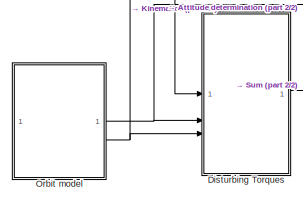
[diagram: root canvas - part 1/2, middle left region]
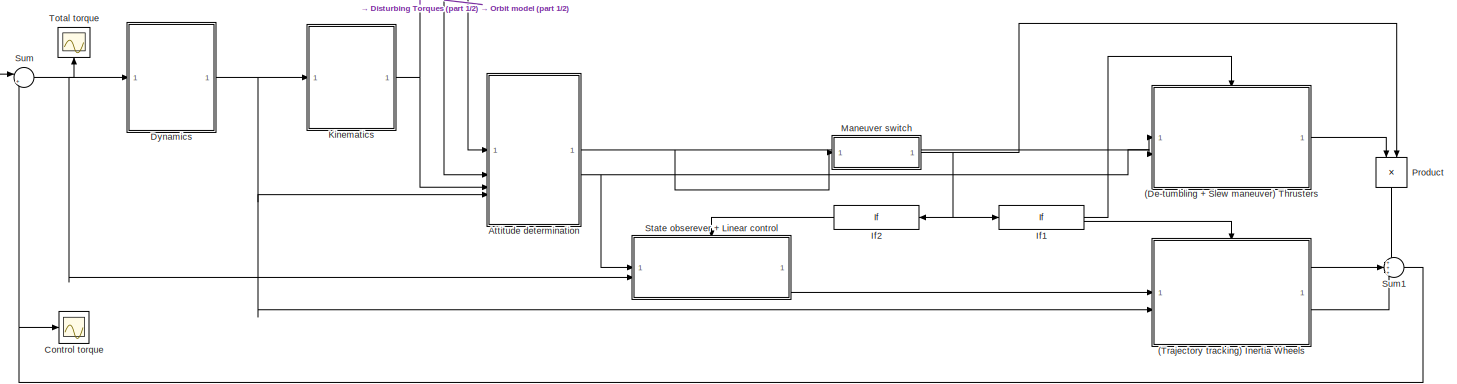
[diagram: root canvas - part 2/2, most of the canvas]
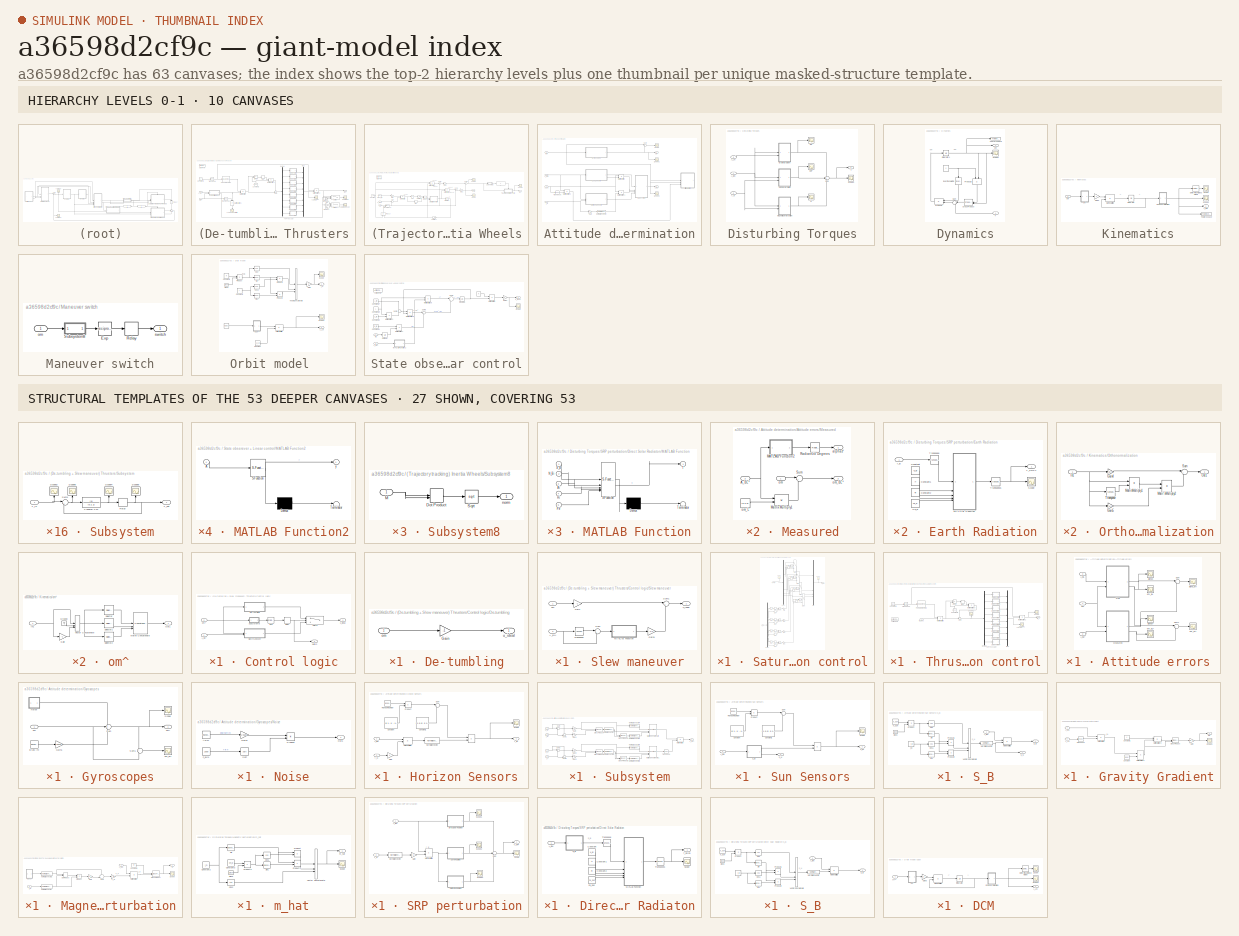
[diagram: thumbnail index - top-2 hierarchy levels (10 canvases) + 27 structural-template representatives of the remaining 53 canvases]
MODEL slx_a36598d2cf9c
KIND model
CONFIG AbsTol = auto
CONFIG EnableMultiTasking = off
CONFIG FixedStep = 0.1
CONFIG MaxStep = 0.1
CONFIG MinStep = auto
CONFIG RelTol = 1e-6
CONFIG SampleTimeConstraint = Unconstrained
CONFIG SolverName = ode5
CONFIG StartTime = 0.0
CONFIG StopTime = Tsc
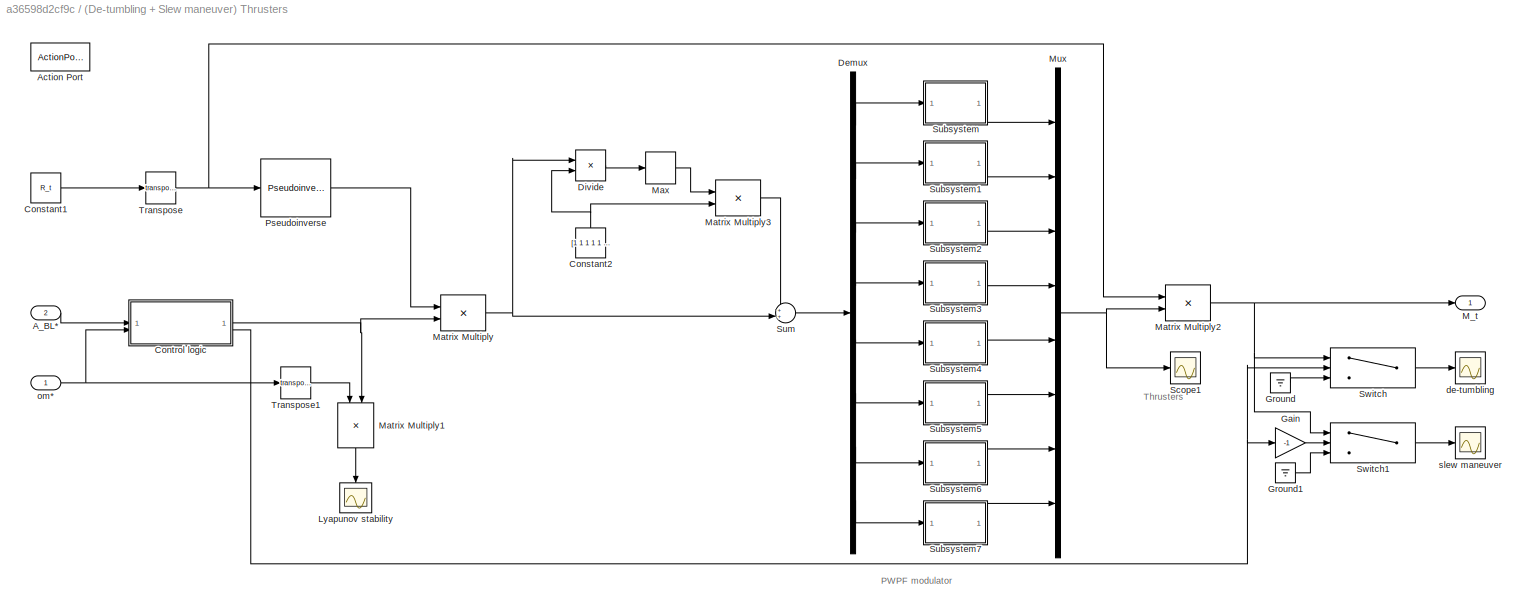
BLOCK [SubSystem] (De-tumbling + Slew maneuver) Thrusters
  TreatAsAtomicUnit = on
BLOCK [Inport] (De-tumbling + Slew maneuver) Thrusters/A_BL*
  Port = 2
BLOCK [ActionPort] (De-tumbling + Slew maneuver) Thrusters/Action Port
  ActionPortLabel = if(u1 > 0)
BLOCK [Constant] (De-tumbling + Slew maneuver) Thrusters/Constant1
  Value = R_t
BLOCK [Constant] (De-tumbling + Slew maneuver) Thrusters/Constant2
  NameLocation = right
  Value = [1 1 1 1 1 1 1 1]'
BLOCK [SubSystem] (De-tumbling + Slew maneuver) Thrusters/Control logic
BLOCK [Inport] (De-tumbling + Slew maneuver) Thrusters/Control logic/A_BL*
BLOCK [SubSystem] (De-tumbling + Slew maneuver) Thrusters/Control logic/De-tumbling
BLOCK [Gain] (De-tumbling + Slew maneuver) Thrusters/Control logic/De-tumbling/Gain
  Gain = -1
BLOCK [Inport] (De-tumbling + Slew maneuver) Thrusters/Control logic/De-tumbling/om
BLOCK [Outport] (De-tumbling + Slew maneuver) Thrusters/Control logic/De-tumbling/u_ideal
BLOCK [Math] (De-tumbling + Slew maneuver) Thrusters/Control logic/Exp
  Operator = reciprocal
BLOCK [Relay] (De-tumbling + Slew maneuver) Thrusters/Control logic/Relay
  OffOutputValue = 1
  OffSwitchValue = 0
  OnOutputValue = -1
  OnSwitchValue = 50
BLOCK [SubSystem] (De-tumbling + Slew maneuver) Thrusters/Control logic/Slew maneuver
BLOCK [Inport] (De-tumbling + Slew maneuver) Thrusters/Control logic/Slew maneuver/A_BL*
  Port = 2
BLOCK [Gain] (De-tumbling + Slew maneuver) Thrusters/Control logic/Slew maneuver/Gain
  Gain = -1
BLOCK [Gain] (De-tumbling + Slew maneuver) Thrusters/Control logic/Slew maneuver/Gain1
  Gain = -2/3
BLOCK [SubSystem] (De-tumbling + Slew maneuver) Thrusters/Control logic/Slew maneuver/MATLAB Function
  ErrorFcn = Stateflow.Translate.translate
  PermitHierarchicalResolution = ExplicitOnly
  SFBlockType = MATLAB Function
  TreatAsAtomicUnit = on
BLOCK [Demux] (De-tumbling + Slew maneuver) Thrusters/Control logic/Slew maneuver/MATLAB Function/ Demux 
  Outputs = 1
BLOCK [S-Function] (De-tumbling + Slew maneuver) Thrusters/Control logic/Slew maneuver/MATLAB Function/ SFunction 
  EnableBusSupport = on
  FunctionName = sf_sfun
  PortCounts = [1 2]
  SFcnIsStateOwnerBlock = off
  SFunctionDeploymentMode = off
  Tag = Stateflow S-Function 4
BLOCK [Terminator] (De-tumbling + Slew maneuver) Thrusters/Control logic/Slew maneuver/MATLAB Function/ Terminator 
BLOCK [Inport] (De-tumbling + Slew maneuver) Thrusters/Control logic/Slew maneuver/MATLAB Function/A
BLOCK [Outport] (De-tumbling + Slew maneuver) Thrusters/Control logic/Slew maneuver/MATLAB Function/offA_vec
BLOCK [Sum] (De-tumbling + Slew maneuver) Thrusters/Control logic/Slew maneuver/Sum
  Inputs = |+-
BLOCK [Sum] (De-tumbling + Slew maneuver) Thrusters/Control logic/Slew maneuver/Sum1
  Inputs = |++
BLOCK [Math] (De-tumbling + Slew maneuver) Thrusters/Control logic/Slew maneuver/Transpose
  Operator = transpose
BLOCK [Inport] (De-tumbling + Slew maneuver) Thrusters/Control logic/Slew maneuver/om
BLOCK [Outport] (De-tumbling + Slew maneuver) Thrusters/Control logic/Slew maneuver/u_ideal
BLOCK [SubSystem] (De-tumbling + Slew maneuver) Thrusters/Control logic/Subsystem8
BLOCK [DotProduct] (De-tumbling + Slew maneuver) Thrusters/Control logic/Subsystem8/Dot Product
  OutDataTypeStr = Inherit: Inherit via internal rule
BLOCK [Sqrt] (De-tumbling + Slew maneuver) Thrusters/Control logic/Subsystem8/Sqrt
BLOCK [Outport] (De-tumbling + Slew maneuver) Thrusters/Control logic/Subsystem8/norm
BLOCK [Inport] (De-tumbling + Slew maneuver) Thrusters/Control logic/Subsystem8/om
BLOCK [Switch] (De-tumbling + Slew maneuver) Thrusters/Control logic/Switch
  Criteria = u2 > Threshold
  InputSameDT = off
  SaturateOnIntegerOverflow = off
BLOCK [Inport] (De-tumbling + Slew maneuver) Thrusters/Control logic/om*
  Port = 2
BLOCK [Outport] (De-tumbling + Slew maneuver) Thrusters/Control logic/switch
  Port = 2
BLOCK [Outport] (De-tumbling + Slew maneuver) Thrusters/Control logic/u_ideal
BLOCK [Demux] (De-tumbling + Slew maneuver) Thrusters/Demux
  Outputs = 8
BLOCK [Product] (De-tumbling + Slew maneuver) Thrusters/Divide
  Inputs = */
BLOCK [Gain] (De-tumbling + Slew maneuver) Thrusters/Gain
  Gain = -1
BLOCK [Ground] (De-tumbling + Slew maneuver) Thrusters/Ground
BLOCK [Ground] (De-tumbling + Slew maneuver) Thrusters/Ground1
BLOCK [Scope] (De-tumbling + Slew maneuver) Thrusters/Lyapunov stability
  Floating = off
  NumInputPorts = 1
  ScopeSpecificationString = Simulink.scopes.TimeScopeBlockCfg('CurrentConfiguration', extmgr.ConfigurationSet(extmgr.Configuration('Core','General UI',true),extmgr.Configuration('Core','Source UI',true),extmgr.Configuration('Sources','WiredSimulink',true,'DataLoggingVariableName','ScopeData6'),extmgr.Configuration('Visuals','Time Domain',true,'SerializedDisplays',{struct('MinYLimReal','-3.47392','MaxYLimReal','0.38592','YLab...<+1401ch>
BLOCK [Outport] (De-tumbling + Slew maneuver) Thrusters/M_t
BLOCK [Product] (De-tumbling + Slew maneuver) Thrusters/Matrix Multiply
  Multiplication = Matrix(*)
BLOCK [Product] (De-tumbling + Slew maneuver) Thrusters/Matrix Multiply1
  Multiplication = Matrix(*)
  NameLocation = left
BLOCK [Product] (De-tumbling + Slew maneuver) Thrusters/Matrix Multiply2
  Multiplication = Matrix(*)
BLOCK [Product] (De-tumbling + Slew maneuver) Thrusters/Matrix Multiply3
BLOCK [MinMax] (De-tumbling + Slew maneuver) Thrusters/Max
  Function = max
BLOCK [Mux] (De-tumbling + Slew maneuver) Thrusters/Mux
  DisplayOption = bar
  Inputs = 8
BLOCK [Reference] (De-tumbling + Slew maneuver) Thrusters/Pseudoinverse  REF=dspinverses/Pseudoinverse
  SourceBlock = dspinverses/Pseudoinverse
  SourceType = Pseudoinverse
BLOCK [Scope] (De-tumbling + Slew maneuver) Thrusters/Scope1
  Floating = off
  NumInputPorts = 1
  ScopeSpecificationString = Simulink.scopes.TimeScopeBlockCfg('CurrentConfiguration', extmgr.ConfigurationSet(extmgr.Configuration('Core','General UI',true),extmgr.Configuration('Core','Source UI',true),extmgr.Configuration('Sources','WiredSimulink',true,'DataLoggingVariableName','ScopeData8'),extmgr.Configuration('Visuals','Time Domain',true,'SerializedDisplays',{struct('MinYLimReal','-0.00625','MaxYLimReal','0.05625','YLab...<+1666ch>
BLOCK [SubSystem] (De-tumbling + Slew maneuver) Thrusters/Subsystem
BLOCK [Relay] (De-tumbling + Slew maneuver) Thrusters/Subsystem/Relay
  OffSwitchValue = 0.8*T
  OnOutputValue = T
  OnSwitchValue = T
BLOCK [Scope] (De-tumbling + Slew maneuver) Thrusters/Subsystem/Scope3
  Floating = off
  NameLocation = right
  NumInputPorts = 1
  ScopeSpecificationString = Simulink.scopes.TimeScopeBlockCfg('CurrentConfiguration', extmgr.ConfigurationSet(extmgr.Configuration('Core','General UI',true),extmgr.Configuration('Core','Source UI',true),extmgr.Configuration('Sources','WiredSimulink',true,'DataLoggingVariableName','ScopeData2'),extmgr.Configuration('Visuals','Time Domain',true,'SerializedDisplays',{struct('MinYLimReal','-0.0075','MaxYLimReal','0.0075','YLabel...<+1385ch>  <repeated x16 — deduplicated; at blocks: Scope3>
BLOCK [Scope] (De-tumbling + Slew maneuver) Thrusters/Subsystem/Scope4
  Floating = off
  NameLocation = right
  NumInputPorts = 1
  ScopeSpecificationString = Simulink.scopes.TimeScopeBlockCfg('CurrentConfiguration', extmgr.ConfigurationSet(extmgr.Configuration('Core','General UI',true),extmgr.Configuration('Core','Source UI',true),extmgr.Configuration('Sources','WiredSimulink',true,'DataLoggingVariableName','ScopeData3'),extmgr.Configuration('Visuals','Time Domain',true),extmgr.Configuration('Tools','Plot Navigation',true),extmgr.Configuration('Tools',...<+40ch>  <repeated x16 — deduplicated; at blocks: Scope4>
BLOCK [Scope] (De-tumbling + Slew maneuver) Thrusters/Subsystem/Scope5
  Floating = off
  NameLocation = right
  NumInputPorts = 1
  ScopeSpecificationString = Simulink.scopes.TimeScopeBlockCfg('CurrentConfiguration', extmgr.ConfigurationSet(extmgr.Configuration('Core','General UI',true),extmgr.Configuration('Core','Source UI',true),extmgr.Configuration('Sources','WiredSimulink',true,'DataLoggingVariableName','ScopeData4'),extmgr.Configuration('Visuals','Time Domain',true,'SerializedDisplays',{struct('MinYLimReal','-0.0075','MaxYLimReal','0.0075','YLabel...<+1384ch>  <repeated x16 — deduplicated; at blocks: Scope5>
BLOCK [Scope] (De-tumbling + Slew maneuver) Thrusters/Subsystem/Scope6
  Floating = off
  NameLocation = right
  NumInputPorts = 1
  ScopeSpecificationString = Simulink.scopes.TimeScopeBlockCfg('CurrentConfiguration', extmgr.ConfigurationSet(extmgr.Configuration('Core','General UI',true),extmgr.Configuration('Core','Source UI',true),extmgr.Configuration('Sources','WiredSimulink',true,'DataLoggingVariableName','ScopeData5'),extmgr.Configuration('Visuals','Time Domain',true),extmgr.Configuration('Tools','Plot Navigation',true),extmgr.Configuration('Tools',...<+40ch>  <repeated x16 — deduplicated; at blocks: Scope6>
BLOCK [Sum] (De-tumbling + Slew maneuver) Thrusters/Subsystem/Sum1
  Inputs = |+-
BLOCK [Inport] (De-tumbling + Slew maneuver) Thrusters/Subsystem/T_in
BLOCK [Outport] (De-tumbling + Slew maneuver) Thrusters/Subsystem/T_out
BLOCK [TransferFcn] (De-tumbling + Slew maneuver) Thrusters/Subsystem/Transfer Fcn
  Denominator = [0.1 1]
BLOCK [SubSystem] (De-tumbling + Slew maneuver) Thrusters/Subsystem1
BLOCK [Relay] (De-tumbling + Slew maneuver) Thrusters/Subsystem1/Relay
  OffSwitchValue = 0.8*T
  OnOutputValue = T
  OnSwitchValue = T
BLOCK [Scope] (De-tumbling + Slew maneuver) Thrusters/Subsystem1/Scope3
  Floating = off
  NameLocation = right
  NumInputPorts = 1
BLOCK [Scope] (De-tumbling + Slew maneuver) Thrusters/Subsystem1/Scope4
  Floating = off
  NameLocation = right
  NumInputPorts = 1
BLOCK [Scope] (De-tumbling + Slew maneuver) Thrusters/Subsystem1/Scope5
  Floating = off
  NameLocation = right
  NumInputPorts = 1
BLOCK [Scope] (De-tumbling + Slew maneuver) Thrusters/Subsystem1/Scope6
  Floating = off
  NameLocation = right
  NumInputPorts = 1
BLOCK [Sum] (De-tumbling + Slew maneuver) Thrusters/Subsystem1/Sum1
  Inputs = |+-
BLOCK [Inport] (De-tumbling + Slew maneuver) Thrusters/Subsystem1/T_in
BLOCK [Outport] (De-tumbling + Slew maneuver) Thrusters/Subsystem1/T_out
BLOCK [TransferFcn] (De-tumbling + Slew maneuver) Thrusters/Subsystem1/Transfer Fcn
  Denominator = [0.1 1]
BLOCK [SubSystem] (De-tumbling + Slew maneuver) Thrusters/Subsystem2
BLOCK [Relay] (De-tumbling + Slew maneuver) Thrusters/Subsystem2/Relay
  OffSwitchValue = 0.8*T
  OnOutputValue = T
  OnSwitchValue = T
BLOCK [Scope] (De-tumbling + Slew maneuver) Thrusters/Subsystem2/Scope3
  Floating = off
  NameLocation = right
  NumInputPorts = 1
BLOCK [Scope] (De-tumbling + Slew maneuver) Thrusters/Subsystem2/Scope4
  Floating = off
  NameLocation = right
  NumInputPorts = 1
BLOCK [Scope] (De-tumbling + Slew maneuver) Thrusters/Subsystem2/Scope5
  Floating = off
  NameLocation = right
  NumInputPorts = 1
BLOCK [Scope] (De-tumbling + Slew maneuver) Thrusters/Subsystem2/Scope6
  Floating = off
  NameLocation = right
  NumInputPorts = 1
BLOCK [Sum] (De-tumbling + Slew maneuver) Thrusters/Subsystem2/Sum1
  Inputs = |+-
BLOCK [Inport] (De-tumbling + Slew maneuver) Thrusters/Subsystem2/T_in
BLOCK [Outport] (De-tumbling + Slew maneuver) Thrusters/Subsystem2/T_out
BLOCK [TransferFcn] (De-tumbling + Slew maneuver) Thrusters/Subsystem2/Transfer Fcn
  Denominator = [0.1 1]
BLOCK [SubSystem] (De-tumbling + Slew maneuver) Thrusters/Subsystem3
BLOCK [Relay] (De-tumbling + Slew maneuver) Thrusters/Subsystem3/Relay
  OffSwitchValue = 0.8*T
  OnOutputValue = T
  OnSwitchValue = T
BLOCK [Scope] (De-tumbling + Slew maneuver) Thrusters/Subsystem3/Scope3
  Floating = off
  NameLocation = right
  NumInputPorts = 1
BLOCK [Scope] (De-tumbling + Slew maneuver) Thrusters/Subsystem3/Scope4
  Floating = off
  NameLocation = right
  NumInputPorts = 1
BLOCK [Scope] (De-tumbling + Slew maneuver) Thrusters/Subsystem3/Scope5
  Floating = off
  NameLocation = right
  NumInputPorts = 1
BLOCK [Scope] (De-tumbling + Slew maneuver) Thrusters/Subsystem3/Scope6
  Floating = off
  NameLocation = right
  NumInputPorts = 1
BLOCK [Sum] (De-tumbling + Slew maneuver) Thrusters/Subsystem3/Sum1
  Inputs = |+-
BLOCK [Inport] (De-tumbling + Slew maneuver) Thrusters/Subsystem3/T_in
BLOCK [Outport] (De-tumbling + Slew maneuver) Thrusters/Subsystem3/T_out
BLOCK [TransferFcn] (De-tumbling + Slew maneuver) Thrusters/Subsystem3/Transfer Fcn
  Denominator = [0.1 1]
BLOCK [SubSystem] (De-tumbling + Slew maneuver) Thrusters/Subsystem4
BLOCK [Relay] (De-tumbling + Slew maneuver) Thrusters/Subsystem4/Relay
  OffSwitchValue = 0.8*T
  OnOutputValue = T
  OnSwitchValue = T
BLOCK [Scope] (De-tumbling + Slew maneuver) Thrusters/Subsystem4/Scope3
  Floating = off
  NameLocation = right
  NumInputPorts = 1
BLOCK [Scope] (De-tumbling + Slew maneuver) Thrusters/Subsystem4/Scope4
  Floating = off
  NameLocation = right
  NumInputPorts = 1
BLOCK [Scope] (De-tumbling + Slew maneuver) Thrusters/Subsystem4/Scope5
  Floating = off
  NameLocation = right
  NumInputPorts = 1
BLOCK [Scope] (De-tumbling + Slew maneuver) Thrusters/Subsystem4/Scope6
  Floating = off
  NameLocation = right
  NumInputPorts = 1
BLOCK [Sum] (De-tumbling + Slew maneuver) Thrusters/Subsystem4/Sum1
  Inputs = |+-
BLOCK [Inport] (De-tumbling + Slew maneuver) Thrusters/Subsystem4/T_in
BLOCK [Outport] (De-tumbling + Slew maneuver) Thrusters/Subsystem4/T_out
BLOCK [TransferFcn] (De-tumbling + Slew maneuver) Thrusters/Subsystem4/Transfer Fcn
  Denominator = [0.1 1]
BLOCK [SubSystem] (De-tumbling + Slew maneuver) Thrusters/Subsystem5
BLOCK [Relay] (De-tumbling + Slew maneuver) Thrusters/Subsystem5/Relay
  OffSwitchValue = 0.8*T
  OnOutputValue = T
  OnSwitchValue = T
BLOCK [Scope] (De-tumbling + Slew maneuver) Thrusters/Subsystem5/Scope3
  Floating = off
  NameLocation = right
  NumInputPorts = 1
BLOCK [Scope] (De-tumbling + Slew maneuver) Thrusters/Subsystem5/Scope4
  Floating = off
  NameLocation = right
  NumInputPorts = 1
BLOCK [Scope] (De-tumbling + Slew maneuver) Thrusters/Subsystem5/Scope5
  Floating = off
  NameLocation = right
  NumInputPorts = 1
BLOCK [Scope] (De-tumbling + Slew maneuver) Thrusters/Subsystem5/Scope6
  Floating = off
  NameLocation = right
  NumInputPorts = 1
BLOCK [Sum] (De-tumbling + Slew maneuver) Thrusters/Subsystem5/Sum1
  Inputs = |+-
BLOCK [Inport] (De-tumbling + Slew maneuver) Thrusters/Subsystem5/T_in
BLOCK [Outport] (De-tumbling + Slew maneuver) Thrusters/Subsystem5/T_out
BLOCK [TransferFcn] (De-tumbling + Slew maneuver) Thrusters/Subsystem5/Transfer Fcn
  Denominator = [0.1 1]
BLOCK [SubSystem] (De-tumbling + Slew maneuver) Thrusters/Subsystem6
BLOCK [Relay] (De-tumbling + Slew maneuver) Thrusters/Subsystem6/Relay
  OffSwitchValue = 0.8*T
  OnOutputValue = T
  OnSwitchValue = T
BLOCK [Scope] (De-tumbling + Slew maneuver) Thrusters/Subsystem6/Scope3
  Floating = off
  NameLocation = right
  NumInputPorts = 1
BLOCK [Scope] (De-tumbling + Slew maneuver) Thrusters/Subsystem6/Scope4
  Floating = off
  NameLocation = right
  NumInputPorts = 1
BLOCK [Scope] (De-tumbling + Slew maneuver) Thrusters/Subsystem6/Scope5
  Floating = off
  NameLocation = right
  NumInputPorts = 1
BLOCK [Scope] (De-tumbling + Slew maneuver) Thrusters/Subsystem6/Scope6
  Floating = off
  NameLocation = right
  NumInputPorts = 1
BLOCK [Sum] (De-tumbling + Slew maneuver) Thrusters/Subsystem6/Sum1
  Inputs = |+-
BLOCK [Inport] (De-tumbling + Slew maneuver) Thrusters/Subsystem6/T_in
BLOCK [Outport] (De-tumbling + Slew maneuver) Thrusters/Subsystem6/T_out
BLOCK [TransferFcn] (De-tumbling + Slew maneuver) Thrusters/Subsystem6/Transfer Fcn
  Denominator = [0.1 1]
BLOCK [SubSystem] (De-tumbling + Slew maneuver) Thrusters/Subsystem7
BLOCK [Relay] (De-tumbling + Slew maneuver) Thrusters/Subsystem7/Relay
  OffSwitchValue = 0.8*T
  OnOutputValue = T
  OnSwitchValue = T
BLOCK [Scope] (De-tumbling + Slew maneuver) Thrusters/Subsystem7/Scope3
  Floating = off
  NameLocation = right
  NumInputPorts = 1
BLOCK [Scope] (De-tumbling + Slew maneuver) Thrusters/Subsystem7/Scope4
  Floating = off
  NameLocation = right
  NumInputPorts = 1
BLOCK [Scope] (De-tumbling + Slew maneuver) Thrusters/Subsystem7/Scope5
  Floating = off
  NameLocation = right
  NumInputPorts = 1
BLOCK [Scope] (De-tumbling + Slew maneuver) Thrusters/Subsystem7/Scope6
  Floating = off
  NameLocation = right
  NumInputPorts = 1
BLOCK [Sum] (De-tumbling + Slew maneuver) Thrusters/Subsystem7/Sum1
  Inputs = |+-
BLOCK [Inport] (De-tumbling + Slew maneuver) Thrusters/Subsystem7/T_in
BLOCK [Outport] (De-tumbling + Slew maneuver) Thrusters/Subsystem7/T_out
BLOCK [TransferFcn] (De-tumbling + Slew maneuver) Thrusters/Subsystem7/Transfer Fcn
  Denominator = [0.1 1]
BLOCK [Sum] (De-tumbling + Slew maneuver) Thrusters/Sum
  Inputs = ++|
BLOCK [Switch] (De-tumbling + Slew maneuver) Thrusters/Switch
  Criteria = u2 > Threshold
  InputSameDT = off
  SaturateOnIntegerOverflow = off
BLOCK [Switch] (De-tumbling + Slew maneuver) Thrusters/Switch1
  Criteria = u2 > Threshold
  InputSameDT = off
  SaturateOnIntegerOverflow = off
BLOCK [Math] (De-tumbling + Slew maneuver) Thrusters/Transpose
  Operator = transpose
BLOCK [Math] (De-tumbling + Slew maneuver) Thrusters/Transpose1
  Operator = transpose
BLOCK [Scope] (De-tumbling + Slew maneuver) Thrusters/de-tumbling
  Floating = off
  NumInputPorts = 1
  ScopeSpecificationString = Simulink.scopes.TimeScopeBlockCfg('CurrentConfiguration', extmgr.ConfigurationSet(extmgr.Configuration('Core','General UI',true),extmgr.Configuration('Core','Source UI',true),extmgr.Configuration('Sources','WiredSimulink',true,'DataLoggingVariableName','ScopeData7'),extmgr.Configuration('Visuals','Time Domain',true,'SerializedDisplays',{struct('MinYLimReal','-0.00375','MaxYLimReal','0.00375','YLab...<+1529ch>
BLOCK [Inport] (De-tumbling + Slew maneuver) Thrusters/om*
BLOCK [Scope] (De-tumbling + Slew maneuver) Thrusters/slew maneuver
  Floating = off
  NumInputPorts = 1
  ScopeSpecificationString = Simulink.scopes.TimeScopeBlockCfg('CurrentConfiguration', extmgr.ConfigurationSet(extmgr.Configuration('Core','General UI',true),extmgr.Configuration('Core','Source UI',true),extmgr.Configuration('Sources','WiredSimulink',true,'DataLoggingVariableName','ScopeData1'),extmgr.Configuration('Visuals','Time Domain',true,'SerializedDisplays',{struct('MinYLimReal','-0.00375','MaxYLimReal','0.00375','YLab...<+1532ch>
BLOCK [SubSystem] (Trajectory tracking) Inertia Wheels
  TreatAsAtomicUnit = on
BLOCK [Abs] (Trajectory tracking) Inertia Wheels/Abs
  SaturateOnIntegerOverflow = off
BLOCK [ActionPort] (Trajectory tracking) Inertia Wheels/Action Port
  ActionPortLabel = else
BLOCK [Constant] (Trajectory tracking) Inertia Wheels/Constant
  Value = A_iw
BLOCK [Reference] (Trajectory tracking) Inertia Wheels/Cross Product  REF=matrix_library/Cross Product
  LibrarySourceBlock = simulink/Matrix\nOperations/Cross Product
  SourceBlock = matrix_library/Cross Product
  SourceType = CrossProduct
BLOCK [Gain] (Trajectory tracking) Inertia Wheels/Gain
  Gain = -1
BLOCK [Gain] (Trajectory tracking) Inertia Wheels/Gain1
  Gain = -1
BLOCK [Gain] (Trajectory tracking) Inertia Wheels/Gain2
  Gain = -1
BLOCK [If] (Trajectory tracking) Inertia Wheels/If
  ShowElse = off
BLOCK [Integrator] (Trajectory tracking) Inertia Wheels/Integrator
  InitialCondition = [0 0 0 0]
BLOCK [Outport] (Trajectory tracking) Inertia Wheels/M_iw
BLOCK [Outport] (Trajectory tracking) Inertia Wheels/M_t
  Port = 2
BLOCK [Product] (Trajectory tracking) Inertia Wheels/Matrix Multiply
  Multiplication = Matrix(*)
BLOCK [Product] (Trajectory tracking) Inertia Wheels/Matrix Multiply1
  Multiplication = Matrix(*)
BLOCK [Product] (Trajectory tracking) Inertia Wheels/Matrix Multiply2
  Multiplication = Matrix(*)
BLOCK [Product] (Trajectory tracking) Inertia Wheels/Product
  Multiplication = Matrix(*)
  NameLocation = right
BLOCK [Product] (Trajectory tracking) Inertia Wheels/Product1
BLOCK [Saturate] (Trajectory tracking) Inertia Wheels/Saturation
  LowerLimit = 0
  UpperLimit = maxT_iw
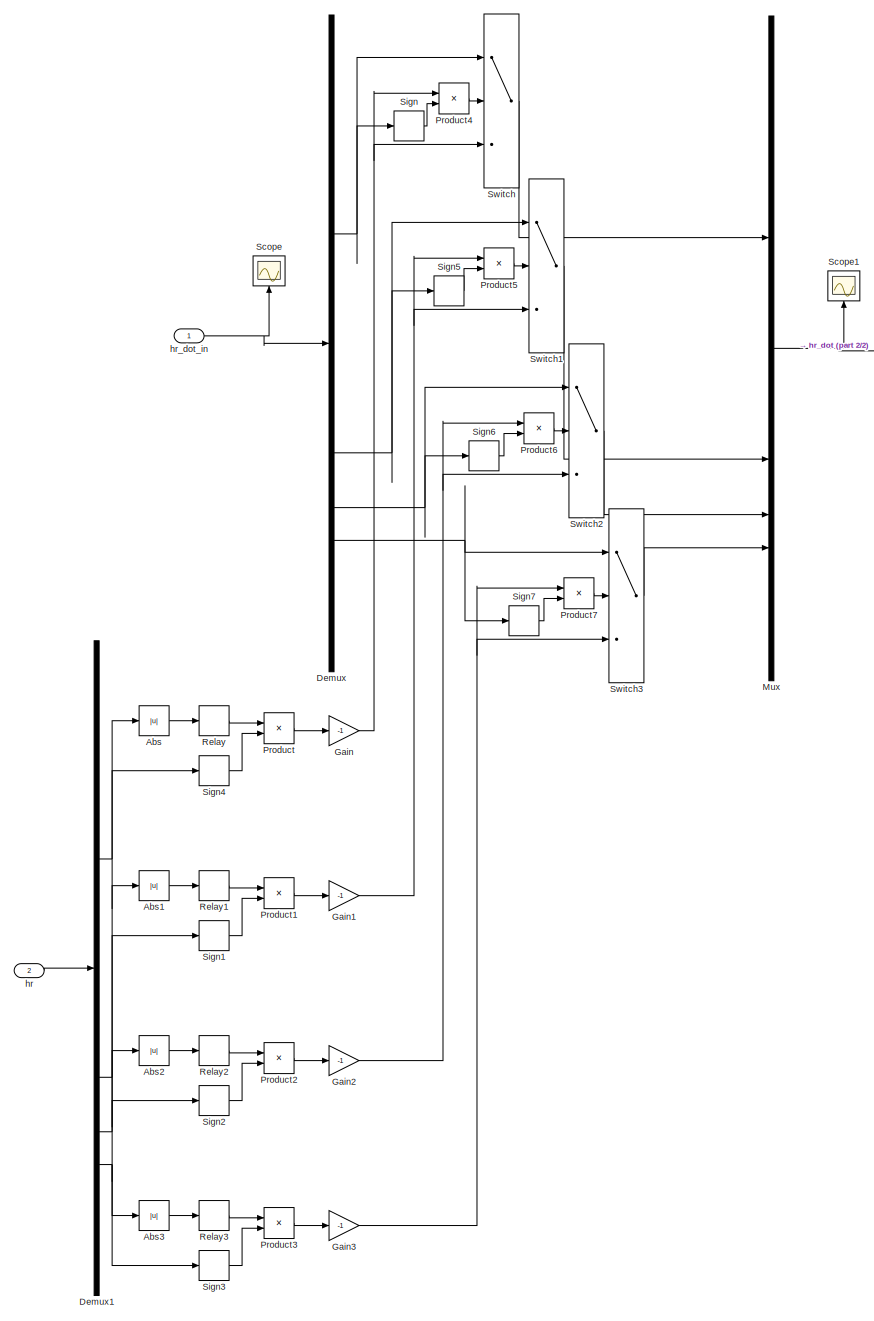
[diagram: (Trajectory tracking) Inertia Wheels/Saturation control - part 1/2, most of the canvas]
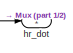
[diagram: (Trajectory tracking) Inertia Wheels/Saturation control - part 2/2, top right region]
BLOCK [SubSystem] (Trajectory tracking) Inertia Wheels/Saturation control
BLOCK [Abs] (Trajectory tracking) Inertia Wheels/Saturation control/Abs
  SaturateOnIntegerOverflow = off
BLOCK [Abs] (Trajectory tracking) Inertia Wheels/Saturation control/Abs1
  SaturateOnIntegerOverflow = off
BLOCK [Abs] (Trajectory tracking) Inertia Wheels/Saturation control/Abs2
  SaturateOnIntegerOverflow = off
BLOCK [Abs] (Trajectory tracking) Inertia Wheels/Saturation control/Abs3
  SaturateOnIntegerOverflow = off
BLOCK [Demux] (Trajectory tracking) Inertia Wheels/Saturation control/Demux
BLOCK [Demux] (Trajectory tracking) Inertia Wheels/Saturation control/Demux1
BLOCK [Gain] (Trajectory tracking) Inertia Wheels/Saturation control/Gain
  Gain = -1
BLOCK [Gain] (Trajectory tracking) Inertia Wheels/Saturation control/Gain1
  Gain = -1
BLOCK [Gain] (Trajectory tracking) Inertia Wheels/Saturation control/Gain2
  Gain = -1
BLOCK [Gain] (Trajectory tracking) Inertia Wheels/Saturation control/Gain3
  Gain = -1
BLOCK [Mux] (Trajectory tracking) Inertia Wheels/Saturation control/Mux
  DisplayOption = bar
BLOCK [Product] (Trajectory tracking) Inertia Wheels/Saturation control/Product
BLOCK [Product] (Trajectory tracking) Inertia Wheels/Saturation control/Product1
BLOCK [Product] (Trajectory tracking) Inertia Wheels/Saturation control/Product2
BLOCK [Product] (Trajectory tracking) Inertia Wheels/Saturation control/Product3
BLOCK [Product] (Trajectory tracking) Inertia Wheels/Saturation control/Product4
BLOCK [Product] (Trajectory tracking) Inertia Wheels/Saturation control/Product5
BLOCK [Product] (Trajectory tracking) Inertia Wheels/Saturation control/Product6
BLOCK [Product] (Trajectory tracking) Inertia Wheels/Saturation control/Product7
BLOCK [Relay] (Trajectory tracking) Inertia Wheels/Saturation control/Relay
  OffSwitchValue = maxL_iw/1000
  OnOutputValue = maxT_iw
  OnSwitchValue = maxL_iw
BLOCK [Relay] (Trajectory tracking) Inertia Wheels/Saturation control/Relay1
  OffSwitchValue = maxL_iw/1000
  OnOutputValue = maxT_iw
  OnSwitchValue = maxL_iw
BLOCK [Relay] (Trajectory tracking) Inertia Wheels/Saturation control/Relay2
  OffSwitchValue = maxL_iw/1000
  OnOutputValue = maxT_iw
  OnSwitchValue = maxL_iw
BLOCK [Relay] (Trajectory tracking) Inertia Wheels/Saturation control/Relay3
  OffSwitchValue = maxL_iw/1000
  OnOutputValue = maxT_iw
  OnSwitchValue = maxL_iw
BLOCK [Scope] (Trajectory tracking) Inertia Wheels/Saturation control/Scope
  Floating = off
  NameLocation = right
  NumInputPorts = 1
  ScopeSpecificationString = Simulink.scopes.TimeScopeBlockCfg
BLOCK [Scope] (Trajectory tracking) Inertia Wheels/Saturation control/Scope1
  Floating = off
  NameLocation = right
  NumInputPorts = 1
  ScopeSpecificationString = Simulink.scopes.TimeScopeBlockCfg('CurrentConfiguration', extmgr.ConfigurationSet(extmgr.Configuration('Core','General UI',true),extmgr.Configuration('Core','Source UI',true),extmgr.Configuration('Sources','WiredSimulink',true),extmgr.Configuration('Visuals','Time Domain',true),extmgr.Configuration('Tools','Plot Navigation',true),extmgr.Configuration('Tools','Measurements',true)),'Version','2022b'...<+26ch>
BLOCK [Signum] (Trajectory tracking) Inertia Wheels/Saturation control/Sign
BLOCK [Signum] (Trajectory tracking) Inertia Wheels/Saturation control/Sign1
BLOCK [Signum] (Trajectory tracking) Inertia Wheels/Saturation control/Sign2
BLOCK [Signum] (Trajectory tracking) Inertia Wheels/Saturation control/Sign3
BLOCK [Signum] (Trajectory tracking) Inertia Wheels/Saturation control/Sign4
BLOCK [Signum] (Trajectory tracking) Inertia Wheels/Saturation control/Sign5
BLOCK [Signum] (Trajectory tracking) Inertia Wheels/Saturation control/Sign6
BLOCK [Signum] (Trajectory tracking) Inertia Wheels/Saturation control/Sign7
BLOCK [Switch] (Trajectory tracking) Inertia Wheels/Saturation control/Switch
  InputSameDT = off
  SaturateOnIntegerOverflow = off
BLOCK [Switch] (Trajectory tracking) Inertia Wheels/Saturation control/Switch1
  InputSameDT = off
  SaturateOnIntegerOverflow = off
BLOCK [Switch] (Trajectory tracking) Inertia Wheels/Saturation control/Switch2
  InputSameDT = off
  SaturateOnIntegerOverflow = off
BLOCK [Switch] (Trajectory tracking) Inertia Wheels/Saturation control/Switch3
  InputSameDT = off
  SaturateOnIntegerOverflow = off
BLOCK [Inport] (Trajectory tracking) Inertia Wheels/Saturation control/hr
  Port = 2
BLOCK [Outport] (Trajectory tracking) Inertia Wheels/Saturation control/hr_dot
BLOCK [Inport] (Trajectory tracking) Inertia Wheels/Saturation control/hr_dot_in
BLOCK [Saturate] (Trajectory tracking) Inertia Wheels/Saturation1
  LowerLimit = -maxL_iw
  NameLocation = top
  UpperLimit = maxL_iw
BLOCK [Scope] (Trajectory tracking) Inertia Wheels/Scope
  Floating = off
  NumInputPorts = 1
  ScopeSpecificationString = Simulink.scopes.TimeScopeBlockCfg('CurrentConfiguration', extmgr.ConfigurationSet(extmgr.Configuration('Core','General UI',true),extmgr.Configuration('Core','Source UI',true),extmgr.Configuration('Sources','WiredSimulink',true,'DataLoggingVariableName','ScopeData5'),extmgr.Configuration('Visuals','Time Domain',true,'SerializedDisplays',{struct('MinYLimReal','-0.00029','MaxYLimReal','0.0003','YLabe...<+1456ch>
BLOCK [Scope] (Trajectory tracking) Inertia Wheels/Scope1
  Floating = off
  NumInputPorts = 1
  ScopeSpecificationString = Simulink.scopes.TimeScopeBlockCfg('CurrentConfiguration', extmgr.ConfigurationSet(extmgr.Configuration('Core','General UI',true),extmgr.Configuration('Core','Source UI',true),extmgr.Configuration('Sources','WiredSimulink',true,'DataLoggingVariableName','ScopeData6'),extmgr.Configuration('Visuals','Time Domain',true,'SerializedDisplays',{struct('MinYLimReal','-0.00001','MaxYLimReal','0.00013','YLab...<+1485ch>
BLOCK [Scope] (Trajectory tracking) Inertia Wheels/Scope2
  Floating = off
  NumInputPorts = 1
  ScopeSpecificationString = Simulink.scopes.TimeScopeBlockCfg('CurrentConfiguration', extmgr.ConfigurationSet(extmgr.Configuration('Core','General UI',true),extmgr.Configuration('Core','Source UI',true),extmgr.Configuration('Sources','WiredSimulink',true,'DataLoggingVariableName','ScopeData7'),extmgr.Configuration('Visuals','Time Domain',true,'SerializedDisplays',{struct('MinYLimReal','-1.00000','MaxYLimReal','1.00000','YLab...<+1538ch>
BLOCK [Signum] (Trajectory tracking) Inertia Wheels/Sign
BLOCK [SubSystem] (Trajectory tracking) Inertia Wheels/Subsystem8
BLOCK [DotProduct] (Trajectory tracking) Inertia Wheels/Subsystem8/Dot Product
  OutDataTypeStr = Inherit: Inherit via internal rule
BLOCK [Inport] (Trajectory tracking) Inertia Wheels/Subsystem8/M
BLOCK [Sqrt] (Trajectory tracking) Inertia Wheels/Subsystem8/Sqrt
BLOCK [Outport] (Trajectory tracking) Inertia Wheels/Subsystem8/norm
BLOCK [Sum] (Trajectory tracking) Inertia Wheels/Sum
  Inputs = |++
BLOCK [Sum] (Trajectory tracking) Inertia Wheels/Sum1
  Inputs = |++
BLOCK [Sum] (Trajectory tracking) Inertia Wheels/Sum2
  Inputs = |++
BLOCK [Sum] (Trajectory tracking) Inertia Wheels/Sum3
  Inputs = |+-
BLOCK [SubSystem] (Trajectory tracking) Inertia Wheels/Thruster desaturation control
BLOCK [ActionPort] (Trajectory tracking) Inertia Wheels/Thruster desaturation control/Action Port
  ActionPortLabel = if(u1 > 0)
BLOCK [Constant] (Trajectory tracking) Inertia Wheels/Thruster desaturation control/Constant1
  Value = R_t
BLOCK [Constant] (Trajectory tracking) Inertia Wheels/Thruster desaturation control/Constant2
  NameLocation = right
  Value = [1 1 1 1 1 1 1 1]'
BLOCK [Demux] (Trajectory tracking) Inertia Wheels/Thruster desaturation control/Demux
  Outputs = 8
BLOCK [Product] (Trajectory tracking) Inertia Wheels/Thruster desaturation control/Divide
  Inputs = */
BLOCK [Inport] (Trajectory tracking) Inertia Wheels/Thruster desaturation control/M_des
BLOCK [Outport] (Trajectory tracking) Inertia Wheels/Thruster desaturation control/M_t
BLOCK [Product] (Trajectory tracking) Inertia Wheels/Thruster desaturation control/Matrix Multiply
  Multiplication = Matrix(*)
BLOCK [Product] (Trajectory tracking) Inertia Wheels/Thruster desaturation control/Matrix Multiply2
  Multiplication = Matrix(*)
BLOCK [Product] (Trajectory tracking) Inertia Wheels/Thruster desaturation control/Matrix Multiply3
BLOCK [MinMax] (Trajectory tracking) Inertia Wheels/Thruster desaturation control/Max
  Function = max
BLOCK [Mux] (Trajectory tracking) Inertia Wheels/Thruster desaturation control/Mux
  DisplayOption = bar
  Inputs = 8
BLOCK [Reference] (Trajectory tracking) Inertia Wheels/Thruster desaturation control/Pseudoinverse  REF=dspinverses/Pseudoinverse
  SourceBlock = dspinverses/Pseudoinverse
  SourceType = Pseudoinverse
BLOCK [Scope] (Trajectory tracking) Inertia Wheels/Thruster desaturation control/Scope
  Floating = off
  NumInputPorts = 1
  ScopeSpecificationString = Simulink.scopes.TimeScopeBlockCfg('CurrentConfiguration', extmgr.ConfigurationSet(extmgr.Configuration('Core','General UI',true),extmgr.Configuration('Core','Source UI',true),extmgr.Configuration('Sources','WiredSimulink',true,'DataLoggingVariableName','ScopeData11'),extmgr.Configuration('Visuals','Time Domain',true,'SerializedDisplays',{struct('MinYLimReal','-0.01875','MaxYLimReal','0.01875','YLa...<+1512ch>
BLOCK [Scope] (Trajectory tracking) Inertia Wheels/Thruster desaturation control/Scope1
  Floating = off
  NumInputPorts = 1
  ScopeSpecificationString = Simulink.scopes.TimeScopeBlockCfg('CurrentConfiguration', extmgr.ConfigurationSet(extmgr.Configuration('Core','General UI',true),extmgr.Configuration('Core','Source UI',true),extmgr.Configuration('Sources','WiredSimulink',true,'DataLoggingVariableName','ScopeData12'),extmgr.Configuration('Visuals','Time Domain',true,'SerializedDisplays',{struct('MinYLimReal','-0.00625','MaxYLimReal','0.05625','YLa...<+1667ch>
BLOCK [Scope] (Trajectory tracking) Inertia Wheels/Thruster desaturation control/Scope2
  Floating = off
  NameLocation = right
  NumInputPorts = 1
  ScopeSpecificationString = Simulink.scopes.TimeScopeBlockCfg('CurrentConfiguration', extmgr.ConfigurationSet(extmgr.Configuration('Core','General UI',true),extmgr.Configuration('Core','Source UI',true),extmgr.Configuration('Sources','WiredSimulink',true,'DataLoggingVariableName','ScopeData13'),extmgr.Configuration('Visuals','Time Domain',true,'SerializedDisplays',{struct('MinYLimReal','-1.00882','MaxYLimReal','9.07938','YLa...<+1447ch>
BLOCK [SubSystem] (Trajectory tracking) Inertia Wheels/Thruster desaturation control/Subsystem
BLOCK [Relay] (Trajectory tracking) Inertia Wheels/Thruster desaturation control/Subsystem/Relay
  OffSwitchValue = 0.8*T
  OnOutputValue = T
  OnSwitchValue = T
BLOCK [Scope] (Trajectory tracking) Inertia Wheels/Thruster desaturation control/Subsystem/Scope3
  Floating = off
  NameLocation = right
  NumInputPorts = 1
BLOCK [Scope] (Trajectory tracking) Inertia Wheels/Thruster desaturation control/Subsystem/Scope4
  Floating = off
  NameLocation = right
  NumInputPorts = 1
BLOCK [Scope] (Trajectory tracking) Inertia Wheels/Thruster desaturation control/Subsystem/Scope5
  Floating = off
  NameLocation = right
  NumInputPorts = 1
BLOCK [Scope] (Trajectory tracking) Inertia Wheels/Thruster desaturation control/Subsystem/Scope6
  Floating = off
  NameLocation = right
  NumInputPorts = 1
BLOCK [Sum] (Trajectory tracking) Inertia Wheels/Thruster desaturation control/Subsystem/Sum1
  Inputs = |+-
BLOCK [Inport] (Trajectory tracking) Inertia Wheels/Thruster desaturation control/Subsystem/T_in
BLOCK [Outport] (Trajectory tracking) Inertia Wheels/Thruster desaturation control/Subsystem/T_out
BLOCK [TransferFcn] (Trajectory tracking) Inertia Wheels/Thruster desaturation control/Subsystem/Transfer Fcn
  Denominator = [0.1 1]
BLOCK [SubSystem] (Trajectory tracking) Inertia Wheels/Thruster desaturation control/Subsystem1
BLOCK [Relay] (Trajectory tracking) Inertia Wheels/Thruster desaturation control/Subsystem1/Relay
  OffSwitchValue = 0.8*T
  OnOutputValue = T
  OnSwitchValue = T
BLOCK [Scope] (Trajectory tracking) Inertia Wheels/Thruster desaturation control/Subsystem1/Scope3
  Floating = off
  NameLocation = right
  NumInputPorts = 1
BLOCK [Scope] (Trajectory tracking) Inertia Wheels/Thruster desaturation control/Subsystem1/Scope4
  Floating = off
  NameLocation = right
  NumInputPorts = 1
BLOCK [Scope] (Trajectory tracking) Inertia Wheels/Thruster desaturation control/Subsystem1/Scope5
  Floating = off
  NameLocation = right
  NumInputPorts = 1
BLOCK [Scope] (Trajectory tracking) Inertia Wheels/Thruster desaturation control/Subsystem1/Scope6
  Floating = off
  NameLocation = right
  NumInputPorts = 1
BLOCK [Sum] (Trajectory tracking) Inertia Wheels/Thruster desaturation control/Subsystem1/Sum1
  Inputs = |+-
BLOCK [Inport] (Trajectory tracking) Inertia Wheels/Thruster desaturation control/Subsystem1/T_in
BLOCK [Outport] (Trajectory tracking) Inertia Wheels/Thruster desaturation control/Subsystem1/T_out
BLOCK [TransferFcn] (Trajectory tracking) Inertia Wheels/Thruster desaturation control/Subsystem1/Transfer Fcn
  Denominator = [0.1 1]
BLOCK [SubSystem] (Trajectory tracking) Inertia Wheels/Thruster desaturation control/Subsystem2
BLOCK [Relay] (Trajectory tracking) Inertia Wheels/Thruster desaturation control/Subsystem2/Relay
  OffSwitchValue = 0.8*T
  OnOutputValue = T
  OnSwitchValue = T
BLOCK [Scope] (Trajectory tracking) Inertia Wheels/Thruster desaturation control/Subsystem2/Scope3
  Floating = off
  NameLocation = right
  NumInputPorts = 1
BLOCK [Scope] (Trajectory tracking) Inertia Wheels/Thruster desaturation control/Subsystem2/Scope4
  Floating = off
  NameLocation = right
  NumInputPorts = 1
BLOCK [Scope] (Trajectory tracking) Inertia Wheels/Thruster desaturation control/Subsystem2/Scope5
  Floating = off
  NameLocation = right
  NumInputPorts = 1
BLOCK [Scope] (Trajectory tracking) Inertia Wheels/Thruster desaturation control/Subsystem2/Scope6
  Floating = off
  NameLocation = right
  NumInputPorts = 1
BLOCK [Sum] (Trajectory tracking) Inertia Wheels/Thruster desaturation control/Subsystem2/Sum1
  Inputs = |+-
BLOCK [Inport] (Trajectory tracking) Inertia Wheels/Thruster desaturation control/Subsystem2/T_in
BLOCK [Outport] (Trajectory tracking) Inertia Wheels/Thruster desaturation control/Subsystem2/T_out
BLOCK [TransferFcn] (Trajectory tracking) Inertia Wheels/Thruster desaturation control/Subsystem2/Transfer Fcn
  Denominator = [0.1 1]
BLOCK [SubSystem] (Trajectory tracking) Inertia Wheels/Thruster desaturation control/Subsystem3
BLOCK [Relay] (Trajectory tracking) Inertia Wheels/Thruster desaturation control/Subsystem3/Relay
  OffSwitchValue = 0.8*T
  OnOutputValue = T
  OnSwitchValue = T
BLOCK [Scope] (Trajectory tracking) Inertia Wheels/Thruster desaturation control/Subsystem3/Scope3
  Floating = off
  NameLocation = right
  NumInputPorts = 1
BLOCK [Scope] (Trajectory tracking) Inertia Wheels/Thruster desaturation control/Subsystem3/Scope4
  Floating = off
  NameLocation = right
  NumInputPorts = 1
BLOCK [Scope] (Trajectory tracking) Inertia Wheels/Thruster desaturation control/Subsystem3/Scope5
  Floating = off
  NameLocation = right
  NumInputPorts = 1
BLOCK [Scope] (Trajectory tracking) Inertia Wheels/Thruster desaturation control/Subsystem3/Scope6
  Floating = off
  NameLocation = right
  NumInputPorts = 1
BLOCK [Sum] (Trajectory tracking) Inertia Wheels/Thruster desaturation control/Subsystem3/Sum1
  Inputs = |+-
BLOCK [Inport] (Trajectory tracking) Inertia Wheels/Thruster desaturation control/Subsystem3/T_in
BLOCK [Outport] (Trajectory tracking) Inertia Wheels/Thruster desaturation control/Subsystem3/T_out
BLOCK [TransferFcn] (Trajectory tracking) Inertia Wheels/Thruster desaturation control/Subsystem3/Transfer Fcn
  Denominator = [0.1 1]
BLOCK [SubSystem] (Trajectory tracking) Inertia Wheels/Thruster desaturation control/Subsystem4
BLOCK [Relay] (Trajectory tracking) Inertia Wheels/Thruster desaturation control/Subsystem4/Relay
  OffSwitchValue = 0.8*T
  OnOutputValue = T
  OnSwitchValue = T
BLOCK [Scope] (Trajectory tracking) Inertia Wheels/Thruster desaturation control/Subsystem4/Scope3
  Floating = off
  NameLocation = right
  NumInputPorts = 1
BLOCK [Scope] (Trajectory tracking) Inertia Wheels/Thruster desaturation control/Subsystem4/Scope4
  Floating = off
  NameLocation = right
  NumInputPorts = 1
BLOCK [Scope] (Trajectory tracking) Inertia Wheels/Thruster desaturation control/Subsystem4/Scope5
  Floating = off
  NameLocation = right
  NumInputPorts = 1
BLOCK [Scope] (Trajectory tracking) Inertia Wheels/Thruster desaturation control/Subsystem4/Scope6
  Floating = off
  NameLocation = right
  NumInputPorts = 1
BLOCK [Sum] (Trajectory tracking) Inertia Wheels/Thruster desaturation control/Subsystem4/Sum1
  Inputs = |+-
BLOCK [Inport] (Trajectory tracking) Inertia Wheels/Thruster desaturation control/Subsystem4/T_in
BLOCK [Outport] (Trajectory tracking) Inertia Wheels/Thruster desaturation control/Subsystem4/T_out
BLOCK [TransferFcn] (Trajectory tracking) Inertia Wheels/Thruster desaturation control/Subsystem4/Transfer Fcn
  Denominator = [0.1 1]
BLOCK [SubSystem] (Trajectory tracking) Inertia Wheels/Thruster desaturation control/Subsystem5
BLOCK [Relay] (Trajectory tracking) Inertia Wheels/Thruster desaturation control/Subsystem5/Relay
  OffSwitchValue = 0.8*T
  OnOutputValue = T
  OnSwitchValue = T
BLOCK [Scope] (Trajectory tracking) Inertia Wheels/Thruster desaturation control/Subsystem5/Scope3
  Floating = off
  NameLocation = right
  NumInputPorts = 1
BLOCK [Scope] (Trajectory tracking) Inertia Wheels/Thruster desaturation control/Subsystem5/Scope4
  Floating = off
  NameLocation = right
  NumInputPorts = 1
BLOCK [Scope] (Trajectory tracking) Inertia Wheels/Thruster desaturation control/Subsystem5/Scope5
  Floating = off
  NameLocation = right
  NumInputPorts = 1
BLOCK [Scope] (Trajectory tracking) Inertia Wheels/Thruster desaturation control/Subsystem5/Scope6
  Floating = off
  NameLocation = right
  NumInputPorts = 1
BLOCK [Sum] (Trajectory tracking) Inertia Wheels/Thruster desaturation control/Subsystem5/Sum1
  Inputs = |+-
BLOCK [Inport] (Trajectory tracking) Inertia Wheels/Thruster desaturation control/Subsystem5/T_in
BLOCK [Outport] (Trajectory tracking) Inertia Wheels/Thruster desaturation control/Subsystem5/T_out
BLOCK [TransferFcn] (Trajectory tracking) Inertia Wheels/Thruster desaturation control/Subsystem5/Transfer Fcn
  Denominator = [0.1 1]
BLOCK [SubSystem] (Trajectory tracking) Inertia Wheels/Thruster desaturation control/Subsystem6
BLOCK [Relay] (Trajectory tracking) Inertia Wheels/Thruster desaturation control/Subsystem6/Relay
  OffSwitchValue = 0.8*T
  OnOutputValue = T
  OnSwitchValue = T
BLOCK [Scope] (Trajectory tracking) Inertia Wheels/Thruster desaturation control/Subsystem6/Scope3
  Floating = off
  NameLocation = right
  NumInputPorts = 1
BLOCK [Scope] (Trajectory tracking) Inertia Wheels/Thruster desaturation control/Subsystem6/Scope4
  Floating = off
  NameLocation = right
  NumInputPorts = 1
BLOCK [Scope] (Trajectory tracking) Inertia Wheels/Thruster desaturation control/Subsystem6/Scope5
  Floating = off
  NameLocation = right
  NumInputPorts = 1
BLOCK [Scope] (Trajectory tracking) Inertia Wheels/Thruster desaturation control/Subsystem6/Scope6
  Floating = off
  NameLocation = right
  NumInputPorts = 1
BLOCK [Sum] (Trajectory tracking) Inertia Wheels/Thruster desaturation control/Subsystem6/Sum1
  Inputs = |+-
BLOCK [Inport] (Trajectory tracking) Inertia Wheels/Thruster desaturation control/Subsystem6/T_in
BLOCK [Outport] (Trajectory tracking) Inertia Wheels/Thruster desaturation control/Subsystem6/T_out
BLOCK [TransferFcn] (Trajectory tracking) Inertia Wheels/Thruster desaturation control/Subsystem6/Transfer Fcn
  Denominator = [0.1 1]
BLOCK [SubSystem] (Trajectory tracking) Inertia Wheels/Thruster desaturation control/Subsystem7
BLOCK [Relay] (Trajectory tracking) Inertia Wheels/Thruster desaturation control/Subsystem7/Relay
  OffSwitchValue = 0.8*T
  OnOutputValue = T
  OnSwitchValue = T
BLOCK [Scope] (Trajectory tracking) Inertia Wheels/Thruster desaturation control/Subsystem7/Scope3
  Floating = off
  NameLocation = right
  NumInputPorts = 1
BLOCK [Scope] (Trajectory tracking) Inertia Wheels/Thruster desaturation control/Subsystem7/Scope4
  Floating = off
  NameLocation = right
  NumInputPorts = 1
BLOCK [Scope] (Trajectory tracking) Inertia Wheels/Thruster desaturation control/Subsystem7/Scope5
  Floating = off
  NameLocation = right
  NumInputPorts = 1
BLOCK [Scope] (Trajectory tracking) Inertia Wheels/Thruster desaturation control/Subsystem7/Scope6
  Floating = off
  NameLocation = right
  NumInputPorts = 1
BLOCK [Sum] (Trajectory tracking) Inertia Wheels/Thruster desaturation control/Subsystem7/Sum1
  Inputs = |+-
BLOCK [Inport] (Trajectory tracking) Inertia Wheels/Thruster desaturation control/Subsystem7/T_in
BLOCK [Outport] (Trajectory tracking) Inertia Wheels/Thruster desaturation control/Subsystem7/T_out
BLOCK [TransferFcn] (Trajectory tracking) Inertia Wheels/Thruster desaturation control/Subsystem7/Transfer Fcn
  Denominator = [0.1 1]
BLOCK [Sum] (Trajectory tracking) Inertia Wheels/Thruster desaturation control/Sum
  Inputs = ++|
BLOCK [Math] (Trajectory tracking) Inertia Wheels/Thruster desaturation control/Transpose
  Operator = transpose
BLOCK [Inport] (Trajectory tracking) Inertia Wheels/om
  Port = 2
BLOCK [Constant] (Trajectory tracking) Inertia Wheels/pinvA_iw
  Value = pinvA_iw
BLOCK [Inport] (Trajectory tracking) Inertia Wheels/u_ideal
BLOCK [SubSystem] Attitude determination
BLOCK [Outport] Attitude determination/A_BL*
  Port = 2
BLOCK [Inport] Attitude determination/A_BN
  Port = 3
BLOCK [Inport] Attitude determination/A_LN
BLOCK [SubSystem] Attitude determination/Attitude errors
BLOCK [Inport] Attitude determination/Attitude errors/A_BL
  Port = 3
BLOCK [Inport] Attitude determination/Attitude errors/A_BL*
  Port = 2
BLOCK [SubSystem] Attitude determination/Attitude errors/Measured
BLOCK [Inport] Attitude determination/Attitude errors/Measured/A_BL*
  Port = 2
BLOCK [SubSystem] Attitude determination/Attitude errors/Measured/MATLAB Function2
  ErrorFcn = Stateflow.Translate.translate
  PermitHierarchicalResolution = ExplicitOnly
  SFBlockType = MATLAB Function
  TreatAsAtomicUnit = on
BLOCK [Demux] Attitude determination/Attitude errors/Measured/MATLAB Function2/ Demux 
  Outputs = 1
BLOCK [S-Function] Attitude determination/Attitude errors/Measured/MATLAB Function2/ SFunction 
  EnableBusSupport = on
  FunctionName = sf_sfun
  PortCounts = [1 2]
  SFcnIsStateOwnerBlock = off
  SFunctionDeploymentMode = off
  Tag = Stateflow S-Function 6
BLOCK [Terminator] Attitude determination/Attitude errors/Measured/MATLAB Function2/ Terminator 
BLOCK [Inport] Attitude determination/Attitude errors/Measured/MATLAB Function2/A
BLOCK [Outport] Attitude determination/Attitude errors/Measured/MATLAB Function2/y
BLOCK [Product] Attitude determination/Attitude errors/Measured/Matrix Multiply1
  Multiplication = Matrix(*)
BLOCK [Reference] Attitude determination/Attitude errors/Measured/Radians to Degrees  REF=simulink_extras/Transformations/Radians
to Degrees
  SourceBlock = simulink_extras/Transformations/Radians\nto Degrees
  SourceType = RadiansToDegrees
BLOCK [Sum] Attitude determination/Attitude errors/Measured/Sum
  Inputs = |+-
BLOCK [Outport] Attitude determination/Attitude errors/Measured/alphas*
BLOCK [Inport] Attitude determination/Attitude errors/Measured/om
BLOCK [Outport] Attitude determination/Attitude errors/Measured/om_BL*
  Port = 2
BLOCK [Constant] Attitude determination/Attitude errors/Measured/om_L
  Value = [0 0 n]'
BLOCK [Sum] Attitude determination/Attitude errors/Sum
  Inputs = |+-
BLOCK [Sum] Attitude determination/Attitude errors/Sum1
  Inputs = |+-
BLOCK [SubSystem] Attitude determination/Attitude errors/True
BLOCK [Inport] Attitude determination/Attitude errors/True/A_BL
BLOCK [SubSystem] Attitude determination/Attitude errors/True/MATLAB Function2
  ErrorFcn = Stateflow.Translate.translate
  PermitHierarchicalResolution = ExplicitOnly
  SFBlockType = MATLAB Function
  TreatAsAtomicUnit = on
BLOCK [Demux] Attitude determination/Attitude errors/True/MATLAB Function2/ Demux 
  Outputs = 1
BLOCK [S-Function] Attitude determination/Attitude errors/True/MATLAB Function2/ SFunction 
  EnableBusSupport = on
  FunctionName = sf_sfun
  PortCounts = [1 2]
  SFcnIsStateOwnerBlock = off
  SFunctionDeploymentMode = off
  Tag = Stateflow S-Function 5
BLOCK [Terminator] Attitude determination/Attitude errors/True/MATLAB Function2/ Terminator 
BLOCK [Inport] Attitude determination/Attitude errors/True/MATLAB Function2/A
BLOCK [Outport] Attitude determination/Attitude errors/True/MATLAB Function2/y
BLOCK [Product] Attitude determination/Attitude errors/True/Matrix Multiply1
  Multiplication = Matrix(*)
BLOCK [Reference] Attitude determination/Attitude errors/True/Radians to Degrees  REF=simulink_extras/Transformations/Radians
to Degrees
  SourceBlock = simulink_extras/Transformations/Radians\nto Degrees
  SourceType = RadiansToDegrees
BLOCK [Sum] Attitude determination/Attitude errors/True/Sum
  Inputs = |+-
BLOCK [Outport] Attitude determination/Attitude errors/True/alphas
BLOCK [Inport] Attitude determination/Attitude errors/True/om
  Port = 2
BLOCK [Outport] Attitude determination/Attitude errors/True/om_BL
  Port = 2
BLOCK [Constant] Attitude determination/Attitude errors/True/om_L
  Value = [0 0 n]'
BLOCK [Scope] Attitude determination/Attitude errors/alpha_err
  Floating = off
  NumInputPorts = 1
  ScopeSpecificationString = Simulink.scopes.TimeScopeBlockCfg('CurrentConfiguration', extmgr.ConfigurationSet(extmgr.Configuration('Core','General UI',true),extmgr.Configuration('Core','Source UI',true),extmgr.Configuration('Sources','WiredSimulink',true,'DataLoggingVariableName','ScopeData5'),extmgr.Configuration('Visuals','Time Domain',true,'SerializedDisplays',{struct('MinYLimReal','-0.10273','MaxYLimReal','0.06499','YLab...<+1482ch>
BLOCK [Scope] Attitude determination/Attitude errors/alphas
  Floating = off
  NumInputPorts = 1
  ScopeSpecificationString = Simulink.scopes.TimeScopeBlockCfg('CurrentConfiguration', extmgr.ConfigurationSet(extmgr.Configuration('Core','General UI',true),extmgr.Configuration('Core','Source UI',true),extmgr.Configuration('Sources','WiredSimulink',true,'DataLoggingVariableName','ScopeData1'),extmgr.Configuration('Visuals','Time Domain',true,'SerializedDisplays',{struct('MinYLimReal','-0.04649','MaxYLimReal','0.06029','YLab...<+1491ch>
BLOCK [Scope] Attitude determination/Attitude errors/alphas*
  Floating = off
  NumInputPorts = 1
  ScopeSpecificationString = Simulink.scopes.TimeScopeBlockCfg('CurrentConfiguration', extmgr.ConfigurationSet(extmgr.Configuration('Core','General UI',true),extmgr.Configuration('Core','Source UI',true),extmgr.Configuration('Sources','WiredSimulink',true,'DataLoggingVariableName','ScopeData3'),extmgr.Configuration('Visuals','Time Domain',true,'SerializedDisplays',{struct('MinYLimReal','-0.04767','MaxYLimReal','0.04616','YLab...<+1503ch>
BLOCK [Inport] Attitude determination/Attitude errors/om
BLOCK [Scope] Attitude determination/Attitude errors/om_BL
  Floating = off
  NumInputPorts = 1
  ScopeSpecificationString = Simulink.scopes.TimeScopeBlockCfg('CurrentConfiguration', extmgr.ConfigurationSet(extmgr.Configuration('Core','General UI',true),extmgr.Configuration('Core','Source UI',true),extmgr.Configuration('Sources','WiredSimulink',true,'DataLoggingVariableName','ScopeData2'),extmgr.Configuration('Visuals','Time Domain',true,'SerializedDisplays',{struct('MinYLimReal','-0.00024','MaxYLimReal','0.00022','YLab...<+1491ch>
BLOCK [Scope] Attitude determination/Attitude errors/om_BL*
  Floating = off
  NumInputPorts = 1
  ScopeSpecificationString = Simulink.scopes.TimeScopeBlockCfg('CurrentConfiguration', extmgr.ConfigurationSet(extmgr.Configuration('Core','General UI',true),extmgr.Configuration('Core','Source UI',true),extmgr.Configuration('Sources','WiredSimulink',true,'DataLoggingVariableName','ScopeData4'),extmgr.Configuration('Visuals','Time Domain',true,'SerializedDisplays',{struct('MinYLimReal','-0.00081','MaxYLimReal','0.0009','YLabe...<+1499ch>
BLOCK [Scope] Attitude determination/Attitude errors/om_err
  Floating = off
  NumInputPorts = 1
  ScopeSpecificationString = Simulink.scopes.TimeScopeBlockCfg('CurrentConfiguration', extmgr.ConfigurationSet(extmgr.Configuration('Core','General UI',true),extmgr.Configuration('Core','Source UI',true),extmgr.Configuration('Sources','WiredSimulink',true,'DataLoggingVariableName','ScopeData6'),extmgr.Configuration('Visuals','Time Domain',true,'SerializedDisplays',{struct('MinYLimReal','-0.00075','MaxYLimReal','0.00085','YLab...<+1485ch>
BLOCK [Gain] Attitude determination/Gain
  Gain = -1
BLOCK [SubSystem] Attitude determination/Gyroscopes
BLOCK [RandomNumber] Attitude determination/Gyroscopes/Bias(°//h)
  Mean = [0; 0; 0]
  SampleTime = 0.5
  Seed = randi(1000, [3, 1])
  Variance = ((deg2rad(bias_gyro))^2)*[1; 1; 1]
BLOCK [Gain] Attitude determination/Gyroscopes/Gain1
  Gain = 1/3600
BLOCK [SubSystem] Attitude determination/Gyroscopes/Noise
BLOCK [RandomNumber] Attitude determination/Gyroscopes/Noise/ARW
  Mean = [0; 0; 0]
  SampleTime = 0.5
  Seed = randi(1000, [3, 1])
  Variance = ((deg2rad(ARW_gyro))^2)*[1; 1; 1]
BLOCK [Constant] Attitude determination/Gyroscopes/Noise/F_gyro
  Value = 2000
BLOCK [Gain] Attitude determination/Gyroscopes/Noise/Gain2
  Gain = 1/3600
BLOCK [Outport] Attitude determination/Gyroscopes/Noise/Out1
BLOCK [Product] Attitude determination/Gyroscopes/Noise/Product
BLOCK [Sqrt] Attitude determination/Gyroscopes/Noise/Sqrt
BLOCK [Scope] Attitude determination/Gyroscopes/Scope
  Floating = off
  NumInputPorts = 1
  ScopeSpecificationString = Simulink.scopes.TimeScopeBlockCfg('CurrentConfiguration', extmgr.ConfigurationSet(extmgr.Configuration('Core','General UI',true),extmgr.Configuration('Core','Source UI',true),extmgr.Configuration('Sources','WiredSimulink',true,'DataLoggingVariableName','ScopeData2'),extmgr.Configuration('Visuals','Time Domain',true),extmgr.Configuration('Tools','Plot Navigation',true),extmgr.Configuration('Tools',...<+65ch>
BLOCK [Sum] Attitude determination/Gyroscopes/Sum
  Inputs = +++
BLOCK [Sum] Attitude determination/Gyroscopes/Sum1
  Inputs = +-
BLOCK [Inport] Attitude determination/Gyroscopes/om
BLOCK [Outport] Attitude determination/Gyroscopes/om* 
BLOCK [Scope] Attitude determination/Gyroscopes/om_err
  Floating = off
  NumInputPorts = 1
  ScopeSpecificationString = Simulink.scopes.TimeScopeBlockCfg('CurrentConfiguration', extmgr.ConfigurationSet(extmgr.Configuration('Core','General UI',true),extmgr.Configuration('Core','Source UI',true),extmgr.Configuration('Sources','WiredSimulink',true,'DataLoggingVariableName','ScopeData6'),extmgr.Configuration('Visuals','Time Domain',true,'SerializedDisplays',{struct('MinYLimReal','-0.00041','MaxYLimReal','0.00044','YLab...<+1441ch>
BLOCK [SubSystem] Attitude determination/Horizon Sensors
BLOCK [Product] Attitude determination/Horizon Sensors/ 
  Multiplication = Matrix(*)
BLOCK [Inport] Attitude determination/Horizon Sensors/A_BN
BLOCK [Constant] Attitude determination/Horizon Sensors/Constant
  Value = [0 1 -1; -1 0 1; 1 -1 0]
BLOCK [Constant] Attitude determination/Horizon Sensors/Constant1
  Value = [1 0 0; 0 1 0; 0 0 1]
BLOCK [Gain] Attitude determination/Horizon Sensors/Gain
  Gain = -1
BLOCK [Product] Attitude determination/Horizon Sensors/Matrix Multiply
  Multiplication = Matrix(*)
BLOCK [Reference] Attitude determination/Horizon Sensors/Normalize Vector  REF=vrlib/Utilities/Normalize Vector
  SourceBlock = vrlib/Utilities/Normalize Vector
  SourceType = Normalize Vector
BLOCK [Product] Attitude determination/Horizon Sensors/Product
BLOCK [RandomNumber] Attitude determination/Horizon Sensors/Random Number
  SampleTime = 0.5
  Variance = (deg2rad(err_HS/3))^2
BLOCK [Scope] Attitude determination/Horizon Sensors/Scope
  Floating = off
  NumInputPorts = 1
  ScopeSpecificationString = Simulink.scopes.TimeScopeBlockCfg('CurrentConfiguration', extmgr.ConfigurationSet(extmgr.Configuration('Core','General UI',true),extmgr.Configuration('Core','Source UI',true),extmgr.Configuration('Sources','WiredSimulink',true,'DataLoggingVariableName','ScopeData1'),extmgr.Configuration('Visuals','Time Domain',true,'SerializedDisplays',{struct('MinYLimReal','-1.25006','MaxYLimReal','1.24945','YLab...<+1426ch>
BLOCK [Sum] Attitude determination/Horizon Sensors/Sum
  Inputs = |++
BLOCK [Outport] Attitude determination/Horizon Sensors/r_B*
BLOCK [Inport] Attitude determination/Horizon Sensors/r_N
  Port = 2
BLOCK [Product] Attitude determination/Matrix Multiply
  Multiplication = Matrix(*)
BLOCK [Product] Attitude determination/Matrix Multiply1
  Multiplication = Matrix(*)
BLOCK [Product] Attitude determination/Matrix Multiply2
  Multiplication = Matrix(*)
BLOCK [Reference] Attitude determination/Normalize Vector  REF=vrlib/Utilities/Normalize Vector
  SourceBlock = vrlib/Utilities/Normalize Vector
  SourceType = Normalize Vector
BLOCK [Scope] Attitude determination/Scope
  Floating = off
  NumInputPorts = 1
  ScopeSpecificationString = Simulink.scopes.TimeScopeBlockCfg('CurrentConfiguration', extmgr.ConfigurationSet(extmgr.Configuration('Core','General UI',true),extmgr.Configuration('Core','Source UI',true),extmgr.Configuration('Sources','WiredSimulink',true,'DataLoggingVariableName','ScopeData7'),extmgr.Configuration('Visuals','Time Domain',true,'SerializedDisplays',{struct('MinYLimReal','-0.00351','MaxYLimReal','0.00371','YLab...<+1408ch>
BLOCK [Scope] Attitude determination/Scope1
  Floating = off
  NumInputPorts = 1
  ScopeSpecificationString = Simulink.scopes.TimeScopeBlockCfg('CurrentConfiguration', extmgr.ConfigurationSet(extmgr.Configuration('Core','General UI',true),extmgr.Configuration('Core','Source UI',true),extmgr.Configuration('Sources','WiredSimulink',true,'DataLoggingVariableName','ScopeData8'),extmgr.Configuration('Visuals','Time Domain',true,'SerializedDisplays',{struct('MinYLimReal','-0.12797','MaxYLimReal','0.17769','YLab...<+1481ch>
BLOCK [Scope] Attitude determination/Scope3
  Floating = off
  NumInputPorts = 1
  ScopeSpecificationString = Simulink.scopes.TimeScopeBlockCfg('CurrentConfiguration', extmgr.ConfigurationSet(extmgr.Configuration('Core','General UI',true),extmgr.Configuration('Core','Source UI',true),extmgr.Configuration('Sources','WiredSimulink',true,'DataLoggingVariableName','ScopeData2'),extmgr.Configuration('Visuals','Time Domain',true,'SerializedDisplays',{struct('MinYLimReal','-0.10769','MaxYLimReal','0.12896','YLab...<+1556ch>
BLOCK [SubSystem] Attitude determination/Subsystem
BLOCK [Outport] Attitude determination/Subsystem/A_BL*
BLOCK [Reference] Attitude determination/Subsystem/Cross Product  REF=matrix_library/Cross Product
  LibrarySourceBlock = simulink/Matrix\nOperations/Cross Product
  SourceBlock = matrix_library/Cross Product
  SourceType = CrossProduct
BLOCK [Reference] Attitude determination/Subsystem/Cross Product1  REF=matrix_library/Cross Product
  LibrarySourceBlock = simulink/Matrix\nOperations/Cross Product
  SourceBlock = matrix_library/Cross Product
  SourceType = CrossProduct
BLOCK [Reference] Attitude determination/Subsystem/Cross Product2  REF=matrix_library/Cross Product
  LibrarySourceBlock = simulink/Matrix\nOperations/Cross Product
  SourceBlock = matrix_library/Cross Product
  SourceType = CrossProduct
BLOCK [Reference] Attitude determination/Subsystem/Cross Product3  REF=matrix_library/Cross Product
  LibrarySourceBlock = simulink/Matrix\nOperations/Cross Product
  SourceBlock = matrix_library/Cross Product
  SourceType = CrossProduct
BLOCK [Gain] Attitude determination/Subsystem/Gain
  Gain = 1/2
BLOCK [Gain] Attitude determination/Subsystem/Gain1
  Gain = 1/2
BLOCK [Gain] Attitude determination/Subsystem/Gain2
  Gain = 1/2
BLOCK [Gain] Attitude determination/Subsystem/Gain3
  Gain = 1/2
BLOCK [Concatenate] Attitude determination/Subsystem/Matrix Concatenate
  ConcatenateDimension = 2
  Mode = Multidimensional array
  NumInputs = 3
BLOCK [Concatenate] Attitude determination/Subsystem/Matrix Concatenate1
  ConcatenateDimension = 2
  Mode = Multidimensional array
  NumInputs = 3
BLOCK [Product] Attitude determination/Subsystem/Matrix Multiply
  Multiplication = Matrix(*)
BLOCK [Reference] Attitude determination/Subsystem/Normalize Vector  REF=vrlib/Utilities/Normalize Vector
  SourceBlock = vrlib/Utilities/Normalize Vector
  SourceType = Normalize Vector
BLOCK [Reference] Attitude determination/Subsystem/Normalize Vector1  REF=vrlib/Utilities/Normalize Vector
  SourceBlock = vrlib/Utilities/Normalize Vector
  SourceType = Normalize Vector
BLOCK [Reference] Attitude determination/Subsystem/Normalize Vector2  REF=vrlib/Utilities/Normalize Vector
  SourceBlock = vrlib/Utilities/Normalize Vector
  SourceType = Normalize Vector
BLOCK [Reference] Attitude determination/Subsystem/Normalize Vector3  REF=vrlib/Utilities/Normalize Vector
  SourceBlock = vrlib/Utilities/Normalize Vector
  SourceType = Normalize Vector
BLOCK [Reference] Attitude determination/Subsystem/Normalize Vector4  REF=vrlib/Utilities/Normalize Vector
  SourceBlock = vrlib/Utilities/Normalize Vector
  SourceType = Normalize Vector
BLOCK [Reference] Attitude determination/Subsystem/Normalize Vector5  REF=vrlib/Utilities/Normalize Vector
  SourceBlock = vrlib/Utilities/Normalize Vector
  SourceType = Normalize Vector
BLOCK [Inport] Attitude determination/Subsystem/S_B*
BLOCK [Inport] Attitude determination/Subsystem/S_L
  Port = 2
BLOCK [Sum] Attitude determination/Subsystem/Sum
  Inputs = |++
BLOCK [Sum] Attitude determination/Subsystem/Sum1
  Inputs = +-|
BLOCK [Sum] Attitude determination/Subsystem/Sum2
  Inputs = |++
BLOCK [Sum] Attitude determination/Subsystem/Sum3
  Inputs = +-|
BLOCK [Math] Attitude determination/Subsystem/Transpose
  Operator = transpose
BLOCK [Inport] Attitude determination/Subsystem/r_B*
  Port = 4
BLOCK [Inport] Attitude determination/Subsystem/r_L
  Port = 3
BLOCK [Sum] Attitude determination/Sum
  Inputs = |+-
BLOCK [SubSystem] Attitude determination/Sun Sensors
BLOCK [Product] Attitude determination/Sun Sensors/ 
  Multiplication = Matrix(*)
BLOCK [Inport] Attitude determination/Sun Sensors/A_BN
BLOCK [Constant] Attitude determination/Sun Sensors/Constant
  Value = [0 1 -1; -1 0 1; 1 -1 0]
BLOCK [Constant] Attitude determination/Sun Sensors/Constant1
  Value = [1 0 0; 0 1 0; 0 0 1]
BLOCK [Product] Attitude determination/Sun Sensors/Product
BLOCK [RandomNumber] Attitude determination/Sun Sensors/Random Number
  SampleTime = 0.5
  Variance = (deg2rad(err_SS/3))^2
BLOCK [SubSystem] Attitude determination/Sun Sensors/S_B
BLOCK [Outport] Attitude determination/Sun Sensors/S_B*
BLOCK [Inport] Attitude determination/Sun Sensors/S_B/A_BN
BLOCK [Clock] Attitude determination/Sun Sensors/S_B/Clock
BLOCK [Trigonometry] Attitude determination/Sun Sensors/S_B/Cos
  Operator = cos
BLOCK [Trigonometry] Attitude determination/Sun Sensors/S_B/Cos1
  Operator = cos
BLOCK [Product] Attitude determination/Sun Sensors/S_B/Matrix Multiply
  Multiplication = Matrix(*)
BLOCK [Reference] Attitude determination/Sun Sensors/S_B/Normalize Vector  REF=vrlib/Utilities/Normalize Vector
  SourceBlock = vrlib/Utilities/Normalize Vector
  SourceType = Normalize Vector
BLOCK [Product] Attitude determination/Sun Sensors/S_B/Product
BLOCK [Product] Attitude determination/Sun Sensors/S_B/Product1
BLOCK [Product] Attitude determination/Sun Sensors/S_B/Product2
BLOCK [Outport] Attitude determination/Sun Sensors/S_B/S_B
BLOCK [Outport] Attitude determination/Sun Sensors/S_B/S_N
  Port = 2
BLOCK [Trigonometry] Attitude determination/Sun Sensors/S_B/Sin
BLOCK [Trigonometry] Attitude determination/Sun Sensors/S_B/Sin1
BLOCK [Concatenate] Attitude determination/Sun Sensors/S_B/Vector Concatenate
  NumInputs = 3
BLOCK [Constant] Attitude determination/Sun Sensors/S_B/i_E
  Value = i_E
BLOCK [Constant] Attitude determination/Sun Sensors/S_B/n_Sun
  NameLocation = top
  Value = n_Sun
BLOCK [Outport] Attitude determination/Sun Sensors/S_N
  Port = 2
BLOCK [Scope] Attitude determination/Sun Sensors/Scope
  Floating = off
  NumInputPorts = 1
  ScopeSpecificationString = Simulink.scopes.TimeScopeBlockCfg('CurrentConfiguration', extmgr.ConfigurationSet(extmgr.Configuration('Core','General UI',true),extmgr.Configuration('Core','Source UI',true),extmgr.Configuration('Sources','WiredSimulink',true,'DataLoggingVariableName','ScopeData1'),extmgr.Configuration('Visuals','Time Domain',true,'SerializedDisplays',{struct('MinYLimReal','-0.26829','MaxYLimReal','0.23971','YLab...<+1476ch>
BLOCK [Sum] Attitude determination/Sun Sensors/Sum
  Inputs = |++
BLOCK [Math] Attitude determination/Transpose
  Operator = transpose
BLOCK [Inport] Attitude determination/om
  Port = 4
BLOCK [Outport] Attitude determination/om*
BLOCK [Inport] Attitude determination/r_N
  Port = 2
BLOCK [Scope] Control torque
  Floating = off
  NumInputPorts = 1
  ScopeSpecificationString = Simulink.scopes.TimeScopeBlockCfg('CurrentConfiguration', extmgr.ConfigurationSet(extmgr.Configuration('Core','General UI',true),extmgr.Configuration('Core','Source UI',true),extmgr.Configuration('Sources','WiredSimulink',true,'DataLoggingVariableName','ScopeData2'),extmgr.Configuration('Visuals','Time Domain',true,'SerializedDisplays',{struct('MinYLimReal','-0.000024','MaxYLimReal','0.000021','YL...<+1471ch>
BLOCK [SubSystem] Disturbing Torques
BLOCK [Inport] Disturbing Torques/A_BN
BLOCK [Inport] Disturbing Torques/A_LN
  Port = 3
BLOCK [Scope] Disturbing Torques/GG
  Floating = off
  NumInputPorts = 1
  ScopeSpecificationString = Simulink.scopes.TimeScopeBlockCfg('CurrentConfiguration', extmgr.ConfigurationSet(extmgr.Configuration('Core','General UI',true),extmgr.Configuration('Core','Source UI',true),extmgr.Configuration('Sources','WiredSimulink',true,'DataLoggingVariableName','ScopeData4'),extmgr.Configuration('Visuals','Time Domain',true,'SerializedDisplays',{struct('MinYLimReal','-0.00000042','MaxYLimReal','0.00000042'...<+1479ch>
BLOCK [SubSystem] Disturbing Torques/Gravity Gradient
BLOCK [Inport] Disturbing Torques/Gravity Gradient/A_BN
BLOCK [Inport] Disturbing Torques/Gravity Gradient/A_LN
  Port = 2
BLOCK [Constant] Disturbing Torques/Gravity Gradient/Constant
  Value = [1; 0; 0]
BLOCK [Constant] Disturbing Torques/Gravity Gradient/Constant1
  Value = J
BLOCK [Reference] Disturbing Torques/Gravity Gradient/Cross Product  REF=matrix_library/Cross Product
  LibrarySourceBlock = simulink/Matrix\nOperations/Cross Product
  SourceBlock = matrix_library/Cross Product
  SourceType = CrossProduct
BLOCK [Outport] Disturbing Torques/Gravity Gradient/GG
BLOCK [Gain] Disturbing Torques/Gravity Gradient/Gain
  Gain = -3*n^2
BLOCK [Product] Disturbing Torques/Gravity Gradient/Matrix Multiply
  Multiplication = Matrix(*)
BLOCK [Product] Disturbing Torques/Gravity Gradient/Matrix Multiply2
  Multiplication = Matrix(*)
BLOCK [Product] Disturbing Torques/Gravity Gradient/Matrix Multiply3
  Multiplication = Matrix(*)
BLOCK [Scope] Disturbing Torques/Gravity Gradient/Scope2
  Floating = off
  NumInputPorts = 1
  ScopeSpecificationString = Simulink.scopes.TimeScopeBlockCfg('CurrentConfiguration', extmgr.ConfigurationSet(extmgr.Configuration('Core','General UI',true),extmgr.Configuration('Core','Source UI',true),extmgr.Configuration('Sources','WiredSimulink',true,'DataLoggingVariableName','ScopeData2'),extmgr.Configuration('Visuals','Time Domain',true,'SerializedDisplays',{struct('MinYLimReal','-0.00000042','MaxYLimReal','0.00000042'...<+1438ch>
BLOCK [Math] Disturbing Torques/Gravity Gradient/Transpose
  Operator = transpose
BLOCK [Scope] Disturbing Torques/M
  Floating = off
  NumInputPorts = 1
  ScopeSpecificationString = Simulink.scopes.TimeScopeBlockCfg('CurrentConfiguration', extmgr.ConfigurationSet(extmgr.Configuration('Core','General UI',true),extmgr.Configuration('Core','Source UI',true),extmgr.Configuration('Sources','WiredSimulink',true,'DataLoggingVariableName','ScopeData6'),extmgr.Configuration('Visuals','Time Domain',true,'SerializedDisplays',{struct('MinYLimReal','-0.0000023','MaxYLimReal','0.0000023','...<+1478ch>
BLOCK [SubSystem] Disturbing Torques/Magnetic perturbation
BLOCK [Inport] Disturbing Torques/Magnetic perturbation/A_BN
BLOCK [Constant] Disturbing Torques/Magnetic perturbation/Constant1
  Value = m
BLOCK [Reference] Disturbing Torques/Magnetic perturbation/Cross Product  REF=matrix_library/Cross Product
  LibrarySourceBlock = simulink/Matrix\nOperations/Cross Product
  SourceBlock = matrix_library/Cross Product
  SourceType = CrossProduct
BLOCK [DotProduct] Disturbing Torques/Magnetic perturbation/Dot Product
  OutDataTypeStr = Inherit: Inherit via internal rule
BLOCK [Gain] Disturbing Torques/Magnetic perturbation/Gain
  Gain = 3
BLOCK [Outport] Disturbing Torques/Magnetic perturbation/M
BLOCK [Product] Disturbing Torques/Magnetic perturbation/Matrix Multiply
  Multiplication = Matrix(*)
BLOCK [Reference] Disturbing Torques/Magnetic perturbation/Normalize Vector  REF=vrlib/Utilities/Normalize Vector
  SourceBlock = vrlib/Utilities/Normalize Vector
  SourceType = Normalize Vector
BLOCK [Reference] Disturbing Torques/Magnetic perturbation/Normalize Vector1  REF=vrlib/Utilities/Normalize Vector
  SourceBlock = vrlib/Utilities/Normalize Vector
  SourceType = Normalize Vector
BLOCK [Product] Disturbing Torques/Magnetic perturbation/Product
BLOCK [Scope] Disturbing Torques/Magnetic perturbation/Scope
  Floating = off
  NumInputPorts = 1
  ScopeSpecificationString = Simulink.scopes.TimeScopeBlockCfg('CurrentConfiguration', extmgr.ConfigurationSet(extmgr.Configuration('Core','General UI',true),extmgr.Configuration('Core','Source UI',true),extmgr.Configuration('Sources','WiredSimulink',true,'DataLoggingVariableName','ScopeData1'),extmgr.Configuration('Visuals','Time Domain',true,'SerializedDisplays',{struct('MinYLimReal','-0.0000021','MaxYLimReal','0.0000022','...<+1454ch>
BLOCK [Sum] Disturbing Torques/Magnetic perturbation/Sum
  Inputs = -+|
BLOCK [Gain] Disturbing Torques/Magnetic perturbation/c_m
  Gain = c_m
BLOCK [SubSystem] Disturbing Torques/Magnetic perturbation/m_hat
BLOCK [Clock] Disturbing Torques/Magnetic perturbation/m_hat/Clock
BLOCK [Constant] Disturbing Torques/Magnetic perturbation/m_hat/Constant2
  Value = i_m
BLOCK [Constant] Disturbing Torques/Magnetic perturbation/m_hat/Constant3
  Value = om_E
BLOCK [Trigonometry] Disturbing Torques/Magnetic perturbation/m_hat/Cos1
  Operator = cos
BLOCK [Trigonometry] Disturbing Torques/Magnetic perturbation/m_hat/Cos2
  Operator = cos
BLOCK [Product] Disturbing Torques/Magnetic perturbation/m_hat/Product
BLOCK [Product] Disturbing Torques/Magnetic perturbation/m_hat/Product1
BLOCK [Product] Disturbing Torques/Magnetic perturbation/m_hat/Product2
BLOCK [Scope] Disturbing Torques/Magnetic perturbation/m_hat/Scope
  Floating = off
  NumInputPorts = 1
  ScopeSpecificationString = Simulink.scopes.TimeScopeBlockCfg('CurrentConfiguration', extmgr.ConfigurationSet(extmgr.Configuration('Core','General UI',true),extmgr.Configuration('Core','Source UI',true),extmgr.Configuration('Sources','WiredSimulink',true,'DataLoggingVariableName','ScopeData3'),extmgr.Configuration('Visuals','Time Domain',true,'SerializedDisplays',{struct('MinYLimReal','-0.34678','MaxYLimReal','1.12734','YLab...<+1429ch>
BLOCK [Trigonometry] Disturbing Torques/Magnetic perturbation/m_hat/Sin
BLOCK [Trigonometry] Disturbing Torques/Magnetic perturbation/m_hat/Sin1
BLOCK [Concatenate] Disturbing Torques/Magnetic perturbation/m_hat/Vector Concatenate
  NumInputs = 3
BLOCK [Outport] Disturbing Torques/Magnetic perturbation/m_hat/m_hat
BLOCK [Inport] Disturbing Torques/Magnetic perturbation/r_N
  Port = 2
BLOCK [Scope] Disturbing Torques/SRP
  Floating = off
  NumInputPorts = 1
  ScopeSpecificationString = Simulink.scopes.TimeScopeBlockCfg('CurrentConfiguration', extmgr.ConfigurationSet(extmgr.Configuration('Core','General UI',true),extmgr.Configuration('Core','Source UI',true),extmgr.Configuration('Sources','WiredSimulink',true,'DataLoggingVariableName','ScopeData5'),extmgr.Configuration('Visuals','Time Domain',true,'SerializedDisplays',{struct('MinYLimReal','-0.00000017','MaxYLimReal','0.0000001',...<+1473ch>
BLOCK [SubSystem] Disturbing Torques/SRP perturbation
BLOCK [Inport] Disturbing Torques/SRP perturbation/A_BN
BLOCK [SubSystem] Disturbing Torques/SRP perturbation/Direct Solar Radiaton
BLOCK [Inport] Disturbing Torques/SRP perturbation/Direct Solar Radiaton/A_BN
BLOCK [Constant] Disturbing Torques/SRP perturbation/Direct Solar Radiaton/Constant
  Value = N_Bi
BLOCK [Constant] Disturbing Torques/SRP perturbation/Direct Solar Radiaton/Constant1
  Value = Ai
BLOCK [Constant] Disturbing Torques/SRP perturbation/Direct Solar Radiaton/Constant2
  Value = Ri
BLOCK [Constant] Disturbing Torques/SRP perturbation/Direct Solar Radiaton/Fe_Sun
  Value = Fe_Sun
BLOCK [SubSystem] Disturbing Torques/SRP perturbation/Direct Solar Radiaton/MATLAB Function
  ErrorFcn = Stateflow.Translate.translate
  LibrarySourceBlock = simulink/User-Defined\nFunctions/MATLAB Function
  PermitHierarchicalResolution = ExplicitOnly
  SFBlockType = MATLAB Function
  TreatAsAtomicUnit = on
BLOCK [Demux] Disturbing Torques/SRP perturbation/Direct Solar Radiaton/MATLAB Function/ Demux 
  Outputs = 1
BLOCK [S-Function] Disturbing Torques/SRP perturbation/Direct Solar Radiaton/MATLAB Function/ SFunction 
  EnableBusSupport = on
  FunctionName = sf_sfun
  PortCounts = [5 2]
  SFcnIsStateOwnerBlock = off
  SFunctionDeploymentMode = off
  Tag = Stateflow S-Function 2
BLOCK [Terminator] Disturbing Torques/SRP perturbation/Direct Solar Radiaton/MATLAB Function/ Terminator 
BLOCK [Inport] Disturbing Torques/SRP perturbation/Direct Solar Radiaton/MATLAB Function/Ai
  Port = 3
BLOCK [Inport] Disturbing Torques/SRP perturbation/Direct Solar Radiaton/MATLAB Function/Fe
  Port = 5
BLOCK [Inport] Disturbing Torques/SRP perturbation/Direct Solar Radiaton/MATLAB Function/N_Bi
  Port = 2
BLOCK [Inport] Disturbing Torques/SRP perturbation/Direct Solar Radiaton/MATLAB Function/Ri
  Port = 4
BLOCK [Inport] Disturbing Torques/SRP perturbation/Direct Solar Radiaton/MATLAB Function/S_B
BLOCK [Outport] Disturbing Torques/SRP perturbation/Direct Solar Radiaton/MATLAB Function/T
BLOCK [SubSystem] Disturbing Torques/SRP perturbation/Direct Solar Radiaton/S_B
BLOCK [Inport] Disturbing Torques/SRP perturbation/Direct Solar Radiaton/S_B/A_BN
BLOCK [Clock] Disturbing Torques/SRP perturbation/Direct Solar Radiaton/S_B/Clock
BLOCK [Trigonometry] Disturbing Torques/SRP perturbation/Direct Solar Radiaton/S_B/Cos
  Operator = cos
BLOCK [Trigonometry] Disturbing Torques/SRP perturbation/Direct Solar Radiaton/S_B/Cos1
  Operator = cos
BLOCK [Product] Disturbing Torques/SRP perturbation/Direct Solar Radiaton/S_B/Matrix Multiply
  Multiplication = Matrix(*)
BLOCK [Reference] Disturbing Torques/SRP perturbation/Direct Solar Radiaton/S_B/Normalize Vector  REF=vrlib/Utilities/Normalize Vector
  SourceBlock = vrlib/Utilities/Normalize Vector
  SourceType = Normalize Vector
BLOCK [Product] Disturbing Torques/SRP perturbation/Direct Solar Radiaton/S_B/Product
BLOCK [Product] Disturbing Torques/SRP perturbation/Direct Solar Radiaton/S_B/Product1
BLOCK [Product] Disturbing Torques/SRP perturbation/Direct Solar Radiaton/S_B/Product2
BLOCK [Outport] Disturbing Torques/SRP perturbation/Direct Solar Radiaton/S_B/S_B
BLOCK [Trigonometry] Disturbing Torques/SRP perturbation/Direct Solar Radiaton/S_B/Sin
BLOCK [Trigonometry] Disturbing Torques/SRP perturbation/Direct Solar Radiaton/S_B/Sin1
BLOCK [Concatenate] Disturbing Torques/SRP perturbation/Direct Solar Radiaton/S_B/Vector Concatenate
  NumInputs = 3
BLOCK [Constant] Disturbing Torques/SRP perturbation/Direct Solar Radiaton/S_B/i_E
  Value = i_E
BLOCK [Constant] Disturbing Torques/SRP perturbation/Direct Solar Radiaton/S_B/n_Sun
  NameLocation = top
  Value = n_Sun
BLOCK [Scope] Disturbing Torques/SRP perturbation/Direct Solar Radiaton/Scope
  Floating = off
  NumInputPorts = 1
  ScopeSpecificationString = Simulink.scopes.TimeScopeBlockCfg('CurrentConfiguration', extmgr.ConfigurationSet(extmgr.Configuration('Core','General UI',true),extmgr.Configuration('Core','Source UI',true),extmgr.Configuration('Sources','WiredSimulink',true,'DataLoggingVariableName','ScopeData1'),extmgr.Configuration('Visuals','Time Domain',true,'SerializedDisplays',{struct('MinYLimReal','-0.00000016','MaxYLimReal','0.000000175...<+1503ch>
BLOCK [Outport] Disturbing Torques/SRP perturbation/Direct Solar Radiaton/T_SRP0
BLOCK [Math] Disturbing Torques/SRP perturbation/Direct Solar Radiaton/Transpose
  Operator = transpose
BLOCK [Math] Disturbing Torques/SRP perturbation/Direct Solar Radiaton/Transpose1
  Operator = transpose
BLOCK [SubSystem] Disturbing Torques/SRP perturbation/Earth Radiation
BLOCK [Constant] Disturbing Torques/SRP perturbation/Earth Radiation/Constant
  Value = N_Bi
BLOCK [Constant] Disturbing Torques/SRP perturbation/Earth Radiation/Constant1
  Value = Ai
BLOCK [Constant] Disturbing Torques/SRP perturbation/Earth Radiation/Constant2
  Value = Ri
BLOCK [Constant] Disturbing Torques/SRP perturbation/Earth Radiation/Fe_E
  Value = Fe_E
BLOCK [SubSystem] Disturbing Torques/SRP perturbation/Earth Radiation/MATLAB Function
  ErrorFcn = Stateflow.Translate.translate
  LibrarySourceBlock = simulink/User-Defined\nFunctions/MATLAB Function
  PermitHierarchicalResolution = ExplicitOnly
  SFBlockType = MATLAB Function
  TreatAsAtomicUnit = on
BLOCK [Demux] Disturbing Torques/SRP perturbation/Earth Radiation/MATLAB Function/ Demux 
  Outputs = 1
BLOCK [S-Function] Disturbing Torques/SRP perturbation/Earth Radiation/MATLAB Function/ SFunction 
  EnableBusSupport = on
  FunctionName = sf_sfun
  PortCounts = [5 2]
  SFcnIsStateOwnerBlock = off
  SFunctionDeploymentMode = off
  Tag = Stateflow S-Function 1
BLOCK [Terminator] Disturbing Torques/SRP perturbation/Earth Radiation/MATLAB Function/ Terminator 
BLOCK [Inport] Disturbing Torques/SRP perturbation/Earth Radiation/MATLAB Function/Ai
  Port = 3
BLOCK [Inport] Disturbing Torques/SRP perturbation/Earth Radiation/MATLAB Function/Fe
  Port = 5
BLOCK [Inport] Disturbing Torques/SRP perturbation/Earth Radiation/MATLAB Function/N_Bi
  Port = 2
BLOCK [Inport] Disturbing Torques/SRP perturbation/Earth Radiation/MATLAB Function/Ri
  Port = 4
BLOCK [Inport] Disturbing Torques/SRP perturbation/Earth Radiation/MATLAB Function/S_B
BLOCK [Outport] Disturbing Torques/SRP perturbation/Earth Radiation/MATLAB Function/T
BLOCK [Scope] Disturbing Torques/SRP perturbation/Earth Radiation/Scope
  Floating = off
  NumInputPorts = 1
  ScopeSpecificationString = Simulink.scopes.TimeScopeBlockCfg('CurrentConfiguration', extmgr.ConfigurationSet(extmgr.Configuration('Core','General UI',true),extmgr.Configuration('Core','Source UI',true),extmgr.Configuration('Sources','WiredSimulink',true,'DataLoggingVariableName','ScopeData1'),extmgr.Configuration('Visuals','Time Domain',true,'SerializedDisplays',{struct('MinYLimReal','-0.000000011','MaxYLimReal','0.00000001...<+1459ch>
BLOCK [Outport] Disturbing Torques/SRP perturbation/Earth Radiation/T_SRP1
BLOCK [Math] Disturbing Torques/SRP perturbation/Earth Radiation/Transpose
  Operator = transpose
BLOCK [Math] Disturbing Torques/SRP perturbation/Earth Radiation/Transpose1
  Operator = transpose
BLOCK [Inport] Disturbing Torques/SRP perturbation/Earth Radiation/r_B
BLOCK [Gain] Disturbing Torques/SRP perturbation/Gain
  Gain = -1
BLOCK [Product] Disturbing Torques/SRP perturbation/Matrix Multiply
  Multiplication = Matrix(*)
BLOCK [Reference] Disturbing Torques/SRP perturbation/Normalize Vector  REF=vrlib/Utilities/Normalize Vector
  SourceBlock = vrlib/Utilities/Normalize Vector
  SourceType = Normalize Vector
BLOCK [SubSystem] Disturbing Torques/SRP perturbation/Reflected Radiation
BLOCK [Constant] Disturbing Torques/SRP perturbation/Reflected Radiation/Constant
  Value = N_Bi
BLOCK [Constant] Disturbing Torques/SRP perturbation/Reflected Radiation/Constant1
  Value = Ai
BLOCK [Constant] Disturbing Torques/SRP perturbation/Reflected Radiation/Constant2
  Value = Ri
BLOCK [Constant] Disturbing Torques/SRP perturbation/Reflected Radiation/Fe_reflected
  Value = Fe_reflected
BLOCK [SubSystem] Disturbing Torques/SRP perturbation/Reflected Radiation/MATLAB Function
  ErrorFcn = Stateflow.Translate.translate
  LibrarySourceBlock = simulink/User-Defined\nFunctions/MATLAB Function
  PermitHierarchicalResolution = ExplicitOnly
  SFBlockType = MATLAB Function
  TreatAsAtomicUnit = on
BLOCK [Demux] Disturbing Torques/SRP perturbation/Reflected Radiation/MATLAB Function/ Demux 
  Outputs = 1
BLOCK [S-Function] Disturbing Torques/SRP perturbation/Reflected Radiation/MATLAB Function/ SFunction 
  EnableBusSupport = on
  FunctionName = sf_sfun
  PortCounts = [5 2]
  SFcnIsStateOwnerBlock = off
  SFunctionDeploymentMode = off
  Tag = Stateflow S-Function 3
BLOCK [Terminator] Disturbing Torques/SRP perturbation/Reflected Radiation/MATLAB Function/ Terminator 
BLOCK [Inport] Disturbing Torques/SRP perturbation/Reflected Radiation/MATLAB Function/Ai
  Port = 3
BLOCK [Inport] Disturbing Torques/SRP perturbation/Reflected Radiation/MATLAB Function/Fe
  Port = 5
BLOCK [Inport] Disturbing Torques/SRP perturbation/Reflected Radiation/MATLAB Function/N_Bi
  Port = 2
BLOCK [Inport] Disturbing Torques/SRP perturbation/Reflected Radiation/MATLAB Function/Ri
  Port = 4
BLOCK [Inport] Disturbing Torques/SRP perturbation/Reflected Radiation/MATLAB Function/S_B
BLOCK [Outport] Disturbing Torques/SRP perturbation/Reflected Radiation/MATLAB Function/T
BLOCK [Scope] Disturbing Torques/SRP perturbation/Reflected Radiation/Scope
  Floating = off
  NumInputPorts = 1
  ScopeSpecificationString = Simulink.scopes.TimeScopeBlockCfg('CurrentConfiguration', extmgr.ConfigurationSet(extmgr.Configuration('Core','General UI',true),extmgr.Configuration('Core','Source UI',true),extmgr.Configuration('Sources','WiredSimulink',true,'DataLoggingVariableName','ScopeData2'),extmgr.Configuration('Visuals','Time Domain',true,'SerializedDisplays',{struct('MinYLimReal','-0.000000045','MaxYLimReal','0.00000003...<+1510ch>
BLOCK [Outport] Disturbing Torques/SRP perturbation/Reflected Radiation/T_SRP2
BLOCK [Math] Disturbing Torques/SRP perturbation/Reflected Radiation/Transpose
  Operator = transpose
BLOCK [Math] Disturbing Torques/SRP perturbation/Reflected Radiation/Transpose1
  Operator = transpose
BLOCK [Inport] Disturbing Torques/SRP perturbation/Reflected Radiation/r_B
  NameLocation = top
BLOCK [Scope] Disturbing Torques/SRP perturbation/Scope
  Floating = off
  NumInputPorts = 1
  ScopeSpecificationString = Simulink.scopes.TimeScopeBlockCfg('CurrentConfiguration', extmgr.ConfigurationSet(extmgr.Configuration('Core','General UI',true),extmgr.Configuration('Core','Source UI',true),extmgr.Configuration('Sources','WiredSimulink',true,'DataLoggingVariableName','ScopeData3'),extmgr.Configuration('Visuals','Time Domain',true,'SerializedDisplays',{struct('MinYLimReal','-0.00000016','MaxYLimReal','0.00000018'...<+1432ch>
BLOCK [Scope] Disturbing Torques/SRP perturbation/Scope1
  Floating = off
  NumInputPorts = 1
  ScopeSpecificationString = Simulink.scopes.TimeScopeBlockCfg('CurrentConfiguration', extmgr.ConfigurationSet(extmgr.Configuration('Core','General UI',true),extmgr.Configuration('Core','Source UI',true),extmgr.Configuration('Sources','WiredSimulink',true,'DataLoggingVariableName','ScopeData2'),extmgr.Configuration('Visuals','Time Domain',true,'SerializedDisplays',{struct('MinYLimReal','-0.00000011','MaxYLimReal','0.00000007'...<+1483ch>
BLOCK [Scope] Disturbing Torques/SRP perturbation/Scope2
  Floating = off
  NumInputPorts = 1
  ScopeSpecificationString = Simulink.scopes.TimeScopeBlockCfg('CurrentConfiguration', extmgr.ConfigurationSet(extmgr.Configuration('Core','General UI',true),extmgr.Configuration('Core','Source UI',true),extmgr.Configuration('Sources','WiredSimulink',true,'DataLoggingVariableName','ScopeData3'),extmgr.Configuration('Visuals','Time Domain',true,'SerializedDisplays',{struct('MinYLimReal','-0.000000011','MaxYLimReal','0.00000001...<+1473ch>
BLOCK [Scope] Disturbing Torques/SRP perturbation/Scope3
  Floating = off
  NumInputPorts = 1
  ScopeSpecificationString = Simulink.scopes.TimeScopeBlockCfg('CurrentConfiguration', extmgr.ConfigurationSet(extmgr.Configuration('Core','General UI',true),extmgr.Configuration('Core','Source UI',true),extmgr.Configuration('Sources','WiredSimulink',true,'DataLoggingVariableName','ScopeData4'),extmgr.Configuration('Visuals','Time Domain',true,'SerializedDisplays',{struct('MinYLimReal','-0.000000046','MaxYLimReal','0.00000004...<+1485ch>
BLOCK [Sum] Disturbing Torques/SRP perturbation/Sum
  Inputs = +++
BLOCK [Outport] Disturbing Torques/SRP perturbation/T_SRP
BLOCK [Inport] Disturbing Torques/SRP perturbation/r_N
  Port = 2
BLOCK [Scope] Disturbing Torques/Scope3
  Floating = off
  NumInputPorts = 1
  ScopeSpecificationString = Simulink.scopes.TimeScopeBlockCfg('CurrentConfiguration', extmgr.ConfigurationSet(extmgr.Configuration('Core','General UI',true),extmgr.Configuration('Core','Source UI',true),extmgr.Configuration('Sources','WiredSimulink',true,'DataLoggingVariableName','ScopeData7'),extmgr.Configuration('Visuals','Time Domain',true,'SerializedDisplays',{struct('MinYLimReal','-0.0000022','MaxYLimReal','0.0000023','...<+1432ch>
BLOCK [Sum] Disturbing Torques/Sum
  Inputs = +++
BLOCK [Outport] Disturbing Torques/T
  NameLocation = top
BLOCK [Inport] Disturbing Torques/r_N
  Port = 2
BLOCK [SubSystem] Dynamics
BLOCK [Constant] Dynamics/ 
  Value = J
BLOCK [Reference] Dynamics/Cross Product  REF=matrix_library/Cross Product
  LibrarySourceBlock = simulink/Matrix\nOperations/Cross Product
  NameLocation = top
  SourceBlock = matrix_library/Cross Product
  SourceType = CrossProduct
BLOCK [Integrator] Dynamics/Integrator1
  InitialCondition = om0
BLOCK [Reference] Dynamics/Invert 3x3 Matrix  REF=aerolibutil/Invert 
3x3 Matrix
  NameLocation = left
  SourceBlock = aerolibutil/Invert \n3x3 Matrix
  SourceType = Invert 3x3 Matrix
BLOCK [Product] Dynamics/Product1
  Multiplication = Matrix(*)
  NameLocation = top
BLOCK [Product] Dynamics/Product3
  Multiplication = Matrix(*)
  NameLocation = left
BLOCK [Scope] Dynamics/Scope1
  Floating = off
  NumInputPorts = 1
  ScopeSpecificationString = Simulink.scopes.TimeScopeBlockCfg('CurrentConfiguration', extmgr.ConfigurationSet(extmgr.Configuration('Core','General UI',true),extmgr.Configuration('Core','Source UI',true),extmgr.Configuration('Sources','WiredSimulink',true,'DataLoggingVariableName','ScopeData1'),extmgr.Configuration('Visuals','Time Domain',true,'SerializedDisplays',{struct('MinYLimReal','-0.00128','MaxYLimReal','0.00268','YLab...<+1476ch>
BLOCK [Sum] Dynamics/Sum
  Inputs = |++
  NameLocation = top
BLOCK [Inport] Dynamics/T
  NameLocation = top
BLOCK [ToWorkspace] Dynamics/To Workspace
  FixptAsFi = on
  MaxDataPoints = inf
  SampleTime = -1
  SaveFormat = Timeseries
  VariableName = om
BLOCK [Outport] Dynamics/om
BLOCK [If] If1
BLOCK [If] If2
  IfExpression = u1 == 0
  NameLocation = top
  ShowElse = off
BLOCK [SubSystem] Kinematics
BLOCK [Outport] Kinematics/A_BN
BLOCK [Reference] Kinematics/Determinant of 3x3 Matrix  REF=sharedutil/Determinant of
3x3 Matrix
  SourceBlock = sharedutil/Determinant of\n3x3 Matrix
  SourceType = Determinant of 3x3 Matrix
BLOCK [Gain] Kinematics/Gain3
  Gain = -1
BLOCK [Integrator] Kinematics/Integrator
  InitialCondition = eye(3)
BLOCK [Product] Kinematics/MatrixMultiply
  Multiplication = Matrix(*)
BLOCK [SubSystem] Kinematics/Orthonormalization
BLOCK [Gain] Kinematics/Orthonormalization/Gain4
  Gain = 3/2
BLOCK [Gain] Kinematics/Orthonormalization/Gain5
  Gain = 1/2
BLOCK [Inport] Kinematics/Orthonormalization/In1
BLOCK [Product] Kinematics/Orthonormalization/Matri xMultiply2
  Multiplication = Matrix(*)
BLOCK [Product] Kinematics/Orthonormalization/MatrixMultiply1
  Multiplication = Matrix(*)
BLOCK [Outport] Kinematics/Orthonormalization/Out1
BLOCK [Sum] Kinematics/Orthonormalization/Sum
  Inputs = |+-
BLOCK [Math] Kinematics/Orthonormalization/Transpose
  Operator = transpose
BLOCK [Scope] Kinematics/Scope
  Floating = off
  NumInputPorts = 1
  ScopeSpecificationString = Simulink.scopes.TimeScopeBlockCfg('CurrentConfiguration', extmgr.ConfigurationSet(extmgr.Configuration('Core','General UI',true),extmgr.Configuration('Core','Source UI',true),extmgr.Configuration('Sources','WiredSimulink',true,'DataLoggingVariableName','ScopeData1'),extmgr.Configuration('Visuals','Time Domain',true,'SerializedDisplays',{struct('MinYLimReal','0.99999936','MaxYLimReal','1.00000007',...<+1434ch>
BLOCK [Scope] Kinematics/Scope1
  Floating = off
  NumInputPorts = 1
  ScopeSpecificationString = Simulink.scopes.TimeScopeBlockCfg('CurrentConfiguration', extmgr.ConfigurationSet(extmgr.Configuration('Core','General UI',true),extmgr.Configuration('Core','Source UI',true),extmgr.Configuration('Sources','WiredSimulink',true,'DataLoggingVariableName','ScopeData1'),extmgr.Configuration('Visuals','Time Domain',true,'SerializedDisplays',{struct('MinYLimReal','-1.25','MaxYLimReal','1.25','YLabelReal...<+1573ch>
BLOCK [ToWorkspace] Kinematics/To Workspace
  FixptAsFi = on
  MaxDataPoints = inf
  SampleTime = -1
  SaveFormat = Timeseries
  VariableName = A_BN
BLOCK [Inport] Kinematics/om
BLOCK [SubSystem] Kinematics/om^
BLOCK [Gain] Kinematics/om^/Gain
  Gain = -1
BLOCK [Ground] Kinematics/om^/Ground
BLOCK [Inport] Kinematics/om^/In1
BLOCK [Concatenate] Kinematics/om^/Matrix Concatenate
  ConcatenateDimension = 2
  Mode = Multidimensional array
  NumInputs = 3
BLOCK [Outport] Kinematics/om^/Out1
BLOCK [Selector] Kinematics/om^/Selector
  IndexOptions = Index vector (dialog)
  Indices = [4 3 6]
  InputPortWidth = 7
  OutputSizes = 1
BLOCK [Selector] Kinematics/om^/Selector1
  IndexOptions = Index vector (dialog)
  Indices = [7 4 1]
  InputPortWidth = 7
  OutputSizes = 1
BLOCK [Selector] Kinematics/om^/Selector2
  IndexOptions = Index vector (dialog)
  Indices = [2 5 4 ]
  InputPortWidth = 7
  OutputSizes = 1
BLOCK [Concatenate] Kinematics/om^/Vector Concatenate
  NumInputs = 3
BLOCK [SubSystem] Maneuver switch
BLOCK [Math] Maneuver switch/Exp
  Operator = reciprocal
BLOCK [Relay] Maneuver switch/Relay
  OffOutputValue = 1
  OffSwitchValue = 0
  OnOutputValue = 0
  OnSwitchValue = 100
BLOCK [SubSystem] Maneuver switch/Subsystem8
BLOCK [DotProduct] Maneuver switch/Subsystem8/Dot Product
  OutDataTypeStr = Inherit: Inherit via internal rule
BLOCK [Sqrt] Maneuver switch/Subsystem8/Sqrt
BLOCK [Outport] Maneuver switch/Subsystem8/norm
BLOCK [Inport] Maneuver switch/Subsystem8/om
BLOCK [Inport] Maneuver switch/om
BLOCK [Outport] Maneuver switch/switch
BLOCK [SubSystem] Orbit model 
BLOCK [Constant] Orbit model / 
  Value = [0; 0; n]
BLOCK [Outport] Orbit model /A_LN
  Port = 2
BLOCK [Clock] Orbit model /Clock
BLOCK [Constant] Orbit model /Constant
  Value = Ai_LN
BLOCK [Constant] Orbit model /Constant3
  Value = i
BLOCK [Constant] Orbit model /Constant4
  Value = n
BLOCK [Trigonometry] Orbit model /Cos
  Operator = cos
BLOCK [Trigonometry] Orbit model /Cos1
  Operator = cos
BLOCK [SubSystem] Orbit model /DCM
BLOCK [Outport] Orbit model /DCM/A_LN
BLOCK [Reference] Orbit model /DCM/Determinant of 3x3 Matrix  REF=sharedutil/Determinant of
3x3 Matrix
  SourceBlock = sharedutil/Determinant of\n3x3 Matrix
  SourceType = Determinant of 3x3 Matrix
BLOCK [Gain] Orbit model /DCM/Gain3
  Gain = -1
BLOCK [Inport] Orbit model /DCM/In1
BLOCK [Integrator] Orbit model /DCM/Integrator
  InitialCondition = eye(3)
BLOCK [Product] Orbit model /DCM/MatrixMultiply
  Multiplication = Matrix(*)
BLOCK [SubSystem] Orbit model /DCM/Orthonormalization
BLOCK [Gain] Orbit model /DCM/Orthonormalization/Gain4
  Gain = 3/2
BLOCK [Gain] Orbit model /DCM/Orthonormalization/Gain5
  Gain = 1/2
BLOCK [Inport] Orbit model /DCM/Orthonormalization/In1
BLOCK [Product] Orbit model /DCM/Orthonormalization/Matri xMultiply2
  Multiplication = Matrix(*)
BLOCK [Product] Orbit model /DCM/Orthonormalization/MatrixMultiply1
  Multiplication = Matrix(*)
BLOCK [Outport] Orbit model /DCM/Orthonormalization/Out1
BLOCK [Sum] Orbit model /DCM/Orthonormalization/Sum
  Inputs = |+-
BLOCK [Math] Orbit model /DCM/Orthonormalization/Transpose
  Operator = transpose
BLOCK [Scope] Orbit model /DCM/Scope
  Floating = off
  NumInputPorts = 1
  ScopeSpecificationString = Simulink.scopes.TimeScopeBlockCfg('CurrentConfiguration', extmgr.ConfigurationSet(extmgr.Configuration('Core','General UI',true),extmgr.Configuration('Core','Source UI',true),extmgr.Configuration('Sources','WiredSimulink',true,'DataLoggingVariableName','ScopeData1'),extmgr.Configuration('Visuals','Time Domain',true),extmgr.Configuration('Tools','Plot Navigation',true),extmgr.Configuration('Tools',...<+40ch>
BLOCK [Scope] Orbit model /DCM/Scope1
  Floating = off
  NumInputPorts = 1
  ScopeSpecificationString = Simulink.scopes.TimeScopeBlockCfg('CurrentConfiguration', extmgr.ConfigurationSet(extmgr.Configuration('Core','General UI',true),extmgr.Configuration('Core','Source UI',true),extmgr.Configuration('Sources','WiredSimulink',true,'DataLoggingVariableName','ScopeData1'),extmgr.Configuration('Visuals','Time Domain',true,'SerializedDisplays',{struct('MinYLimReal','-1.25','MaxYLimReal','1.25','YLabelReal...<+1410ch>
BLOCK [SubSystem] Orbit model /DCM/om^
BLOCK [Gain] Orbit model /DCM/om^/Gain
  Gain = -1
BLOCK [Ground] Orbit model /DCM/om^/Ground
BLOCK [Inport] Orbit model /DCM/om^/In1
BLOCK [Concatenate] Orbit model /DCM/om^/Matrix Concatenate
  ConcatenateDimension = 2
  Mode = Multidimensional array
  NumInputs = 3
BLOCK [Outport] Orbit model /DCM/om^/Out1
BLOCK [Selector] Orbit model /DCM/om^/Selector
  IndexOptions = Index vector (dialog)
  Indices = [4 3 6]
  InputPortWidth = 7
  OutputSizes = 1
BLOCK [Selector] Orbit model /DCM/om^/Selector1
  IndexOptions = Index vector (dialog)
  Indices = [7 4 1]
  InputPortWidth = 7
  OutputSizes = 1
BLOCK [Selector] Orbit model /DCM/om^/Selector2
  IndexOptions = Index vector (dialog)
  Indices = [2 5 4 ]
  InputPortWidth = 7
  OutputSizes = 1
BLOCK [Concatenate] Orbit model /DCM/om^/Vector Concatenate
  NumInputs = 3
BLOCK [Gain] Orbit model /Gain
  Gain = a
BLOCK [Product] Orbit model /Matrix Multiply
  Multiplication = Matrix(*)
BLOCK [Product] Orbit model /Product
BLOCK [Product] Orbit model /Product1
BLOCK [Product] Orbit model /Product2
BLOCK [Scope] Orbit model /Scope
  Floating = off
  NumInputPorts = 1
  ScopeSpecificationString = Simulink.scopes.TimeScopeBlockCfg('CurrentConfiguration', extmgr.ConfigurationSet(extmgr.Configuration('Core','General UI',true),extmgr.Configuration('Core','Source UI',true),extmgr.Configuration('Sources','WiredSimulink',true,'DataLoggingVariableName','ScopeData2'),extmgr.Configuration('Visuals','Time Domain',true,'SerializedDisplays',{struct('MinYLimReal','-9463.7625','MaxYLimReal','9463.7625','...<+1425ch>
BLOCK [Scope] Orbit model /Scope1
  Floating = off
  NumInputPorts = 1
  ScopeSpecificationString = Simulink.scopes.TimeScopeBlockCfg('CurrentConfiguration', extmgr.ConfigurationSet(extmgr.Configuration('Core','General UI',true),extmgr.Configuration('Core','Source UI',true),extmgr.Configuration('Sources','WiredSimulink',true,'DataLoggingVariableName','ScopeData1'),extmgr.Configuration('Visuals','Time Domain',true,'SerializedDisplays',{struct('MinYLimReal','-0.12505','MaxYLimReal','1.12501','YLab...<+1470ch>
BLOCK [Trigonometry] Orbit model /Sin
BLOCK [Trigonometry] Orbit model /Sin1
BLOCK [Concatenate] Orbit model /Vector Concatenate
  NumInputs = 3
BLOCK [Outport] Orbit model /r_N
BLOCK [Product] Product
  NameLocation = left
BLOCK [SubSystem] State obserever + Linear control
BLOCK [Constant] State obserever + Linear control/ 
  Value = K
BLOCK [Inport] State obserever + Linear control/A_BL*
BLOCK [ActionPort] State obserever + Linear control/Action Port
  ActionPortLabel = if(u1 == 0)
BLOCK [Constant] State obserever + Linear control/Constant17
  Value = A_lin
BLOCK [Constant] State obserever + Linear control/Constant19
  Value = L
BLOCK [Constant] State obserever + Linear control/Constant20
  Value = C_lin
BLOCK [Constant] State obserever + Linear control/Constant21
  Value = B_lin
BLOCK [Gain] State obserever + Linear control/Gain3
  Gain = -1
BLOCK [Integrator] State obserever + Linear control/Integrator1
  InitialCondition = [0;0;0;0;0;0]
BLOCK [SubSystem] State obserever + Linear control/MATLAB Function2
  ErrorFcn = Stateflow.Translate.translate
  PermitHierarchicalResolution = ExplicitOnly
  SFBlockType = MATLAB Function
  TreatAsAtomicUnit = on
BLOCK [Demux] State obserever + Linear control/MATLAB Function2/ Demux 
  Outputs = 1
BLOCK [S-Function] State obserever + Linear control/MATLAB Function2/ SFunction 
  EnableBusSupport = on
  FunctionName = sf_sfun
  PortCounts = [1 2]
  SFcnIsStateOwnerBlock = off
  SFunctionDeploymentMode = off
  Tag = Stateflow S-Function 20
BLOCK [Terminator] State obserever + Linear control/MATLAB Function2/ Terminator 
BLOCK [Inport] State obserever + Linear control/MATLAB Function2/A
BLOCK [Outport] State obserever + Linear control/MATLAB Function2/y
BLOCK [Product] State obserever + Linear control/MatrixMultiply
  Multiplication = Matrix(*)
BLOCK [Product] State obserever + Linear control/MatrixMultiply3
  Multiplication = Matrix(*)
BLOCK [Product] State obserever + Linear control/MatrixMultiply5
  Multiplication = Matrix(*)
BLOCK [Product] State obserever + Linear control/MatrixMultiply7
  Multiplication = Matrix(*)
BLOCK [Product] State obserever + Linear control/MatrixMultiply8
  Multiplication = Matrix(*)
BLOCK [Inport] State obserever + Linear control/Mc
  Port = 2
BLOCK [Scope] State obserever + Linear control/Scope
  Floating = off
  NumInputPorts = 1
  ScopeSpecificationString = Simulink.scopes.TimeScopeBlockCfg('CurrentConfiguration', extmgr.ConfigurationSet(extmgr.Configuration('Core','General UI',true),extmgr.Configuration('Core','Source UI',true),extmgr.Configuration('Sources','WiredSimulink',true,'DataLoggingVariableName','ScopeData5'),extmgr.Configuration('Visuals','Time Domain',true,'SerializedDisplays',{struct('MinYLimReal','-0.03011','MaxYLimReal','0.02696','YLab...<+1420ch>
BLOCK [Sum] State obserever + Linear control/Sum5
  Inputs = +-
BLOCK [Sum] State obserever + Linear control/Sum6
  Inputs = |++
BLOCK [Sum] State obserever + Linear control/Sum7
  Inputs = |++
BLOCK [UnitDelay] State obserever + Linear control/Unit Delay
  HasFrameUpgradeWarning = on
  SampleTime = -1
BLOCK [Outport] State obserever + Linear control/u_ideal
BLOCK [Sum] Sum
  Inputs = |++
BLOCK [Sum] Sum1
  Inputs = +++
BLOCK [Scope] Total torque
  Floating = off
  NameLocation = top
  NumInputPorts = 1
  ScopeSpecificationString = Simulink.scopes.TimeScopeBlockCfg('CurrentConfiguration', extmgr.ConfigurationSet(extmgr.Configuration('Core','General UI',true),extmgr.Configuration('Core','Source UI',true),extmgr.Configuration('Sources','WiredSimulink',true,'DataLoggingVariableName','ScopeData1'),extmgr.Configuration('Visuals','Time Domain',true),extmgr.Configuration('Tools','Plot Navigation',true),extmgr.Configuration('Tools',...<+65ch>
ANNOTATION (De-tumbling + Slew maneuver) Thrusters: PWPF modulator
ANNOTATION (De-tumbling + Slew maneuver) Thrusters: Thrusters
ANNOTATION (Trajectory tracking) Inertia Wheels: A hr_dot
ANNOTATION (Trajectory tracking) Inertia Wheels: hr
ANNOTATION (Trajectory tracking) Inertia Wheels: hr_dot
ANNOTATION (Trajectory tracking) Inertia Wheels: om x A hr
ANNOTATION (Trajectory tracking) Inertia Wheels/Thruster desaturation control: PWPF modulator
ANNOTATION (Trajectory tracking) Inertia Wheels/Thruster desaturation control: Thrusters
ANNOTATION Attitude determination/Sun Sensors/S_B: S_N
ANNOTATION Disturbing Torques/Gravity Gradient: A_BL
ANNOTATION Disturbing Torques/Magnetic perturbation: b_B
ANNOTATION Disturbing Torques/Magnetic perturbation: b_N
ANNOTATION Disturbing Torques/SRP perturbation: r_B
ANNOTATION Disturbing Torques/SRP perturbation/Direct Solar Radiaton: S_B
ANNOTATION Disturbing Torques/SRP perturbation/Direct Solar Radiaton/S_B: S_N
ANNOTATION Dynamics: om
ANNOTATION Dynamics: om'
ANNOTATION Kinematics: A
ANNOTATION Kinematics: A'
ANNOTATION Orbit model : theta
ANNOTATION Orbit model /DCM: A
ANNOTATION Orbit model /DCM: A'
ANNOTATION Orbit model /DCM: om
ANNOTATION State obserever + Linear control: (A-LC) x^
LINE (De-tumbling + Slew maneuver) Thrusters/A_BL*:1 -> (De-tumbling + Slew maneuver) Thrusters/Control logic:1
LINE (De-tumbling + Slew maneuver) Thrusters/Constant1:1 -> (De-tumbling + Slew maneuver) Thrusters/Transpose:1
NET (De-tumbling + Slew maneuver) Thrusters/Constant2:1 -> (De-tumbling + Slew maneuver) Thrusters/Divide:2, (De-tumbling + Slew maneuver) Thrusters/Matrix Multiply3:2
LINE (De-tumbling + Slew maneuver) Thrusters/Control logic/A_BL*:1 -> (De-tumbling + Slew maneuver) Thrusters/Control logic/Slew maneuver:2
LINE (De-tumbling + Slew maneuver) Thrusters/Control logic/De-tumbling/Gain:1 -> (De-tumbling + Slew maneuver) Thrusters/Control logic/De-tumbling/u_ideal:1
LINE (De-tumbling + Slew maneuver) Thrusters/Control logic/De-tumbling/om:1 -> (De-tumbling + Slew maneuver) Thrusters/Control logic/De-tumbling/Gain:1
LINE (De-tumbling + Slew maneuver) Thrusters/Control logic/De-tumbling:1 -> (De-tumbling + Slew maneuver) Thrusters/Control logic/Switch:1
LINE (De-tumbling + Slew maneuver) Thrusters/Control logic/Exp:1 -> (De-tumbling + Slew maneuver) Thrusters/Control logic/Relay:1
NET (De-tumbling + Slew maneuver) Thrusters/Control logic/Relay:1 -> (De-tumbling + Slew maneuver) Thrusters/Control logic/Switch:2, (De-tumbling + Slew maneuver) Thrusters/Control logic/switch:1
NET (De-tumbling + Slew maneuver) Thrusters/Control logic/Slew maneuver/A_BL*:1 -> (De-tumbling + Slew maneuver) Thrusters/Control logic/Slew maneuver/Sum:2, (De-tumbling + Slew maneuver) Thrusters/Control logic/Slew maneuver/Transpose:1
LINE (De-tumbling + Slew maneuver) Thrusters/Control logic/Slew maneuver/Gain1:1 -> (De-tumbling + Slew maneuver) Thrusters/Control logic/Slew maneuver/Sum1:2
LINE (De-tumbling + Slew maneuver) Thrusters/Control logic/Slew maneuver/Gain:1 -> (De-tumbling + Slew maneuver) Thrusters/Control logic/Slew maneuver/Sum1:1
LINE (De-tumbling + Slew maneuver) Thrusters/Control logic/Slew maneuver/MATLAB Function:1 -> (De-tumbling + Slew maneuver) Thrusters/Control logic/Slew maneuver/Gain1:1
LINE (De-tumbling + Slew maneuver) Thrusters/Control logic/Slew maneuver/Sum1:1 -> (De-tumbling + Slew maneuver) Thrusters/Control logic/Slew maneuver/u_ideal:1
LINE (De-tumbling + Slew maneuver) Thrusters/Control logic/Slew maneuver/Sum:1 -> (De-tumbling + Slew maneuver) Thrusters/Control logic/Slew maneuver/MATLAB Function:1
LINE (De-tumbling + Slew maneuver) Thrusters/Control logic/Slew maneuver/Transpose:1 -> (De-tumbling + Slew maneuver) Thrusters/Control logic/Slew maneuver/Sum:1
LINE (De-tumbling + Slew maneuver) Thrusters/Control logic/Slew maneuver/om:1 -> (De-tumbling + Slew maneuver) Thrusters/Control logic/Slew maneuver/Gain:1
LINE (De-tumbling + Slew maneuver) Thrusters/Control logic/Slew maneuver:1 -> (De-tumbling + Slew maneuver) Thrusters/Control logic/Switch:3
LINE (De-tumbling + Slew maneuver) Thrusters/Control logic/Subsystem8/Dot Product:1 -> (De-tumbling + Slew maneuver) Thrusters/Control logic/Subsystem8/Sqrt:1
LINE (De-tumbling + Slew maneuver) Thrusters/Control logic/Subsystem8/Sqrt:1 -> (De-tumbling + Slew maneuver) Thrusters/Control logic/Subsystem8/norm:1
NET (De-tumbling + Slew maneuver) Thrusters/Control logic/Subsystem8/om:1 -> (De-tumbling + Slew maneuver) Thrusters/Control logic/Subsystem8/Dot Product:1, (De-tumbling + Slew maneuver) Thrusters/Control logic/Subsystem8/Dot Product:2
LINE (De-tumbling + Slew maneuver) Thrusters/Control logic/Subsystem8:1 -> (De-tumbling + Slew maneuver) Thrusters/Control logic/Exp:1
LINE (De-tumbling + Slew maneuver) Thrusters/Control logic/Switch:1 -> (De-tumbling + Slew maneuver) Thrusters/Control logic/u_ideal:1
NET (De-tumbling + Slew maneuver) Thrusters/Control logic/om*:1 -> (De-tumbling + Slew maneuver) Thrusters/Control logic/De-tumbling:1, (De-tumbling + Slew maneuver) Thrusters/Control logic/Slew maneuver:1, (De-tumbling + Slew maneuver) Thrusters/Control logic/Subsystem8:1
NET (De-tumbling + Slew maneuver) Thrusters/Control logic:1 -> (De-tumbling + Slew maneuver) Thrusters/Matrix Multiply1:2, (De-tumbling + Slew maneuver) Thrusters/Matrix Multiply:2
NET (De-tumbling + Slew maneuver) Thrusters/Control logic:2 -> (De-tumbling + Slew maneuver) Thrusters/Gain:1, (De-tumbling + Slew maneuver) Thrusters/Switch:2
LINE (De-tumbling + Slew maneuver) Thrusters/Demux:1 -> (De-tumbling + Slew maneuver) Thrusters/Subsystem:1
LINE (De-tumbling + Slew maneuver) Thrusters/Demux:2 -> (De-tumbling + Slew maneuver) Thrusters/Subsystem1:1
LINE (De-tumbling + Slew maneuver) Thrusters/Demux:3 -> (De-tumbling + Slew maneuver) Thrusters/Subsystem2:1
LINE (De-tumbling + Slew maneuver) Thrusters/Demux:4 -> (De-tumbling + Slew maneuver) Thrusters/Subsystem3:1
LINE (De-tumbling + Slew maneuver) Thrusters/Demux:5 -> (De-tumbling + Slew maneuver) Thrusters/Subsystem4:1
LINE (De-tumbling + Slew maneuver) Thrusters/Demux:6 -> (De-tumbling + Slew maneuver) Thrusters/Subsystem5:1
LINE (De-tumbling + Slew maneuver) Thrusters/Demux:7 -> (De-tumbling + Slew maneuver) Thrusters/Subsystem6:1
LINE (De-tumbling + Slew maneuver) Thrusters/Demux:8 -> (De-tumbling + Slew maneuver) Thrusters/Subsystem7:1
LINE (De-tumbling + Slew maneuver) Thrusters/Divide:1 -> (De-tumbling + Slew maneuver) Thrusters/Max:1
LINE (De-tumbling + Slew maneuver) Thrusters/Gain:1 -> (De-tumbling + Slew maneuver) Thrusters/Switch1:2
LINE (De-tumbling + Slew maneuver) Thrusters/Ground1:1 -> (De-tumbling + Slew maneuver) Thrusters/Switch1:3
LINE (De-tumbling + Slew maneuver) Thrusters/Ground:1 -> (De-tumbling + Slew maneuver) Thrusters/Switch:3
LINE (De-tumbling + Slew maneuver) Thrusters/Matrix Multiply1:1 -> (De-tumbling + Slew maneuver) Thrusters/Lyapunov stability:1
NET (De-tumbling + Slew maneuver) Thrusters/Matrix Multiply2:1 -> (De-tumbling + Slew maneuver) Thrusters/M_t:1, (De-tumbling + Slew maneuver) Thrusters/Switch1:1, (De-tumbling + Slew maneuver) Thrusters/Switch:1
LINE (De-tumbling + Slew maneuver) Thrusters/Matrix Multiply3:1 -> (De-tumbling + Slew maneuver) Thrusters/Sum:1
NET (De-tumbling + Slew maneuver) Thrusters/Matrix Multiply:1 -> (De-tumbling + Slew maneuver) Thrusters/Divide:1, (De-tumbling + Slew maneuver) Thrusters/Sum:2
LINE (De-tumbling + Slew maneuver) Thrusters/Max:1 -> (De-tumbling + Slew maneuver) Thrusters/Matrix Multiply3:1
NET (De-tumbling + Slew maneuver) Thrusters/Mux:1 -> (De-tumbling + Slew maneuver) Thrusters/Matrix Multiply2:2, (De-tumbling + Slew maneuver) Thrusters/Scope1:1
LINE (De-tumbling + Slew maneuver) Thrusters/Pseudoinverse:1 -> (De-tumbling + Slew maneuver) Thrusters/Matrix Multiply:1
NET (De-tumbling + Slew maneuver) Thrusters/Subsystem/Relay:1 -> (De-tumbling + Slew maneuver) Thrusters/Subsystem/Scope6:1, (De-tumbling + Slew maneuver) Thrusters/Subsystem/Sum1:2, (De-tumbling + Slew maneuver) Thrusters/Subsystem/T_out:1
NET (De-tumbling + Slew maneuver) Thrusters/Subsystem/Sum1:1 -> (De-tumbling + Slew maneuver) Thrusters/Subsystem/Scope5:1, (De-tumbling + Slew maneuver) Thrusters/Subsystem/Transfer Fcn:1
NET (De-tumbling + Slew maneuver) Thrusters/Subsystem/T_in:1 -> (De-tumbling + Slew maneuver) Thrusters/Subsystem/Scope3:1, (De-tumbling + Slew maneuver) Thrusters/Subsystem/Sum1:1
NET (De-tumbling + Slew maneuver) Thrusters/Subsystem/Transfer Fcn:1 -> (De-tumbling + Slew maneuver) Thrusters/Subsystem/Relay:1, (De-tumbling + Slew maneuver) Thrusters/Subsystem/Scope4:1
NET (De-tumbling + Slew maneuver) Thrusters/Subsystem1/Relay:1 -> (De-tumbling + Slew maneuver) Thrusters/Subsystem1/Scope6:1, (De-tumbling + Slew maneuver) Thrusters/Subsystem1/Sum1:2, (De-tumbling + Slew maneuver) Thrusters/Subsystem1/T_out:1
NET (De-tumbling + Slew maneuver) Thrusters/Subsystem1/Sum1:1 -> (De-tumbling + Slew maneuver) Thrusters/Subsystem1/Scope5:1, (De-tumbling + Slew maneuver) Thrusters/Subsystem1/Transfer Fcn:1
NET (De-tumbling + Slew maneuver) Thrusters/Subsystem1/T_in:1 -> (De-tumbling + Slew maneuver) Thrusters/Subsystem1/Scope3:1, (De-tumbling + Slew maneuver) Thrusters/Subsystem1/Sum1:1
NET (De-tumbling + Slew maneuver) Thrusters/Subsystem1/Transfer Fcn:1 -> (De-tumbling + Slew maneuver) Thrusters/Subsystem1/Relay:1, (De-tumbling + Slew maneuver) Thrusters/Subsystem1/Scope4:1
LINE (De-tumbling + Slew maneuver) Thrusters/Subsystem1:1 -> (De-tumbling + Slew maneuver) Thrusters/Mux:2
NET (De-tumbling + Slew maneuver) Thrusters/Subsystem2/Relay:1 -> (De-tumbling + Slew maneuver) Thrusters/Subsystem2/Scope6:1, (De-tumbling + Slew maneuver) Thrusters/Subsystem2/Sum1:2, (De-tumbling + Slew maneuver) Thrusters/Subsystem2/T_out:1
NET (De-tumbling + Slew maneuver) Thrusters/Subsystem2/Sum1:1 -> (De-tumbling + Slew maneuver) Thrusters/Subsystem2/Scope5:1, (De-tumbling + Slew maneuver) Thrusters/Subsystem2/Transfer Fcn:1
NET (De-tumbling + Slew maneuver) Thrusters/Subsystem2/T_in:1 -> (De-tumbling + Slew maneuver) Thrusters/Subsystem2/Scope3:1, (De-tumbling + Slew maneuver) Thrusters/Subsystem2/Sum1:1
NET (De-tumbling + Slew maneuver) Thrusters/Subsystem2/Transfer Fcn:1 -> (De-tumbling + Slew maneuver) Thrusters/Subsystem2/Relay:1, (De-tumbling + Slew maneuver) Thrusters/Subsystem2/Scope4:1
LINE (De-tumbling + Slew maneuver) Thrusters/Subsystem2:1 -> (De-tumbling + Slew maneuver) Thrusters/Mux:3
NET (De-tumbling + Slew maneuver) Thrusters/Subsystem3/Relay:1 -> (De-tumbling + Slew maneuver) Thrusters/Subsystem3/Scope6:1, (De-tumbling + Slew maneuver) Thrusters/Subsystem3/Sum1:2, (De-tumbling + Slew maneuver) Thrusters/Subsystem3/T_out:1
NET (De-tumbling + Slew maneuver) Thrusters/Subsystem3/Sum1:1 -> (De-tumbling + Slew maneuver) Thrusters/Subsystem3/Scope5:1, (De-tumbling + Slew maneuver) Thrusters/Subsystem3/Transfer Fcn:1
NET (De-tumbling + Slew maneuver) Thrusters/Subsystem3/T_in:1 -> (De-tumbling + Slew maneuver) Thrusters/Subsystem3/Scope3:1, (De-tumbling + Slew maneuver) Thrusters/Subsystem3/Sum1:1
NET (De-tumbling + Slew maneuver) Thrusters/Subsystem3/Transfer Fcn:1 -> (De-tumbling + Slew maneuver) Thrusters/Subsystem3/Relay:1, (De-tumbling + Slew maneuver) Thrusters/Subsystem3/Scope4:1
LINE (De-tumbling + Slew maneuver) Thrusters/Subsystem3:1 -> (De-tumbling + Slew maneuver) Thrusters/Mux:4
NET (De-tumbling + Slew maneuver) Thrusters/Subsystem4/Relay:1 -> (De-tumbling + Slew maneuver) Thrusters/Subsystem4/Scope6:1, (De-tumbling + Slew maneuver) Thrusters/Subsystem4/Sum1:2, (De-tumbling + Slew maneuver) Thrusters/Subsystem4/T_out:1
NET (De-tumbling + Slew maneuver) Thrusters/Subsystem4/Sum1:1 -> (De-tumbling + Slew maneuver) Thrusters/Subsystem4/Scope5:1, (De-tumbling + Slew maneuver) Thrusters/Subsystem4/Transfer Fcn:1
NET (De-tumbling + Slew maneuver) Thrusters/Subsystem4/T_in:1 -> (De-tumbling + Slew maneuver) Thrusters/Subsystem4/Scope3:1, (De-tumbling + Slew maneuver) Thrusters/Subsystem4/Sum1:1
NET (De-tumbling + Slew maneuver) Thrusters/Subsystem4/Transfer Fcn:1 -> (De-tumbling + Slew maneuver) Thrusters/Subsystem4/Relay:1, (De-tumbling + Slew maneuver) Thrusters/Subsystem4/Scope4:1
LINE (De-tumbling + Slew maneuver) Thrusters/Subsystem4:1 -> (De-tumbling + Slew maneuver) Thrusters/Mux:5
NET (De-tumbling + Slew maneuver) Thrusters/Subsystem5/Relay:1 -> (De-tumbling + Slew maneuver) Thrusters/Subsystem5/Scope6:1, (De-tumbling + Slew maneuver) Thrusters/Subsystem5/Sum1:2, (De-tumbling + Slew maneuver) Thrusters/Subsystem5/T_out:1
NET (De-tumbling + Slew maneuver) Thrusters/Subsystem5/Sum1:1 -> (De-tumbling + Slew maneuver) Thrusters/Subsystem5/Scope5:1, (De-tumbling + Slew maneuver) Thrusters/Subsystem5/Transfer Fcn:1
NET (De-tumbling + Slew maneuver) Thrusters/Subsystem5/T_in:1 -> (De-tumbling + Slew maneuver) Thrusters/Subsystem5/Scope3:1, (De-tumbling + Slew maneuver) Thrusters/Subsystem5/Sum1:1
NET (De-tumbling + Slew maneuver) Thrusters/Subsystem5/Transfer Fcn:1 -> (De-tumbling + Slew maneuver) Thrusters/Subsystem5/Relay:1, (De-tumbling + Slew maneuver) Thrusters/Subsystem5/Scope4:1
LINE (De-tumbling + Slew maneuver) Thrusters/Subsystem5:1 -> (De-tumbling + Slew maneuver) Thrusters/Mux:6
NET (De-tumbling + Slew maneuver) Thrusters/Subsystem6/Relay:1 -> (De-tumbling + Slew maneuver) Thrusters/Subsystem6/Scope6:1, (De-tumbling + Slew maneuver) Thrusters/Subsystem6/Sum1:2, (De-tumbling + Slew maneuver) Thrusters/Subsystem6/T_out:1
NET (De-tumbling + Slew maneuver) Thrusters/Subsystem6/Sum1:1 -> (De-tumbling + Slew maneuver) Thrusters/Subsystem6/Scope5:1, (De-tumbling + Slew maneuver) Thrusters/Subsystem6/Transfer Fcn:1
NET (De-tumbling + Slew maneuver) Thrusters/Subsystem6/T_in:1 -> (De-tumbling + Slew maneuver) Thrusters/Subsystem6/Scope3:1, (De-tumbling + Slew maneuver) Thrusters/Subsystem6/Sum1:1
NET (De-tumbling + Slew maneuver) Thrusters/Subsystem6/Transfer Fcn:1 -> (De-tumbling + Slew maneuver) Thrusters/Subsystem6/Relay:1, (De-tumbling + Slew maneuver) Thrusters/Subsystem6/Scope4:1
LINE (De-tumbling + Slew maneuver) Thrusters/Subsystem6:1 -> (De-tumbling + Slew maneuver) Thrusters/Mux:7
NET (De-tumbling + Slew maneuver) Thrusters/Subsystem7/Relay:1 -> (De-tumbling + Slew maneuver) Thrusters/Subsystem7/Scope6:1, (De-tumbling + Slew maneuver) Thrusters/Subsystem7/Sum1:2, (De-tumbling + Slew maneuver) Thrusters/Subsystem7/T_out:1
NET (De-tumbling + Slew maneuver) Thrusters/Subsystem7/Sum1:1 -> (De-tumbling + Slew maneuver) Thrusters/Subsystem7/Scope5:1, (De-tumbling + Slew maneuver) Thrusters/Subsystem7/Transfer Fcn:1
NET (De-tumbling + Slew maneuver) Thrusters/Subsystem7/T_in:1 -> (De-tumbling + Slew maneuver) Thrusters/Subsystem7/Scope3:1, (De-tumbling + Slew maneuver) Thrusters/Subsystem7/Sum1:1
NET (De-tumbling + Slew maneuver) Thrusters/Subsystem7/Transfer Fcn:1 -> (De-tumbling + Slew maneuver) Thrusters/Subsystem7/Relay:1, (De-tumbling + Slew maneuver) Thrusters/Subsystem7/Scope4:1
LINE (De-tumbling + Slew maneuver) Thrusters/Subsystem7:1 -> (De-tumbling + Slew maneuver) Thrusters/Mux:8
LINE (De-tumbling + Slew maneuver) Thrusters/Subsystem:1 -> (De-tumbling + Slew maneuver) Thrusters/Mux:1
LINE (De-tumbling + Slew maneuver) Thrusters/Sum:1 -> (De-tumbling + Slew maneuver) Thrusters/Demux:1
LINE (De-tumbling + Slew maneuver) Thrusters/Switch1:1 -> (De-tumbling + Slew maneuver) Thrusters/slew maneuver:1
LINE (De-tumbling + Slew maneuver) Thrusters/Switch:1 -> (De-tumbling + Slew maneuver) Thrusters/de-tumbling:1
LINE (De-tumbling + Slew maneuver) Thrusters/Transpose1:1 -> (De-tumbling + Slew maneuver) Thrusters/Matrix Multiply1:1
NET (De-tumbling + Slew maneuver) Thrusters/Transpose:1 -> (De-tumbling + Slew maneuver) Thrusters/Matrix Multiply2:1, (De-tumbling + Slew maneuver) Thrusters/Pseudoinverse:1
NET (De-tumbling + Slew maneuver) Thrusters/om*:1 -> (De-tumbling + Slew maneuver) Thrusters/Control logic:2, (De-tumbling + Slew maneuver) Thrusters/Transpose1:1
LINE (De-tumbling + Slew maneuver) Thrusters:1 -> Product:1
LINE (Trajectory tracking) Inertia Wheels/Abs:1 -> (Trajectory tracking) Inertia Wheels/Saturation:1
NET (Trajectory tracking) Inertia Wheels/Constant:1 -> (Trajectory tracking) Inertia Wheels/Matrix Multiply1:1, (Trajectory tracking) Inertia Wheels/Matrix Multiply2:1, (Trajectory tracking) Inertia Wheels/Product:1
NET (Trajectory tracking) Inertia Wheels/Cross Product:1 -> (Trajectory tracking) Inertia Wheels/Sum1:2, (Trajectory tracking) Inertia Wheels/Sum2:2, (Trajectory tracking) Inertia Wheels/Sum:2
NET (Trajectory tracking) Inertia Wheels/Gain1:1 -> (Trajectory tracking) Inertia Wheels/M_iw:1, (Trajectory tracking) Inertia Wheels/Scope:1, (Trajectory tracking) Inertia Wheels/Sum3:2
LINE (Trajectory tracking) Inertia Wheels/Gain2:1 -> (Trajectory tracking) Inertia Wheels/Sum3:1
LINE (Trajectory tracking) Inertia Wheels/Gain:1 -> (Trajectory tracking) Inertia Wheels/Matrix Multiply:1
LINE (Trajectory tracking) Inertia Wheels/If:1 -> (Trajectory tracking) Inertia Wheels/Thruster desaturation control:ifaction
LINE (Trajectory tracking) Inertia Wheels/Integrator:1 -> (Trajectory tracking) Inertia Wheels/Saturation1:1
LINE (Trajectory tracking) Inertia Wheels/Matrix Multiply1:1 -> (Trajectory tracking) Inertia Wheels/Sum1:1
LINE (Trajectory tracking) Inertia Wheels/Matrix Multiply2:1 -> (Trajectory tracking) Inertia Wheels/Sum2:1
NET (Trajectory tracking) Inertia Wheels/Matrix Multiply:1 -> (Trajectory tracking) Inertia Wheels/Abs:1, (Trajectory tracking) Inertia Wheels/Sign:1
NET (Trajectory tracking) Inertia Wheels/Product1:1 -> (Trajectory tracking) Inertia Wheels/Matrix Multiply2:2, (Trajectory tracking) Inertia Wheels/Saturation control:1
LINE (Trajectory tracking) Inertia Wheels/Product:1 -> (Trajectory tracking) Inertia Wheels/Cross Product:2
LINE (Trajectory tracking) Inertia Wheels/Saturation control/Abs1:1 -> (Trajectory tracking) Inertia Wheels/Saturation control/Relay1:1
LINE (Trajectory tracking) Inertia Wheels/Saturation control/Abs2:1 -> (Trajectory tracking) Inertia Wheels/Saturation control/Relay2:1
LINE (Trajectory tracking) Inertia Wheels/Saturation control/Abs3:1 -> (Trajectory tracking) Inertia Wheels/Saturation control/Relay3:1
LINE (Trajectory tracking) Inertia Wheels/Saturation control/Abs:1 -> (Trajectory tracking) Inertia Wheels/Saturation control/Relay:1
NET (Trajectory tracking) Inertia Wheels/Saturation control/Demux1:1 -> (Trajectory tracking) Inertia Wheels/Saturation control/Abs:1, (Trajectory tracking) Inertia Wheels/Saturation control/Sign4:1
NET (Trajectory tracking) Inertia Wheels/Saturation control/Demux1:2 -> (Trajectory tracking) Inertia Wheels/Saturation control/Abs1:1, (Trajectory tracking) Inertia Wheels/Saturation control/Sign1:1
NET (Trajectory tracking) Inertia Wheels/Saturation control/Demux1:3 -> (Trajectory tracking) Inertia Wheels/Saturation control/Abs2:1, (Trajectory tracking) Inertia Wheels/Saturation control/Sign2:1
NET (Trajectory tracking) Inertia Wheels/Saturation control/Demux1:4 -> (Trajectory tracking) Inertia Wheels/Saturation control/Abs3:1, (Trajectory tracking) Inertia Wheels/Saturation control/Sign3:1
NET (Trajectory tracking) Inertia Wheels/Saturation control/Demux:1 -> (Trajectory tracking) Inertia Wheels/Saturation control/Sign:1, (Trajectory tracking) Inertia Wheels/Saturation control/Switch:1
NET (Trajectory tracking) Inertia Wheels/Saturation control/Demux:2 -> (Trajectory tracking) Inertia Wheels/Saturation control/Sign5:1, (Trajectory tracking) Inertia Wheels/Saturation control/Switch1:1
NET (Trajectory tracking) Inertia Wheels/Saturation control/Demux:3 -> (Trajectory tracking) Inertia Wheels/Saturation control/Sign6:1, (Trajectory tracking) Inertia Wheels/Saturation control/Switch2:1
NET (Trajectory tracking) Inertia Wheels/Saturation control/Demux:4 -> (Trajectory tracking) Inertia Wheels/Saturation control/Sign7:1, (Trajectory tracking) Inertia Wheels/Saturation control/Switch3:1
NET (Trajectory tracking) Inertia Wheels/Saturation control/Gain1:1 -> (Trajectory tracking) Inertia Wheels/Saturation control/Product5:1, (Trajectory tracking) Inertia Wheels/Saturation control/Switch1:3
NET (Trajectory tracking) Inertia Wheels/Saturation control/Gain2:1 -> (Trajectory tracking) Inertia Wheels/Saturation control/Product6:1, (Trajectory tracking) Inertia Wheels/Saturation control/Switch2:3
NET (Trajectory tracking) Inertia Wheels/Saturation control/Gain3:1 -> (Trajectory tracking) Inertia Wheels/Saturation control/Product7:1, (Trajectory tracking) Inertia Wheels/Saturation control/Switch3:3
NET (Trajectory tracking) Inertia Wheels/Saturation control/Gain:1 -> (Trajectory tracking) Inertia Wheels/Saturation control/Product4:1, (Trajectory tracking) Inertia Wheels/Saturation control/Switch:3
NET (Trajectory tracking) Inertia Wheels/Saturation control/Mux:1 -> (Trajectory tracking) Inertia Wheels/Saturation control/Scope1:1, (Trajectory tracking) Inertia Wheels/Saturation control/hr_dot:1
LINE (Trajectory tracking) Inertia Wheels/Saturation control/Product1:1 -> (Trajectory tracking) Inertia Wheels/Saturation control/Gain1:1
LINE (Trajectory tracking) Inertia Wheels/Saturation control/Product2:1 -> (Trajectory tracking) Inertia Wheels/Saturation control/Gain2:1
LINE (Trajectory tracking) Inertia Wheels/Saturation control/Product3:1 -> (Trajectory tracking) Inertia Wheels/Saturation control/Gain3:1
LINE (Trajectory tracking) Inertia Wheels/Saturation control/Product4:1 -> (Trajectory tracking) Inertia Wheels/Saturation control/Switch:2
LINE (Trajectory tracking) Inertia Wheels/Saturation control/Product5:1 -> (Trajectory tracking) Inertia Wheels/Saturation control/Switch1:2
LINE (Trajectory tracking) Inertia Wheels/Saturation control/Product6:1 -> (Trajectory tracking) Inertia Wheels/Saturation control/Switch2:2
LINE (Trajectory tracking) Inertia Wheels/Saturation control/Product7:1 -> (Trajectory tracking) Inertia Wheels/Saturation control/Switch3:2
LINE (Trajectory tracking) Inertia Wheels/Saturation control/Product:1 -> (Trajectory tracking) Inertia Wheels/Saturation control/Gain:1
LINE (Trajectory tracking) Inertia Wheels/Saturation control/Relay1:1 -> (Trajectory tracking) Inertia Wheels/Saturation control/Product1:1
LINE (Trajectory tracking) Inertia Wheels/Saturation control/Relay2:1 -> (Trajectory tracking) Inertia Wheels/Saturation control/Product2:1
LINE (Trajectory tracking) Inertia Wheels/Saturation control/Relay3:1 -> (Trajectory tracking) Inertia Wheels/Saturation control/Product3:1
LINE (Trajectory tracking) Inertia Wheels/Saturation control/Relay:1 -> (Trajectory tracking) Inertia Wheels/Saturation control/Product:1
LINE (Trajectory tracking) Inertia Wheels/Saturation control/Sign1:1 -> (Trajectory tracking) Inertia Wheels/Saturation control/Product1:2
LINE (Trajectory tracking) Inertia Wheels/Saturation control/Sign2:1 -> (Trajectory tracking) Inertia Wheels/Saturation control/Product2:2
LINE (Trajectory tracking) Inertia Wheels/Saturation control/Sign3:1 -> (Trajectory tracking) Inertia Wheels/Saturation control/Product3:2
LINE (Trajectory tracking) Inertia Wheels/Saturation control/Sign4:1 -> (Trajectory tracking) Inertia Wheels/Saturation control/Product:2
LINE (Trajectory tracking) Inertia Wheels/Saturation control/Sign5:1 -> (Trajectory tracking) Inertia Wheels/Saturation control/Product5:2
LINE (Trajectory tracking) Inertia Wheels/Saturation control/Sign6:1 -> (Trajectory tracking) Inertia Wheels/Saturation control/Product6:2
LINE (Trajectory tracking) Inertia Wheels/Saturation control/Sign7:1 -> (Trajectory tracking) Inertia Wheels/Saturation control/Product7:2
LINE (Trajectory tracking) Inertia Wheels/Saturation control/Sign:1 -> (Trajectory tracking) Inertia Wheels/Saturation control/Product4:2
LINE (Trajectory tracking) Inertia Wheels/Saturation control/Switch1:1 -> (Trajectory tracking) Inertia Wheels/Saturation control/Mux:2
LINE (Trajectory tracking) Inertia Wheels/Saturation control/Switch2:1 -> (Trajectory tracking) Inertia Wheels/Saturation control/Mux:3
LINE (Trajectory tracking) Inertia Wheels/Saturation control/Switch3:1 -> (Trajectory tracking) Inertia Wheels/Saturation control/Mux:4
LINE (Trajectory tracking) Inertia Wheels/Saturation control/Switch:1 -> (Trajectory tracking) Inertia Wheels/Saturation control/Mux:1
LINE (Trajectory tracking) Inertia Wheels/Saturation control/hr:1 -> (Trajectory tracking) Inertia Wheels/Saturation control/Demux1:1
NET (Trajectory tracking) Inertia Wheels/Saturation control/hr_dot_in:1 -> (Trajectory tracking) Inertia Wheels/Saturation control/Demux:1, (Trajectory tracking) Inertia Wheels/Saturation control/Scope:1
NET (Trajectory tracking) Inertia Wheels/Saturation control:1 -> (Trajectory tracking) Inertia Wheels/Integrator:1, (Trajectory tracking) Inertia Wheels/Matrix Multiply1:2
NET (Trajectory tracking) Inertia Wheels/Saturation1:1 -> (Trajectory tracking) Inertia Wheels/Product:2, (Trajectory tracking) Inertia Wheels/Saturation control:2
LINE (Trajectory tracking) Inertia Wheels/Saturation:1 -> (Trajectory tracking) Inertia Wheels/Product1:1
LINE (Trajectory tracking) Inertia Wheels/Sign:1 -> (Trajectory tracking) Inertia Wheels/Product1:2
LINE (Trajectory tracking) Inertia Wheels/Subsystem8/Dot Product:1 -> (Trajectory tracking) Inertia Wheels/Subsystem8/Sqrt:1
NET (Trajectory tracking) Inertia Wheels/Subsystem8/M:1 -> (Trajectory tracking) Inertia Wheels/Subsystem8/Dot Product:1, (Trajectory tracking) Inertia Wheels/Subsystem8/Dot Product:2
LINE (Trajectory tracking) Inertia Wheels/Subsystem8/Sqrt:1 -> (Trajectory tracking) Inertia Wheels/Subsystem8/norm:1
LINE (Trajectory tracking) Inertia Wheels/Subsystem8:1 -> (Trajectory tracking) Inertia Wheels/If:1
LINE (Trajectory tracking) Inertia Wheels/Sum1:1 -> (Trajectory tracking) Inertia Wheels/Gain1:1
LINE (Trajectory tracking) Inertia Wheels/Sum2:1 -> (Trajectory tracking) Inertia Wheels/Gain2:1
NET (Trajectory tracking) Inertia Wheels/Sum3:1 -> (Trajectory tracking) Inertia Wheels/Scope1:1, (Trajectory tracking) Inertia Wheels/Subsystem8:1, (Trajectory tracking) Inertia Wheels/Thruster desaturation control:1
LINE (Trajectory tracking) Inertia Wheels/Sum:1 -> (Trajectory tracking) Inertia Wheels/Matrix Multiply:2
LINE (Trajectory tracking) Inertia Wheels/Thruster desaturation control/Constant1:1 -> (Trajectory tracking) Inertia Wheels/Thruster desaturation control/Transpose:1
NET (Trajectory tracking) Inertia Wheels/Thruster desaturation control/Constant2:1 -> (Trajectory tracking) Inertia Wheels/Thruster desaturation control/Divide:2, (Trajectory tracking) Inertia Wheels/Thruster desaturation control/Matrix Multiply3:2
LINE (Trajectory tracking) Inertia Wheels/Thruster desaturation control/Demux:1 -> (Trajectory tracking) Inertia Wheels/Thruster desaturation control/Subsystem:1
LINE (Trajectory tracking) Inertia Wheels/Thruster desaturation control/Demux:2 -> (Trajectory tracking) Inertia Wheels/Thruster desaturation control/Subsystem1:1
LINE (Trajectory tracking) Inertia Wheels/Thruster desaturation control/Demux:3 -> (Trajectory tracking) Inertia Wheels/Thruster desaturation control/Subsystem2:1
LINE (Trajectory tracking) Inertia Wheels/Thruster desaturation control/Demux:4 -> (Trajectory tracking) Inertia Wheels/Thruster desaturation control/Subsystem3:1
LINE (Trajectory tracking) Inertia Wheels/Thruster desaturation control/Demux:5 -> (Trajectory tracking) Inertia Wheels/Thruster desaturation control/Subsystem4:1
LINE (Trajectory tracking) Inertia Wheels/Thruster desaturation control/Demux:6 -> (Trajectory tracking) Inertia Wheels/Thruster desaturation control/Subsystem5:1
LINE (Trajectory tracking) Inertia Wheels/Thruster desaturation control/Demux:7 -> (Trajectory tracking) Inertia Wheels/Thruster desaturation control/Subsystem6:1
LINE (Trajectory tracking) Inertia Wheels/Thruster desaturation control/Demux:8 -> (Trajectory tracking) Inertia Wheels/Thruster desaturation control/Subsystem7:1
LINE (Trajectory tracking) Inertia Wheels/Thruster desaturation control/Divide:1 -> (Trajectory tracking) Inertia Wheels/Thruster desaturation control/Max:1
LINE (Trajectory tracking) Inertia Wheels/Thruster desaturation control/M_des:1 -> (Trajectory tracking) Inertia Wheels/Thruster desaturation control/Matrix Multiply:2
NET (Trajectory tracking) Inertia Wheels/Thruster desaturation control/Matrix Multiply2:1 -> (Trajectory tracking) Inertia Wheels/Thruster desaturation control/M_t:1, (Trajectory tracking) Inertia Wheels/Thruster desaturation control/Scope:1
LINE (Trajectory tracking) Inertia Wheels/Thruster desaturation control/Matrix Multiply3:1 -> (Trajectory tracking) Inertia Wheels/Thruster desaturation control/Sum:1
NET (Trajectory tracking) Inertia Wheels/Thruster desaturation control/Matrix Multiply:1 -> (Trajectory tracking) Inertia Wheels/Thruster desaturation control/Divide:1, (Trajectory tracking) Inertia Wheels/Thruster desaturation control/Sum:2
LINE (Trajectory tracking) Inertia Wheels/Thruster desaturation control/Max:1 -> (Trajectory tracking) Inertia Wheels/Thruster desaturation control/Matrix Multiply3:1
NET (Trajectory tracking) Inertia Wheels/Thruster desaturation control/Mux:1 -> (Trajectory tracking) Inertia Wheels/Thruster desaturation control/Matrix Multiply2:2, (Trajectory tracking) Inertia Wheels/Thruster desaturation control/Scope1:1
LINE (Trajectory tracking) Inertia Wheels/Thruster desaturation control/Pseudoinverse:1 -> (Trajectory tracking) Inertia Wheels/Thruster desaturation control/Matrix Multiply:1
NET (Trajectory tracking) Inertia Wheels/Thruster desaturation control/Subsystem/Relay:1 -> (Trajectory tracking) Inertia Wheels/Thruster desaturation control/Subsystem/Scope6:1, (Trajectory tracking) Inertia Wheels/Thruster desaturation control/Subsystem/Sum1:2, (Trajectory tracking) Inertia Wheels/Thruster desaturation control/Subsystem/T_out:1
NET (Trajectory tracking) Inertia Wheels/Thruster desaturation control/Subsystem/Sum1:1 -> (Trajectory tracking) Inertia Wheels/Thruster desaturation control/Subsystem/Scope5:1, (Trajectory tracking) Inertia Wheels/Thruster desaturation control/Subsystem/Transfer Fcn:1
NET (Trajectory tracking) Inertia Wheels/Thruster desaturation control/Subsystem/T_in:1 -> (Trajectory tracking) Inertia Wheels/Thruster desaturation control/Subsystem/Scope3:1, (Trajectory tracking) Inertia Wheels/Thruster desaturation control/Subsystem/Sum1:1
NET (Trajectory tracking) Inertia Wheels/Thruster desaturation control/Subsystem/Transfer Fcn:1 -> (Trajectory tracking) Inertia Wheels/Thruster desaturation control/Subsystem/Relay:1, (Trajectory tracking) Inertia Wheels/Thruster desaturation control/Subsystem/Scope4:1
NET (Trajectory tracking) Inertia Wheels/Thruster desaturation control/Subsystem1/Relay:1 -> (Trajectory tracking) Inertia Wheels/Thruster desaturation control/Subsystem1/Scope6:1, (Trajectory tracking) Inertia Wheels/Thruster desaturation control/Subsystem1/Sum1:2, (Trajectory tracking) Inertia Wheels/Thruster desaturation control/Subsystem1/T_out:1
NET (Trajectory tracking) Inertia Wheels/Thruster desaturation control/Subsystem1/Sum1:1 -> (Trajectory tracking) Inertia Wheels/Thruster desaturation control/Subsystem1/Scope5:1, (Trajectory tracking) Inertia Wheels/Thruster desaturation control/Subsystem1/Transfer Fcn:1
NET (Trajectory tracking) Inertia Wheels/Thruster desaturation control/Subsystem1/T_in:1 -> (Trajectory tracking) Inertia Wheels/Thruster desaturation control/Subsystem1/Scope3:1, (Trajectory tracking) Inertia Wheels/Thruster desaturation control/Subsystem1/Sum1:1
NET (Trajectory tracking) Inertia Wheels/Thruster desaturation control/Subsystem1/Transfer Fcn:1 -> (Trajectory tracking) Inertia Wheels/Thruster desaturation control/Subsystem1/Relay:1, (Trajectory tracking) Inertia Wheels/Thruster desaturation control/Subsystem1/Scope4:1
LINE (Trajectory tracking) Inertia Wheels/Thruster desaturation control/Subsystem1:1 -> (Trajectory tracking) Inertia Wheels/Thruster desaturation control/Mux:2
NET (Trajectory tracking) Inertia Wheels/Thruster desaturation control/Subsystem2/Relay:1 -> (Trajectory tracking) Inertia Wheels/Thruster desaturation control/Subsystem2/Scope6:1, (Trajectory tracking) Inertia Wheels/Thruster desaturation control/Subsystem2/Sum1:2, (Trajectory tracking) Inertia Wheels/Thruster desaturation control/Subsystem2/T_out:1
NET (Trajectory tracking) Inertia Wheels/Thruster desaturation control/Subsystem2/Sum1:1 -> (Trajectory tracking) Inertia Wheels/Thruster desaturation control/Subsystem2/Scope5:1, (Trajectory tracking) Inertia Wheels/Thruster desaturation control/Subsystem2/Transfer Fcn:1
NET (Trajectory tracking) Inertia Wheels/Thruster desaturation control/Subsystem2/T_in:1 -> (Trajectory tracking) Inertia Wheels/Thruster desaturation control/Subsystem2/Scope3:1, (Trajectory tracking) Inertia Wheels/Thruster desaturation control/Subsystem2/Sum1:1
NET (Trajectory tracking) Inertia Wheels/Thruster desaturation control/Subsystem2/Transfer Fcn:1 -> (Trajectory tracking) Inertia Wheels/Thruster desaturation control/Subsystem2/Relay:1, (Trajectory tracking) Inertia Wheels/Thruster desaturation control/Subsystem2/Scope4:1
LINE (Trajectory tracking) Inertia Wheels/Thruster desaturation control/Subsystem2:1 -> (Trajectory tracking) Inertia Wheels/Thruster desaturation control/Mux:3
NET (Trajectory tracking) Inertia Wheels/Thruster desaturation control/Subsystem3/Relay:1 -> (Trajectory tracking) Inertia Wheels/Thruster desaturation control/Subsystem3/Scope6:1, (Trajectory tracking) Inertia Wheels/Thruster desaturation control/Subsystem3/Sum1:2, (Trajectory tracking) Inertia Wheels/Thruster desaturation control/Subsystem3/T_out:1
NET (Trajectory tracking) Inertia Wheels/Thruster desaturation control/Subsystem3/Sum1:1 -> (Trajectory tracking) Inertia Wheels/Thruster desaturation control/Subsystem3/Scope5:1, (Trajectory tracking) Inertia Wheels/Thruster desaturation control/Subsystem3/Transfer Fcn:1
NET (Trajectory tracking) Inertia Wheels/Thruster desaturation control/Subsystem3/T_in:1 -> (Trajectory tracking) Inertia Wheels/Thruster desaturation control/Subsystem3/Scope3:1, (Trajectory tracking) Inertia Wheels/Thruster desaturation control/Subsystem3/Sum1:1
NET (Trajectory tracking) Inertia Wheels/Thruster desaturation control/Subsystem3/Transfer Fcn:1 -> (Trajectory tracking) Inertia Wheels/Thruster desaturation control/Subsystem3/Relay:1, (Trajectory tracking) Inertia Wheels/Thruster desaturation control/Subsystem3/Scope4:1
LINE (Trajectory tracking) Inertia Wheels/Thruster desaturation control/Subsystem3:1 -> (Trajectory tracking) Inertia Wheels/Thruster desaturation control/Mux:4
NET (Trajectory tracking) Inertia Wheels/Thruster desaturation control/Subsystem4/Relay:1 -> (Trajectory tracking) Inertia Wheels/Thruster desaturation control/Subsystem4/Scope6:1, (Trajectory tracking) Inertia Wheels/Thruster desaturation control/Subsystem4/Sum1:2, (Trajectory tracking) Inertia Wheels/Thruster desaturation control/Subsystem4/T_out:1
NET (Trajectory tracking) Inertia Wheels/Thruster desaturation control/Subsystem4/Sum1:1 -> (Trajectory tracking) Inertia Wheels/Thruster desaturation control/Subsystem4/Scope5:1, (Trajectory tracking) Inertia Wheels/Thruster desaturation control/Subsystem4/Transfer Fcn:1
NET (Trajectory tracking) Inertia Wheels/Thruster desaturation control/Subsystem4/T_in:1 -> (Trajectory tracking) Inertia Wheels/Thruster desaturation control/Subsystem4/Scope3:1, (Trajectory tracking) Inertia Wheels/Thruster desaturation control/Subsystem4/Sum1:1
NET (Trajectory tracking) Inertia Wheels/Thruster desaturation control/Subsystem4/Transfer Fcn:1 -> (Trajectory tracking) Inertia Wheels/Thruster desaturation control/Subsystem4/Relay:1, (Trajectory tracking) Inertia Wheels/Thruster desaturation control/Subsystem4/Scope4:1
LINE (Trajectory tracking) Inertia Wheels/Thruster desaturation control/Subsystem4:1 -> (Trajectory tracking) Inertia Wheels/Thruster desaturation control/Mux:5
NET (Trajectory tracking) Inertia Wheels/Thruster desaturation control/Subsystem5/Relay:1 -> (Trajectory tracking) Inertia Wheels/Thruster desaturation control/Subsystem5/Scope6:1, (Trajectory tracking) Inertia Wheels/Thruster desaturation control/Subsystem5/Sum1:2, (Trajectory tracking) Inertia Wheels/Thruster desaturation control/Subsystem5/T_out:1
NET (Trajectory tracking) Inertia Wheels/Thruster desaturation control/Subsystem5/Sum1:1 -> (Trajectory tracking) Inertia Wheels/Thruster desaturation control/Subsystem5/Scope5:1, (Trajectory tracking) Inertia Wheels/Thruster desaturation control/Subsystem5/Transfer Fcn:1
NET (Trajectory tracking) Inertia Wheels/Thruster desaturation control/Subsystem5/T_in:1 -> (Trajectory tracking) Inertia Wheels/Thruster desaturation control/Subsystem5/Scope3:1, (Trajectory tracking) Inertia Wheels/Thruster desaturation control/Subsystem5/Sum1:1
NET (Trajectory tracking) Inertia Wheels/Thruster desaturation control/Subsystem5/Transfer Fcn:1 -> (Trajectory tracking) Inertia Wheels/Thruster desaturation control/Subsystem5/Relay:1, (Trajectory tracking) Inertia Wheels/Thruster desaturation control/Subsystem5/Scope4:1
LINE (Trajectory tracking) Inertia Wheels/Thruster desaturation control/Subsystem5:1 -> (Trajectory tracking) Inertia Wheels/Thruster desaturation control/Mux:6
NET (Trajectory tracking) Inertia Wheels/Thruster desaturation control/Subsystem6/Relay:1 -> (Trajectory tracking) Inertia Wheels/Thruster desaturation control/Subsystem6/Scope6:1, (Trajectory tracking) Inertia Wheels/Thruster desaturation control/Subsystem6/Sum1:2, (Trajectory tracking) Inertia Wheels/Thruster desaturation control/Subsystem6/T_out:1
NET (Trajectory tracking) Inertia Wheels/Thruster desaturation control/Subsystem6/Sum1:1 -> (Trajectory tracking) Inertia Wheels/Thruster desaturation control/Subsystem6/Scope5:1, (Trajectory tracking) Inertia Wheels/Thruster desaturation control/Subsystem6/Transfer Fcn:1
NET (Trajectory tracking) Inertia Wheels/Thruster desaturation control/Subsystem6/T_in:1 -> (Trajectory tracking) Inertia Wheels/Thruster desaturation control/Subsystem6/Scope3:1, (Trajectory tracking) Inertia Wheels/Thruster desaturation control/Subsystem6/Sum1:1
NET (Trajectory tracking) Inertia Wheels/Thruster desaturation control/Subsystem6/Transfer Fcn:1 -> (Trajectory tracking) Inertia Wheels/Thruster desaturation control/Subsystem6/Relay:1, (Trajectory tracking) Inertia Wheels/Thruster desaturation control/Subsystem6/Scope4:1
LINE (Trajectory tracking) Inertia Wheels/Thruster desaturation control/Subsystem6:1 -> (Trajectory tracking) Inertia Wheels/Thruster desaturation control/Mux:7
NET (Trajectory tracking) Inertia Wheels/Thruster desaturation control/Subsystem7/Relay:1 -> (Trajectory tracking) Inertia Wheels/Thruster desaturation control/Subsystem7/Scope6:1, (Trajectory tracking) Inertia Wheels/Thruster desaturation control/Subsystem7/Sum1:2, (Trajectory tracking) Inertia Wheels/Thruster desaturation control/Subsystem7/T_out:1
NET (Trajectory tracking) Inertia Wheels/Thruster desaturation control/Subsystem7/Sum1:1 -> (Trajectory tracking) Inertia Wheels/Thruster desaturation control/Subsystem7/Scope5:1, (Trajectory tracking) Inertia Wheels/Thruster desaturation control/Subsystem7/Transfer Fcn:1
NET (Trajectory tracking) Inertia Wheels/Thruster desaturation control/Subsystem7/T_in:1 -> (Trajectory tracking) Inertia Wheels/Thruster desaturation control/Subsystem7/Scope3:1, (Trajectory tracking) Inertia Wheels/Thruster desaturation control/Subsystem7/Sum1:1
NET (Trajectory tracking) Inertia Wheels/Thruster desaturation control/Subsystem7/Transfer Fcn:1 -> (Trajectory tracking) Inertia Wheels/Thruster desaturation control/Subsystem7/Relay:1, (Trajectory tracking) Inertia Wheels/Thruster desaturation control/Subsystem7/Scope4:1
LINE (Trajectory tracking) Inertia Wheels/Thruster desaturation control/Subsystem7:1 -> (Trajectory tracking) Inertia Wheels/Thruster desaturation control/Mux:8
LINE (Trajectory tracking) Inertia Wheels/Thruster desaturation control/Subsystem:1 -> (Trajectory tracking) Inertia Wheels/Thruster desaturation control/Mux:1
NET (Trajectory tracking) Inertia Wheels/Thruster desaturation control/Sum:1 -> (Trajectory tracking) Inertia Wheels/Thruster desaturation control/Demux:1, (Trajectory tracking) Inertia Wheels/Thruster desaturation control/Scope2:1
NET (Trajectory tracking) Inertia Wheels/Thruster desaturation control/Transpose:1 -> (Trajectory tracking) Inertia Wheels/Thruster desaturation control/Matrix Multiply2:1, (Trajectory tracking) Inertia Wheels/Thruster desaturation control/Pseudoinverse:1
NET (Trajectory tracking) Inertia Wheels/Thruster desaturation control:1 -> (Trajectory tracking) Inertia Wheels/M_t:1, (Trajectory tracking) Inertia Wheels/Scope2:1
LINE (Trajectory tracking) Inertia Wheels/om:1 -> (Trajectory tracking) Inertia Wheels/Cross Product:1
LINE (Trajectory tracking) Inertia Wheels/pinvA_iw:1 -> (Trajectory tracking) Inertia Wheels/Gain:1
LINE (Trajectory tracking) Inertia Wheels/u_ideal:1 -> (Trajectory tracking) Inertia Wheels/Sum:1
LINE (Trajectory tracking) Inertia Wheels:1 -> Sum1:2
LINE (Trajectory tracking) Inertia Wheels:2 -> Sum1:3
NET Attitude determination/A_BN:1 -> Attitude determination/Horizon Sensors:1, Attitude determination/Matrix Multiply2:1, Attitude determination/Sun Sensors:1
NET Attitude determination/A_LN:1 -> Attitude determination/Matrix Multiply1:1, Attitude determination/Matrix Multiply:1, Attitude determination/Transpose:1
LINE Attitude determination/Attitude errors/A_BL*:1 -> Attitude determination/Attitude errors/Measured:2
LINE Attitude determination/Attitude errors/A_BL:1 -> Attitude determination/Attitude errors/True:1
NET Attitude determination/Attitude errors/Measured/A_BL*:1 -> Attitude determination/Attitude errors/Measured/MATLAB Function2:1, Attitude determination/Attitude errors/Measured/Matrix Multiply1:1
LINE Attitude determination/Attitude errors/Measured/MATLAB Function2:1 -> Attitude determination/Attitude errors/Measured/Radians to Degrees:1
LINE Attitude determination/Attitude errors/Measured/Matrix Multiply1:1 -> Attitude determination/Attitude errors/Measured/Sum:2
LINE Attitude determination/Attitude errors/Measured/Radians to Degrees:1 -> Attitude determination/Attitude errors/Measured/alphas*:1
LINE Attitude determination/Attitude errors/Measured/Sum:1 -> Attitude determination/Attitude errors/Measured/om_BL*:1
LINE Attitude determination/Attitude errors/Measured/om:1 -> Attitude determination/Attitude errors/Measured/Sum:1
LINE Attitude determination/Attitude errors/Measured/om_L:1 -> Attitude determination/Attitude errors/Measured/Matrix Multiply1:2
NET Attitude determination/Attitude errors/Measured:1 -> Attitude determination/Attitude errors/Sum:2, Attitude determination/Attitude errors/alphas*:1
NET Attitude determination/Attitude errors/Measured:2 -> Attitude determination/Attitude errors/Sum1:2, Attitude determination/Attitude errors/om_BL*:1
LINE Attitude determination/Attitude errors/Sum1:1 -> Attitude determination/Attitude errors/om_err:1
LINE Attitude determination/Attitude errors/Sum:1 -> Attitude determination/Attitude errors/alpha_err:1
NET Attitude determination/Attitude errors/True/A_BL:1 -> Attitude determination/Attitude errors/True/MATLAB Function2:1, Attitude determination/Attitude errors/True/Matrix Multiply1:1
LINE Attitude determination/Attitude errors/True/MATLAB Function2:1 -> Attitude determination/Attitude errors/True/Radians to Degrees:1
LINE Attitude determination/Attitude errors/True/Matrix Multiply1:1 -> Attitude determination/Attitude errors/True/Sum:2
LINE Attitude determination/Attitude errors/True/Radians to Degrees:1 -> Attitude determination/Attitude errors/True/alphas:1
LINE Attitude determination/Attitude errors/True/Sum:1 -> Attitude determination/Attitude errors/True/om_BL:1
LINE Attitude determination/Attitude errors/True/om:1 -> Attitude determination/Attitude errors/True/Sum:1
LINE Attitude determination/Attitude errors/True/om_L:1 -> Attitude determination/Attitude errors/True/Matrix Multiply1:2
NET Attitude determination/Attitude errors/True:1 -> Attitude determination/Attitude errors/Sum:1, Attitude determination/Attitude errors/alphas:1
NET Attitude determination/Attitude errors/True:2 -> Attitude determination/Attitude errors/Sum1:1, Attitude determination/Attitude errors/om_BL:1
NET Attitude determination/Attitude errors/om:1 -> Attitude determination/Attitude errors/Measured:1, Attitude determination/Attitude errors/True:2
LINE Attitude determination/Gain:1 -> Attitude determination/Normalize Vector:1
LINE Attitude determination/Gyroscopes/Bias(°//h):1 -> Attitude determination/Gyroscopes/Gain1:1
LINE Attitude determination/Gyroscopes/Gain1:1 -> Attitude determination/Gyroscopes/Sum:3
LINE Attitude determination/Gyroscopes/Noise/ARW:1 -> Attitude determination/Gyroscopes/Noise/Gain2:1
LINE Attitude determination/Gyroscopes/Noise/F_gyro:1 -> Attitude determination/Gyroscopes/Noise/Sqrt:1
LINE Attitude determination/Gyroscopes/Noise/Gain2:1 -> Attitude determination/Gyroscopes/Noise/Product:1
LINE Attitude determination/Gyroscopes/Noise/Product:1 -> Attitude determination/Gyroscopes/Noise/Out1:1
LINE Attitude determination/Gyroscopes/Noise/Sqrt:1 -> Attitude determination/Gyroscopes/Noise/Product:2
LINE Attitude determination/Gyroscopes/Noise:1 -> Attitude determination/Gyroscopes/Sum:1
LINE Attitude determination/Gyroscopes/Sum1:1 -> Attitude determination/Gyroscopes/om_err:1
NET Attitude determination/Gyroscopes/Sum:1 -> Attitude determination/Gyroscopes/Scope:1, Attitude determination/Gyroscopes/Sum1:1, Attitude determination/Gyroscopes/om* :1
NET Attitude determination/Gyroscopes/om:1 -> Attitude determination/Gyroscopes/Sum1:2, Attitude determination/Gyroscopes/Sum:2
NET Attitude determination/Gyroscopes:1 -> Attitude determination/Scope1:1, Attitude determination/Sum:2, Attitude determination/om*:1
NET Attitude determination/Horizon Sensors/ :1 -> Attitude determination/Horizon Sensors/Scope:1, Attitude determination/Horizon Sensors/r_B*:1
LINE Attitude determination/Horizon Sensors/A_BN:1 -> Attitude determination/Horizon Sensors/Matrix Multiply:1
LINE Attitude determination/Horizon Sensors/Constant1:1 -> Attitude determination/Horizon Sensors/Sum:2
LINE Attitude determination/Horizon Sensors/Constant:1 -> Attitude determination/Horizon Sensors/Product:2
LINE Attitude determination/Horizon Sensors/Gain:1 -> Attitude determination/Horizon Sensors/Matrix Multiply:2
LINE Attitude determination/Horizon Sensors/Matrix Multiply:1 -> Attitude determination/Horizon Sensors/Normalize Vector:1
LINE Attitude determination/Horizon Sensors/Normalize Vector:1 -> Attitude determination/Horizon Sensors/ :2
LINE Attitude determination/Horizon Sensors/Product:1 -> Attitude determination/Horizon Sensors/Sum:1
LINE Attitude determination/Horizon Sensors/Random Number:1 -> Attitude determination/Horizon Sensors/Product:1
LINE Attitude determination/Horizon Sensors/Sum:1 -> Attitude determination/Horizon Sensors/ :1
LINE Attitude determination/Horizon Sensors/r_N:1 -> Attitude determination/Horizon Sensors/Gain:1
LINE Attitude determination/Horizon Sensors:1 -> Attitude determination/Subsystem:4
LINE Attitude determination/Matrix Multiply1:1 -> Attitude determination/Subsystem:3
LINE Attitude determination/Matrix Multiply2:1 -> Attitude determination/Attitude errors:3
LINE Attitude determination/Matrix Multiply:1 -> Attitude determination/Subsystem:2
LINE Attitude determination/Normalize Vector:1 -> Attitude determination/Matrix Multiply1:2
LINE Attitude determination/Subsystem/Cross Product1:1 -> Attitude determination/Subsystem/Normalize Vector1:1
LINE Attitude determination/Subsystem/Cross Product2:1 -> Attitude determination/Subsystem/Normalize Vector2:1
LINE Attitude determination/Subsystem/Cross Product3:1 -> Attitude determination/Subsystem/Normalize Vector3:1
LINE Attitude determination/Subsystem/Cross Product:1 -> Attitude determination/Subsystem/Normalize Vector:1
LINE Attitude determination/Subsystem/Gain1:1 -> Attitude determination/Subsystem/Cross Product:2
NET Attitude determination/Subsystem/Gain2:1 -> Attitude determination/Subsystem/Cross Product2:1, Attitude determination/Subsystem/Cross Product3:1, Attitude determination/Subsystem/Normalize Vector5:1
LINE Attitude determination/Subsystem/Gain3:1 -> Attitude determination/Subsystem/Cross Product2:2
NET Attitude determination/Subsystem/Gain:1 -> Attitude determination/Subsystem/Cross Product1:1, Attitude determination/Subsystem/Cross Product:1, Attitude determination/Subsystem/Normalize Vector4:1
LINE Attitude determination/Subsystem/Matrix Concatenate1:1 -> Attitude determination/Subsystem/Transpose:1
LINE Attitude determination/Subsystem/Matrix Concatenate:1 -> Attitude determination/Subsystem/Matrix Multiply:1
LINE Attitude determination/Subsystem/Matrix Multiply:1 -> Attitude determination/Subsystem/A_BL*:1
LINE Attitude determination/Subsystem/Normalize Vector1:1 -> Attitude determination/Subsystem/Matrix Concatenate:3
NET Attitude determination/Subsystem/Normalize Vector2:1 -> Attitude determination/Subsystem/Cross Product3:2, Attitude determination/Subsystem/Matrix Concatenate1:2
LINE Attitude determination/Subsystem/Normalize Vector3:1 -> Attitude determination/Subsystem/Matrix Concatenate1:3
LINE Attitude determination/Subsystem/Normalize Vector4:1 -> Attitude determination/Subsystem/Matrix Concatenate:1
LINE Attitude determination/Subsystem/Normalize Vector5:1 -> Attitude determination/Subsystem/Matrix Concatenate1:1
NET Attitude determination/Subsystem/Normalize Vector:1 -> Attitude determination/Subsystem/Cross Product1:2, Attitude determination/Subsystem/Matrix Concatenate:2
NET Attitude determination/Subsystem/S_B*:1 -> Attitude determination/Subsystem/Sum1:1, Attitude determination/Subsystem/Sum:1
NET Attitude determination/Subsystem/S_L:1 -> Attitude determination/Subsystem/Sum2:1, Attitude determination/Subsystem/Sum3:1
LINE Attitude determination/Subsystem/Sum1:1 -> Attitude determination/Subsystem/Gain1:1
LINE Attitude determination/Subsystem/Sum2:1 -> Attitude determination/Subsystem/Gain2:1
LINE Attitude determination/Subsystem/Sum3:1 -> Attitude determination/Subsystem/Gain3:1
LINE Attitude determination/Subsystem/Sum:1 -> Attitude determination/Subsystem/Gain:1
LINE Attitude determination/Subsystem/Transpose:1 -> Attitude determination/Subsystem/Matrix Multiply:2
NET Attitude determination/Subsystem/r_B*:1 -> Attitude determination/Subsystem/Sum1:2, Attitude determination/Subsystem/Sum:2
NET Attitude determination/Subsystem/r_L:1 -> Attitude determination/Subsystem/Sum2:2, Attitude determination/Subsystem/Sum3:2
NET Attitude determination/Subsystem:1 -> Attitude determination/A_BL*:1, Attitude determination/Attitude errors:2, Attitude determination/Scope3:1
LINE Attitude determination/Sum:1 -> Attitude determination/Scope:1
NET Attitude determination/Sun Sensors/ :1 -> Attitude determination/Sun Sensors/S_B*:1, Attitude determination/Sun Sensors/Scope:1
LINE Attitude determination/Sun Sensors/A_BN:1 -> Attitude determination/Sun Sensors/S_B:1
LINE Attitude determination/Sun Sensors/Constant1:1 -> Attitude determination/Sun Sensors/Sum:2
LINE Attitude determination/Sun Sensors/Constant:1 -> Attitude determination/Sun Sensors/Product:2
LINE Attitude determination/Sun Sensors/Product:1 -> Attitude determination/Sun Sensors/Sum:1
LINE Attitude determination/Sun Sensors/Random Number:1 -> Attitude determination/Sun Sensors/Product:1
LINE Attitude determination/Sun Sensors/S_B/A_BN:1 -> Attitude determination/Sun Sensors/S_B/Matrix Multiply:1
LINE Attitude determination/Sun Sensors/S_B/Clock:1 -> Attitude determination/Sun Sensors/S_B/Product:2
LINE Attitude determination/Sun Sensors/S_B/Cos1:1 -> Attitude determination/Sun Sensors/S_B/Product1:2
LINE Attitude determination/Sun Sensors/S_B/Cos:1 -> Attitude determination/Sun Sensors/S_B/Vector Concatenate:1
LINE Attitude determination/Sun Sensors/S_B/Matrix Multiply:1 -> Attitude determination/Sun Sensors/S_B/S_B:1
NET Attitude determination/Sun Sensors/S_B/Normalize Vector:1 -> Attitude determination/Sun Sensors/S_B/Matrix Multiply:2, Attitude determination/Sun Sensors/S_B/S_N:1
LINE Attitude determination/Sun Sensors/S_B/Product1:1 -> Attitude determination/Sun Sensors/S_B/Vector Concatenate:2
LINE Attitude determination/Sun Sensors/S_B/Product2:1 -> Attitude determination/Sun Sensors/S_B/Vector Concatenate:3
NET Attitude determination/Sun Sensors/S_B/Product:1 -> Attitude determination/Sun Sensors/S_B/Cos:1, Attitude determination/Sun Sensors/S_B/Sin:1
LINE Attitude determination/Sun Sensors/S_B/Sin1:1 -> Attitude determination/Sun Sensors/S_B/Product2:2
NET Attitude determination/Sun Sensors/S_B/Sin:1 -> Attitude determination/Sun Sensors/S_B/Product1:1, Attitude determination/Sun Sensors/S_B/Product2:1
LINE Attitude determination/Sun Sensors/S_B/Vector Concatenate:1 -> Attitude determination/Sun Sensors/S_B/Normalize Vector:1
NET Attitude determination/Sun Sensors/S_B/i_E:1 -> Attitude determination/Sun Sensors/S_B/Cos1:1, Attitude determination/Sun Sensors/S_B/Sin1:1
LINE Attitude determination/Sun Sensors/S_B/n_Sun:1 -> Attitude determination/Sun Sensors/S_B/Product:1
LINE Attitude determination/Sun Sensors/S_B:1 -> Attitude determination/Sun Sensors/ :2
LINE Attitude determination/Sun Sensors/S_B:2 -> Attitude determination/Sun Sensors/S_N:1
LINE Attitude determination/Sun Sensors/Sum:1 -> Attitude determination/Sun Sensors/ :1
LINE Attitude determination/Sun Sensors:1 -> Attitude determination/Subsystem:1
LINE Attitude determination/Sun Sensors:2 -> Attitude determination/Matrix Multiply:2
LINE Attitude determination/Transpose:1 -> Attitude determination/Matrix Multiply2:2
NET Attitude determination/om:1 -> Attitude determination/Attitude errors:1, Attitude determination/Gyroscopes:1, Attitude determination/Sum:1
NET Attitude determination/r_N:1 -> Attitude determination/Gain:1, Attitude determination/Horizon Sensors:2
NET Attitude determination:1 -> (De-tumbling + Slew maneuver) Thrusters:1, Maneuver switch:1
NET Attitude determination:2 -> (De-tumbling + Slew maneuver) Thrusters:2, State obserever + Linear control:1
NET Disturbing Torques/A_BN:1 -> Disturbing Torques/Gravity Gradient:1, Disturbing Torques/Magnetic perturbation:1, Disturbing Torques/SRP perturbation:1
LINE Disturbing Torques/A_LN:1 -> Disturbing Torques/Gravity Gradient:2
LINE Disturbing Torques/Gravity Gradient/A_BN:1 -> Disturbing Torques/Gravity Gradient/Matrix Multiply:1
LINE Disturbing Torques/Gravity Gradient/A_LN:1 -> Disturbing Torques/Gravity Gradient/Transpose:1
LINE Disturbing Torques/Gravity Gradient/Constant1:1 -> Disturbing Torques/Gravity Gradient/Matrix Multiply3:1
LINE Disturbing Torques/Gravity Gradient/Constant:1 -> Disturbing Torques/Gravity Gradient/Matrix Multiply2:2
LINE Disturbing Torques/Gravity Gradient/Cross Product:1 -> Disturbing Torques/Gravity Gradient/Gain:1
NET Disturbing Torques/Gravity Gradient/Gain:1 -> Disturbing Torques/Gravity Gradient/GG:1, Disturbing Torques/Gravity Gradient/Scope2:1
NET Disturbing Torques/Gravity Gradient/Matrix Multiply2:1 -> Disturbing Torques/Gravity Gradient/Cross Product:2, Disturbing Torques/Gravity Gradient/Matrix Multiply3:2
LINE Disturbing Torques/Gravity Gradient/Matrix Multiply3:1 -> Disturbing Torques/Gravity Gradient/Cross Product:1
LINE Disturbing Torques/Gravity Gradient/Matrix Multiply:1 -> Disturbing Torques/Gravity Gradient/Matrix Multiply2:1
LINE Disturbing Torques/Gravity Gradient/Transpose:1 -> Disturbing Torques/Gravity Gradient/Matrix Multiply:2
NET Disturbing Torques/Gravity Gradient:1 -> Disturbing Torques/GG:1, Disturbing Torques/Sum:1
LINE Disturbing Torques/Magnetic perturbation/A_BN:1 -> Disturbing Torques/Magnetic perturbation/Matrix Multiply:1
LINE Disturbing Torques/Magnetic perturbation/Constant1:1 -> Disturbing Torques/Magnetic perturbation/Cross Product:1
NET Disturbing Torques/Magnetic perturbation/Cross Product:1 -> Disturbing Torques/Magnetic perturbation/M:1, Disturbing Torques/Magnetic perturbation/Scope:1
LINE Disturbing Torques/Magnetic perturbation/Dot Product:1 -> Disturbing Torques/Magnetic perturbation/Product:1
LINE Disturbing Torques/Magnetic perturbation/Gain:1 -> Disturbing Torques/Magnetic perturbation/Sum:2
LINE Disturbing Torques/Magnetic perturbation/Matrix Multiply:1 -> Disturbing Torques/Magnetic perturbation/Cross Product:2
NET Disturbing Torques/Magnetic perturbation/Normalize Vector1:1 -> Disturbing Torques/Magnetic perturbation/Dot Product:1, Disturbing Torques/Magnetic perturbation/Sum:1
NET Disturbing Torques/Magnetic perturbation/Normalize Vector:1 -> Disturbing Torques/Magnetic perturbation/Dot Product:2, Disturbing Torques/Magnetic perturbation/Product:2
LINE Disturbing Torques/Magnetic perturbation/Product:1 -> Disturbing Torques/Magnetic perturbation/Gain:1
LINE Disturbing Torques/Magnetic perturbation/Sum:1 -> Disturbing Torques/Magnetic perturbation/c_m:1
LINE Disturbing Torques/Magnetic perturbation/c_m:1 -> Disturbing Torques/Magnetic perturbation/Matrix Multiply:2
LINE Disturbing Torques/Magnetic perturbation/m_hat/Clock:1 -> Disturbing Torques/Magnetic perturbation/m_hat/Product2:2
NET Disturbing Torques/Magnetic perturbation/m_hat/Constant2:1 -> Disturbing Torques/Magnetic perturbation/m_hat/Cos2:1, Disturbing Torques/Magnetic perturbation/m_hat/Sin:1
LINE Disturbing Torques/Magnetic perturbation/m_hat/Constant3:1 -> Disturbing Torques/Magnetic perturbation/m_hat/Product2:1
LINE Disturbing Torques/Magnetic perturbation/m_hat/Cos1:1 -> Disturbing Torques/Magnetic perturbation/m_hat/Product:2
LINE Disturbing Torques/Magnetic perturbation/m_hat/Cos2:1 -> Disturbing Torques/Magnetic perturbation/m_hat/Vector Concatenate:3
LINE Disturbing Torques/Magnetic perturbation/m_hat/Product1:1 -> Disturbing Torques/Magnetic perturbation/m_hat/Vector Concatenate:2
NET Disturbing Torques/Magnetic perturbation/m_hat/Product2:1 -> Disturbing Torques/Magnetic perturbation/m_hat/Cos1:1, Disturbing Torques/Magnetic perturbation/m_hat/Sin1:1
LINE Disturbing Torques/Magnetic perturbation/m_hat/Product:1 -> Disturbing Torques/Magnetic perturbation/m_hat/Vector Concatenate:1
LINE Disturbing Torques/Magnetic perturbation/m_hat/Sin1:1 -> Disturbing Torques/Magnetic perturbation/m_hat/Product1:2
NET Disturbing Torques/Magnetic perturbation/m_hat/Sin:1 -> Disturbing Torques/Magnetic perturbation/m_hat/Product1:1, Disturbing Torques/Magnetic perturbation/m_hat/Product:1
NET Disturbing Torques/Magnetic perturbation/m_hat/Vector Concatenate:1 -> Disturbing Torques/Magnetic perturbation/m_hat/Scope:1, Disturbing Torques/Magnetic perturbation/m_hat/m_hat:1
LINE Disturbing Torques/Magnetic perturbation/m_hat:1 -> Disturbing Torques/Magnetic perturbation/Normalize Vector1:1
LINE Disturbing Torques/Magnetic perturbation/r_N:1 -> Disturbing Torques/Magnetic perturbation/Normalize Vector:1
NET Disturbing Torques/Magnetic perturbation:1 -> Disturbing Torques/M:1, Disturbing Torques/Sum:3
NET Disturbing Torques/SRP perturbation/A_BN:1 -> Disturbing Torques/SRP perturbation/Direct Solar Radiaton:1, Disturbing Torques/SRP perturbation/Matrix Multiply:1
LINE Disturbing Torques/SRP perturbation/Direct Solar Radiaton/A_BN:1 -> Disturbing Torques/SRP perturbation/Direct Solar Radiaton/S_B:1
LINE Disturbing Torques/SRP perturbation/Direct Solar Radiaton/Constant1:1 -> Disturbing Torques/SRP perturbation/Direct Solar Radiaton/MATLAB Function:3
LINE Disturbing Torques/SRP perturbation/Direct Solar Radiaton/Constant2:1 -> Disturbing Torques/SRP perturbation/Direct Solar Radiaton/MATLAB Function:4
LINE Disturbing Torques/SRP perturbation/Direct Solar Radiaton/Constant:1 -> Disturbing Torques/SRP perturbation/Direct Solar Radiaton/MATLAB Function:2
LINE Disturbing Torques/SRP perturbation/Direct Solar Radiaton/Fe_Sun:1 -> Disturbing Torques/SRP perturbation/Direct Solar Radiaton/MATLAB Function:5
LINE Disturbing Torques/SRP perturbation/Direct Solar Radiaton/MATLAB Function:1 -> Disturbing Torques/SRP perturbation/Direct Solar Radiaton/Transpose1:1
LINE Disturbing Torques/SRP perturbation/Direct Solar Radiaton/S_B/A_BN:1 -> Disturbing Torques/SRP perturbation/Direct Solar Radiaton/S_B/Matrix Multiply:1
LINE Disturbing Torques/SRP perturbation/Direct Solar Radiaton/S_B/Clock:1 -> Disturbing Torques/SRP perturbation/Direct Solar Radiaton/S_B/Product:2
LINE Disturbing Torques/SRP perturbation/Direct Solar Radiaton/S_B/Cos1:1 -> Disturbing Torques/SRP perturbation/Direct Solar Radiaton/S_B/Product1:2
LINE Disturbing Torques/SRP perturbation/Direct Solar Radiaton/S_B/Cos:1 -> Disturbing Torques/SRP perturbation/Direct Solar Radiaton/S_B/Vector Concatenate:1
LINE Disturbing Torques/SRP perturbation/Direct Solar Radiaton/S_B/Matrix Multiply:1 -> Disturbing Torques/SRP perturbation/Direct Solar Radiaton/S_B/S_B:1
LINE Disturbing Torques/SRP perturbation/Direct Solar Radiaton/S_B/Normalize Vector:1 -> Disturbing Torques/SRP perturbation/Direct Solar Radiaton/S_B/Matrix Multiply:2
LINE Disturbing Torques/SRP perturbation/Direct Solar Radiaton/S_B/Product1:1 -> Disturbing Torques/SRP perturbation/Direct Solar Radiaton/S_B/Vector Concatenate:2
LINE Disturbing Torques/SRP perturbation/Direct Solar Radiaton/S_B/Product2:1 -> Disturbing Torques/SRP perturbation/Direct Solar Radiaton/S_B/Vector Concatenate:3
NET Disturbing Torques/SRP perturbation/Direct Solar Radiaton/S_B/Product:1 -> Disturbing Torques/SRP perturbation/Direct Solar Radiaton/S_B/Cos:1, Disturbing Torques/SRP perturbation/Direct Solar Radiaton/S_B/Sin:1
LINE Disturbing Torques/SRP perturbation/Direct Solar Radiaton/S_B/Sin1:1 -> Disturbing Torques/SRP perturbation/Direct Solar Radiaton/S_B/Product2:2
NET Disturbing Torques/SRP perturbation/Direct Solar Radiaton/S_B/Sin:1 -> Disturbing Torques/SRP perturbation/Direct Solar Radiaton/S_B/Product1:1, Disturbing Torques/SRP perturbation/Direct Solar Radiaton/S_B/Product2:1
LINE Disturbing Torques/SRP perturbation/Direct Solar Radiaton/S_B/Vector Concatenate:1 -> Disturbing Torques/SRP perturbation/Direct Solar Radiaton/S_B/Normalize Vector:1
NET Disturbing Torques/SRP perturbation/Direct Solar Radiaton/S_B/i_E:1 -> Disturbing Torques/SRP perturbation/Direct Solar Radiaton/S_B/Cos1:1, Disturbing Torques/SRP perturbation/Direct Solar Radiaton/S_B/Sin1:1
LINE Disturbing Torques/SRP perturbation/Direct Solar Radiaton/S_B/n_Sun:1 -> Disturbing Torques/SRP perturbation/Direct Solar Radiaton/S_B/Product:1
LINE Disturbing Torques/SRP perturbation/Direct Solar Radiaton/S_B:1 -> Disturbing Torques/SRP perturbation/Direct Solar Radiaton/Transpose:1
NET Disturbing Torques/SRP perturbation/Direct Solar Radiaton/Transpose1:1 -> Disturbing Torques/SRP perturbation/Direct Solar Radiaton/Scope:1, Disturbing Torques/SRP perturbation/Direct Solar Radiaton/T_SRP0:1
LINE Disturbing Torques/SRP perturbation/Direct Solar Radiaton/Transpose:1 -> Disturbing Torques/SRP perturbation/Direct Solar Radiaton/MATLAB Function:1
NET Disturbing Torques/SRP perturbation/Direct Solar Radiaton:1 -> Disturbing Torques/SRP perturbation/Scope1:1, Disturbing Torques/SRP perturbation/Sum:1
LINE Disturbing Torques/SRP perturbation/Earth Radiation/Constant1:1 -> Disturbing Torques/SRP perturbation/Earth Radiation/MATLAB Function:3
LINE Disturbing Torques/SRP perturbation/Earth Radiation/Constant2:1 -> Disturbing Torques/SRP perturbation/Earth Radiation/MATLAB Function:4
LINE Disturbing Torques/SRP perturbation/Earth Radiation/Constant:1 -> Disturbing Torques/SRP perturbation/Earth Radiation/MATLAB Function:2
LINE Disturbing Torques/SRP perturbation/Earth Radiation/Fe_E:1 -> Disturbing Torques/SRP perturbation/Earth Radiation/MATLAB Function:5
LINE Disturbing Torques/SRP perturbation/Earth Radiation/MATLAB Function:1 -> Disturbing Torques/SRP perturbation/Earth Radiation/Transpose1:1
NET Disturbing Torques/SRP perturbation/Earth Radiation/Transpose1:1 -> Disturbing Torques/SRP perturbation/Earth Radiation/Scope:1, Disturbing Torques/SRP perturbation/Earth Radiation/T_SRP1:1
LINE Disturbing Torques/SRP perturbation/Earth Radiation/Transpose:1 -> Disturbing Torques/SRP perturbation/Earth Radiation/MATLAB Function:1
LINE Disturbing Torques/SRP perturbation/Earth Radiation/r_B:1 -> Disturbing Torques/SRP perturbation/Earth Radiation/Transpose:1
NET Disturbing Torques/SRP perturbation/Earth Radiation:1 -> Disturbing Torques/SRP perturbation/Scope2:1, Disturbing Torques/SRP perturbation/Sum:2
LINE Disturbing Torques/SRP perturbation/Gain:1 -> Disturbing Torques/SRP perturbation/Matrix Multiply:2
NET Disturbing Torques/SRP perturbation/Matrix Multiply:1 -> Disturbing Torques/SRP perturbation/Earth Radiation:1, Disturbing Torques/SRP perturbation/Reflected Radiation:1
LINE Disturbing Torques/SRP perturbation/Normalize Vector:1 -> Disturbing Torques/SRP perturbation/Gain:1
LINE Disturbing Torques/SRP perturbation/Reflected Radiation/Constant1:1 -> Disturbing Torques/SRP perturbation/Reflected Radiation/MATLAB Function:3
LINE Disturbing Torques/SRP perturbation/Reflected Radiation/Constant2:1 -> Disturbing Torques/SRP perturbation/Reflected Radiation/MATLAB Function:4
LINE Disturbing Torques/SRP perturbation/Reflected Radiation/Constant:1 -> Disturbing Torques/SRP perturbation/Reflected Radiation/MATLAB Function:2
LINE Disturbing Torques/SRP perturbation/Reflected Radiation/Fe_reflected:1 -> Disturbing Torques/SRP perturbation/Reflected Radiation/MATLAB Function:5
LINE Disturbing Torques/SRP perturbation/Reflected Radiation/MATLAB Function:1 -> Disturbing Torques/SRP perturbation/Reflected Radiation/Transpose1:1
NET Disturbing Torques/SRP perturbation/Reflected Radiation/Transpose1:1 -> Disturbing Torques/SRP perturbation/Reflected Radiation/Scope:1, Disturbing Torques/SRP perturbation/Reflected Radiation/T_SRP2:1
LINE Disturbing Torques/SRP perturbation/Reflected Radiation/Transpose:1 -> Disturbing Torques/SRP perturbation/Reflected Radiation/MATLAB Function:1
LINE Disturbing Torques/SRP perturbation/Reflected Radiation/r_B:1 -> Disturbing Torques/SRP perturbation/Reflected Radiation/Transpose:1
NET Disturbing Torques/SRP perturbation/Reflected Radiation:1 -> Disturbing Torques/SRP perturbation/Scope3:1, Disturbing Torques/SRP perturbation/Sum:3
NET Disturbing Torques/SRP perturbation/Sum:1 -> Disturbing Torques/SRP perturbation/Scope:1, Disturbing Torques/SRP perturbation/T_SRP:1
LINE Disturbing Torques/SRP perturbation/r_N:1 -> Disturbing Torques/SRP perturbation/Normalize Vector:1
NET Disturbing Torques/SRP perturbation:1 -> Disturbing Torques/SRP:1, Disturbing Torques/Sum:2
NET Disturbing Torques/Sum:1 -> Disturbing Torques/Scope3:1, Disturbing Torques/T:1
NET Disturbing Torques/r_N:1 -> Disturbing Torques/Magnetic perturbation:2, Disturbing Torques/SRP perturbation:2
LINE Disturbing Torques:1 -> Sum:1
NET Dynamics/ :1 -> Dynamics/Invert 3x3 Matrix:1, Dynamics/Product3:1
LINE Dynamics/Cross Product:1 -> Dynamics/Sum:1
NET Dynamics/Integrator1:1 -> Dynamics/Cross Product:2, Dynamics/Product3:2, Dynamics/Scope1:1, Dynamics/To Workspace:1, Dynamics/om:1
LINE Dynamics/Invert 3x3 Matrix:1 -> Dynamics/Product1:1
LINE Dynamics/Product1:1 -> Dynamics/Integrator1:1
LINE Dynamics/Product3:1 -> Dynamics/Cross Product:1
LINE Dynamics/Sum:1 -> Dynamics/Product1:2
LINE Dynamics/T:1 -> Dynamics/Sum:2
NET Dynamics:1 -> (Trajectory tracking) Inertia Wheels:2, Attitude determination:4, Kinematics:1
LINE If1:1 -> (De-tumbling + Slew maneuver) Thrusters:ifaction
LINE If1:2 -> (Trajectory tracking) Inertia Wheels:ifaction
LINE If2:1 -> State obserever + Linear control:ifaction
LINE Kinematics/Determinant of 3x3 Matrix:1 -> Kinematics/Scope:1
LINE Kinematics/Gain3:1 -> Kinematics/MatrixMultiply:1
NET Kinematics/Integrator:1 -> Kinematics/MatrixMultiply:2, Kinematics/Orthonormalization:1
LINE Kinematics/MatrixMultiply:1 -> Kinematics/Integrator:1
LINE Kinematics/Orthonormalization/Gain4:1 -> Kinematics/Orthonormalization/Sum:1
LINE Kinematics/Orthonormalization/Gain5:1 -> Kinematics/Orthonormalization/Matri xMultiply2:2
NET Kinematics/Orthonormalization/In1:1 -> Kinematics/Orthonormalization/Gain4:1, Kinematics/Orthonormalization/Gain5:1, Kinematics/Orthonormalization/MatrixMultiply1:1, Kinematics/Orthonormalization/Transpose:1
LINE Kinematics/Orthonormalization/Matri xMultiply2:1 -> Kinematics/Orthonormalization/Sum:2
LINE Kinematics/Orthonormalization/MatrixMultiply1:1 -> Kinematics/Orthonormalization/Matri xMultiply2:1
LINE Kinematics/Orthonormalization/Sum:1 -> Kinematics/Orthonormalization/Out1:1
LINE Kinematics/Orthonormalization/Transpose:1 -> Kinematics/Orthonormalization/MatrixMultiply1:2
NET Kinematics/Orthonormalization:1 -> Kinematics/A_BN:1, Kinematics/Determinant of 3x3 Matrix:1, Kinematics/Scope1:1, Kinematics/To Workspace:1
LINE Kinematics/om:1 -> Kinematics/om^:1
LINE Kinematics/om^/Gain:1 -> Kinematics/om^/Vector Concatenate:3
LINE Kinematics/om^/Ground:1 -> Kinematics/om^/Vector Concatenate:2
NET Kinematics/om^/In1:1 -> Kinematics/om^/Gain:1, Kinematics/om^/Vector Concatenate:1
LINE Kinematics/om^/Matrix Concatenate:1 -> Kinematics/om^/Out1:1
LINE Kinematics/om^/Selector1:1 -> Kinematics/om^/Matrix Concatenate:2
LINE Kinematics/om^/Selector2:1 -> Kinematics/om^/Matrix Concatenate:3
LINE Kinematics/om^/Selector:1 -> Kinematics/om^/Matrix Concatenate:1
NET Kinematics/om^/Vector Concatenate:1 -> Kinematics/om^/Selector1:1, Kinematics/om^/Selector2:1, Kinematics/om^/Selector:1
LINE Kinematics/om^:1 -> Kinematics/Gain3:1
NET Kinematics:1 -> Attitude determination:3, Disturbing Torques:1
LINE Maneuver switch/Exp:1 -> Maneuver switch/Relay:1
LINE Maneuver switch/Relay:1 -> Maneuver switch/switch:1
LINE Maneuver switch/Subsystem8/Dot Product:1 -> Maneuver switch/Subsystem8/Sqrt:1
LINE Maneuver switch/Subsystem8/Sqrt:1 -> Maneuver switch/Subsystem8/norm:1
NET Maneuver switch/Subsystem8/om:1 -> Maneuver switch/Subsystem8/Dot Product:1, Maneuver switch/Subsystem8/Dot Product:2
LINE Maneuver switch/Subsystem8:1 -> Maneuver switch/Exp:1
LINE Maneuver switch/om:1 -> Maneuver switch/Subsystem8:1
NET Maneuver switch:1 -> If1:1, If2:1, Product:2
LINE Orbit model / :1 -> Orbit model /DCM:1
LINE Orbit model /Clock:1 -> Orbit model /Product:2
NET Orbit model /Constant3:1 -> Orbit model /Cos1:1, Orbit model /Sin1:1
LINE Orbit model /Constant4:1 -> Orbit model /Product:1
LINE Orbit model /Constant:1 -> Orbit model /Matrix Multiply:2
LINE Orbit model /Cos1:1 -> Orbit model /Product1:2
LINE Orbit model /Cos:1 -> Orbit model /Vector Concatenate:1
LINE Orbit model /DCM/Determinant of 3x3 Matrix:1 -> Orbit model /DCM/Scope:1
LINE Orbit model /DCM/Gain3:1 -> Orbit model /DCM/MatrixMultiply:1
LINE Orbit model /DCM/In1:1 -> Orbit model /DCM/om^:1
NET Orbit model /DCM/Integrator:1 -> Orbit model /DCM/MatrixMultiply:2, Orbit model /DCM/Orthonormalization:1
LINE Orbit model /DCM/MatrixMultiply:1 -> Orbit model /DCM/Integrator:1
LINE Orbit model /DCM/Orthonormalization/Gain4:1 -> Orbit model /DCM/Orthonormalization/Sum:1
LINE Orbit model /DCM/Orthonormalization/Gain5:1 -> Orbit model /DCM/Orthonormalization/Matri xMultiply2:2
NET Orbit model /DCM/Orthonormalization/In1:1 -> Orbit model /DCM/Orthonormalization/Gain4:1, Orbit model /DCM/Orthonormalization/Gain5:1, Orbit model /DCM/Orthonormalization/MatrixMultiply1:1, Orbit model /DCM/Orthonormalization/Transpose:1
LINE Orbit model /DCM/Orthonormalization/Matri xMultiply2:1 -> Orbit model /DCM/Orthonormalization/Sum:2
LINE Orbit model /DCM/Orthonormalization/MatrixMultiply1:1 -> Orbit model /DCM/Orthonormalization/Matri xMultiply2:1
LINE Orbit model /DCM/Orthonormalization/Sum:1 -> Orbit model /DCM/Orthonormalization/Out1:1
LINE Orbit model /DCM/Orthonormalization/Transpose:1 -> Orbit model /DCM/Orthonormalization/MatrixMultiply1:2
NET Orbit model /DCM/Orthonormalization:1 -> Orbit model /DCM/A_LN:1, Orbit model /DCM/Determinant of 3x3 Matrix:1, Orbit model /DCM/Scope1:1
LINE Orbit model /DCM/om^/Gain:1 -> Orbit model /DCM/om^/Vector Concatenate:3
LINE Orbit model /DCM/om^/Ground:1 -> Orbit model /DCM/om^/Vector Concatenate:2
NET Orbit model /DCM/om^/In1:1 -> Orbit model /DCM/om^/Gain:1, Orbit model /DCM/om^/Vector Concatenate:1
LINE Orbit model /DCM/om^/Matrix Concatenate:1 -> Orbit model /DCM/om^/Out1:1
LINE Orbit model /DCM/om^/Selector1:1 -> Orbit model /DCM/om^/Matrix Concatenate:2
LINE Orbit model /DCM/om^/Selector2:1 -> Orbit model /DCM/om^/Matrix Concatenate:3
LINE Orbit model /DCM/om^/Selector:1 -> Orbit model /DCM/om^/Matrix Concatenate:1
NET Orbit model /DCM/om^/Vector Concatenate:1 -> Orbit model /DCM/om^/Selector1:1, Orbit model /DCM/om^/Selector2:1, Orbit model /DCM/om^/Selector:1
LINE Orbit model /DCM/om^:1 -> Orbit model /DCM/Gain3:1
LINE Orbit model /DCM:1 -> Orbit model /Matrix Multiply:1
NET Orbit model /Gain:1 -> Orbit model /Scope:1, Orbit model /r_N:1
NET Orbit model /Matrix Multiply:1 -> Orbit model /A_LN:1, Orbit model /Scope1:1
LINE Orbit model /Product1:1 -> Orbit model /Vector Concatenate:2
LINE Orbit model /Product2:1 -> Orbit model /Vector Concatenate:3
NET Orbit model /Product:1 -> Orbit model /Cos:1, Orbit model /Sin:1
LINE Orbit model /Sin1:1 -> Orbit model /Product2:2
NET Orbit model /Sin:1 -> Orbit model /Product1:1, Orbit model /Product2:1
LINE Orbit model /Vector Concatenate:1 -> Orbit model /Gain:1
NET Orbit model :1 -> Attitude determination:2, Disturbing Torques:2
NET Orbit model :2 -> Attitude determination:1, Disturbing Torques:3
LINE Product:1 -> Sum1:1
LINE State obserever + Linear control/ :1 -> State obserever + Linear control/MatrixMultiply:1
LINE State obserever + Linear control/A_BL*:1 -> State obserever + Linear control/MATLAB Function2:1
LINE State obserever + Linear control/Constant17:1 -> State obserever + Linear control/Sum5:1
NET State obserever + Linear control/Constant19:1 -> State obserever + Linear control/MatrixMultiply3:1, State obserever + Linear control/MatrixMultiply8:1
LINE State obserever + Linear control/Constant20:1 -> State obserever + Linear control/MatrixMultiply3:2
LINE State obserever + Linear control/Constant21:1 -> State obserever + Linear control/MatrixMultiply7:1
NET State obserever + Linear control/Gain3:1 -> State obserever + Linear control/Scope:1, State obserever + Linear control/u_ideal:1
NET State obserever + Linear control/Integrator1:1 -> State obserever + Linear control/MatrixMultiply5:2, State obserever + Linear control/MatrixMultiply:2
LINE State obserever + Linear control/MATLAB Function2:1 -> State obserever + Linear control/MatrixMultiply8:2
LINE State obserever + Linear control/MatrixMultiply3:1 -> State obserever + Linear control/Sum5:2
LINE State obserever + Linear control/MatrixMultiply5:1 -> State obserever + Linear control/Sum6:1
LINE State obserever + Linear control/MatrixMultiply7:1 -> State obserever + Linear control/Sum6:2
LINE State obserever + Linear control/MatrixMultiply8:1 -> State obserever + Linear control/Sum7:1
LINE State obserever + Linear control/MatrixMultiply:1 -> State obserever + Linear control/Gain3:1
LINE State obserever + Linear control/Mc:1 -> State obserever + Linear control/Unit Delay:1
LINE State obserever + Linear control/Sum5:1 -> State obserever + Linear control/MatrixMultiply5:1
LINE State obserever + Linear control/Sum6:1 -> State obserever + Linear control/Sum7:2
LINE State obserever + Linear control/Sum7:1 -> State obserever + Linear control/Integrator1:1
LINE State obserever + Linear control/Unit Delay:1 -> State obserever + Linear control/MatrixMultiply7:2
LINE State obserever + Linear control:1 -> (Trajectory tracking) Inertia Wheels:1
NET Sum1:1 -> Control torque:1, Sum:2
NET Sum:1 -> Dynamics:1, State obserever + Linear control:2, Total torque:1
note: NET lines group one-source signal fan-out (src -> all destinations, sorted); 1:1 wires keep LINE
CHART Disturbing Torques/SRP perturbation/Earth Radiation/MATLAB Function states=1 transitions=1
  STATE_LABEL 'eML_blk_kernel()'
  STATE_LABEL 'SCRIPT:\nfunction T = SRPtorque(S_B, N_Bi, Ai ,Ri ,Fe)\n\nc  = 2.998*1e8;     % [m/s^2]\n\nP = Fe/c;\n\nrhoS = 0.5;\nrhoD = 0.1;\n\nn = length(N_Bi(:,1));\n\nT = [0 0 0];\n\nfor i = 1:n\n    \n    if dot(S_B,N_Bi(i,:)) > 0\n\n        if i>6\n            rhoS = 0.1;\n        end\n\n        Fi = -P*Ai(i)*dot(S_B,N_Bi(i,:))*((1-rhoS)*S_B+(2*rhoS*dot(S_B,N_Bi(i,:))+2/3*rhoD)*N_Bi(i,:));\n        T = T +cross(Ri(i,:),Fi);\n\n ...<+16ch>'  <repeated x3 — deduplicated; at blocks: MATLAB Function>
CHART Disturbing Torques/SRP perturbation/Direct Solar Radiaton/MATLAB Function states=1 transitions=1
  STATE_LABEL 'eML_blk_kernel()'
CHART Disturbing Torques/SRP perturbation/Reflected Radiation/MATLAB Function states=1 transitions=1
  STATE_LABEL 'eML_blk_kernel()'
CHART (De-tumbling + Slew maneuver) 
Thrusters/Control logic/Slew maneuver/MATLAB Function states=1 transitions=1
  STATE_LABEL 'eML_blk_kernel()'
  STATE_LABEL "SCRIPT:\nfunction offA_vec = fcn(A)\n\noffA_vec = [-A(2,3) A(1,3) -A(1,2)]';\n\nend\n"
CHART Attitude determination/Attitude errors/True/MATLAB Function2 states=1 transitions=1
  STATE_LABEL 'eML_blk_kernel()'
  STATE_LABEL "SCRIPT:\nfunction y = alphas(A)\n \ny = [A(2,3) -A(1,3) A(1,2)]';\n\nend\n"
CHART Attitude determination/Attitude errors/Measured/MATLAB Function2 states=1 transitions=1
  STATE_LABEL 'eML_blk_kernel()'
  STATE_LABEL "SCRIPT:\nfunction y = alphas(A)\n \ny = [A(2,3) -A(1,3) A(1,2)]';\n\nend\n"
CHART State obserever + Linear control/MATLAB Function2 states=1 transitions=1
  STATE_LABEL 'eML_blk_kernel()'
  STATE_LABEL "SCRIPT:\nfunction y = alphas(A)\n \ny = [A(2,3) -A(1,3) A(1,2)]';\n\nend\n"
CHART  states=0 transitions=0
CHART  states=0 transitions=0
CHART  states=0 transitions=0
CHART  states=0 transitions=0
CHART  states=0 transitions=0
CHART  states=0 transitions=0
CHART  states=0 transitions=0
